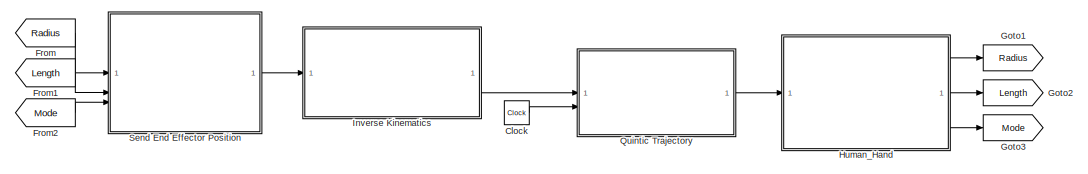
[diagram: root canvas - part 1/3, top right region]
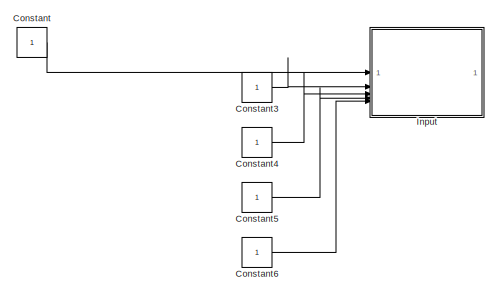
[diagram: root canvas - part 2/3, middle left region]
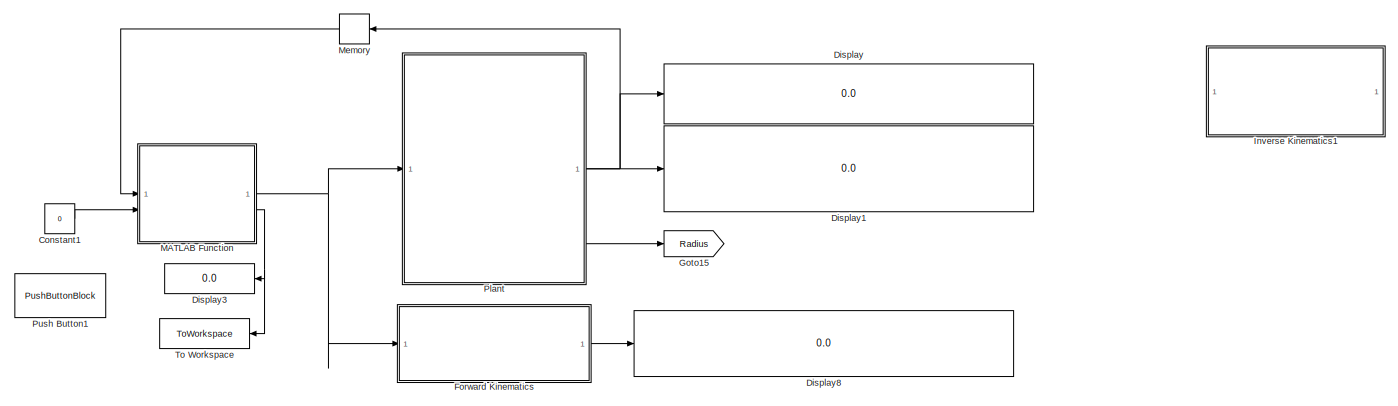
[diagram: root canvas - part 3/3, bottom center region]
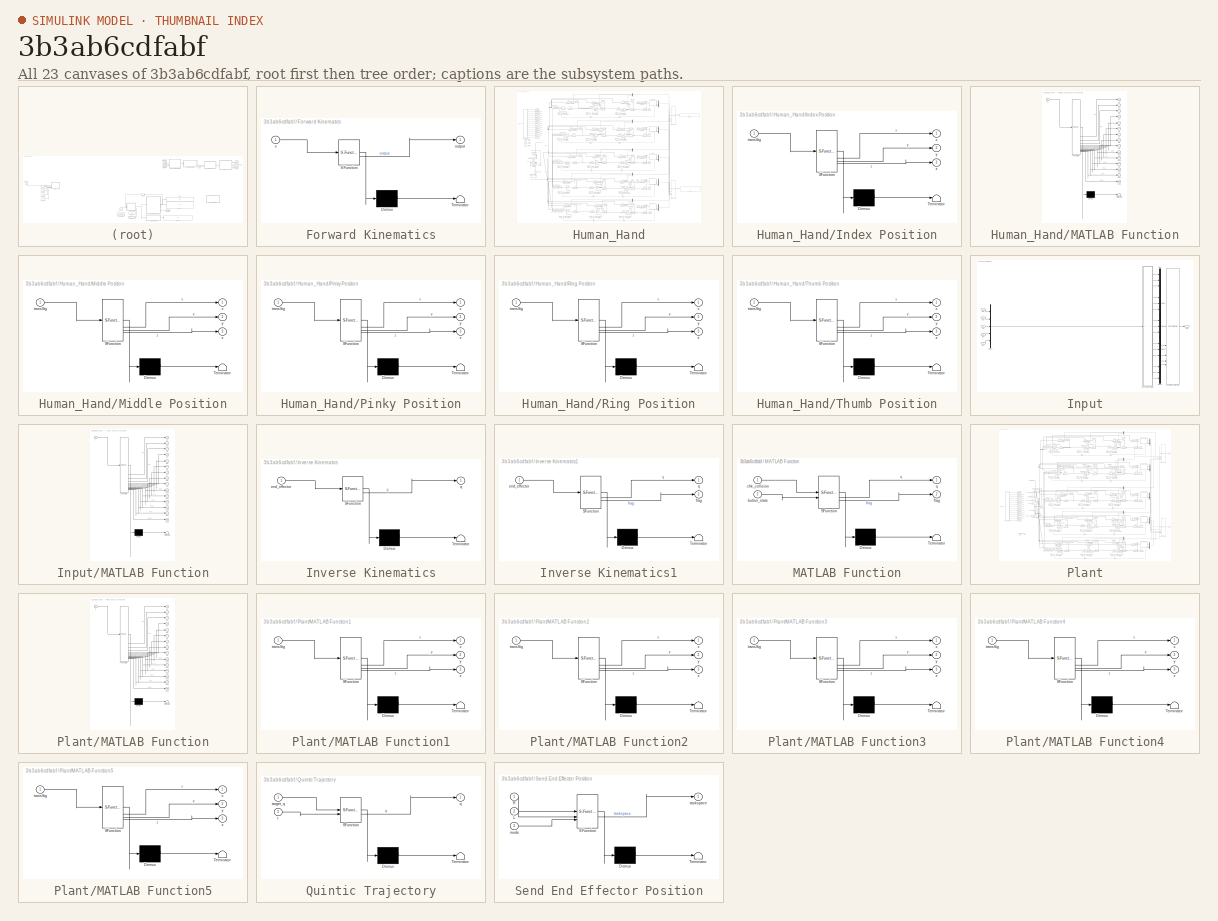
[diagram: thumbnail index - all 23 canvases of the model, root first then tree order]
MODEL slx_3b3ab6cdfabf
KIND model
CONFIG AbsTol = auto
CONFIG EnableMultiTasking = off
CONFIG FixedStep = 0.001
CONFIG MaxStep = auto
CONFIG MinStep = auto
CONFIG RelTol = 1e-3
CONFIG SampleTimeConstraint = Unconstrained
CONFIG SolverName = FixedStepAuto
CONFIG StartTime = 0.0
CONFIG StopTime = inf
BLOCK [Clock] Clock
BLOCK [Constant] Constant
  Commented = on
BLOCK [Constant] Constant1
  Commented = on
  Value = 0
BLOCK [Constant] Constant3
  Commented = on
BLOCK [Constant] Constant4
  Commented = on
BLOCK [Constant] Constant5
  Commented = on
BLOCK [Constant] Constant6
  Commented = on
BLOCK [Display] Display
  Commented = on
  Decimation = 1
BLOCK [Display] Display1
  Commented = on
  Decimation = 1
BLOCK [Display] Display3
  Commented = on
  Decimation = 1
  NameLocation = top
BLOCK [Display] Display8
  Commented = on
  Decimation = 1
BLOCK [SubSystem] Forward Kinematics
  Commented = on
  ErrorFcn = Stateflow.Translate.translate
  PermitHierarchicalResolution = ExplicitOnly
  SFBlockType = MATLAB Function
  TreatAsAtomicUnit = on
BLOCK [Demux] Forward Kinematics/ Demux 
  Outputs = 1
BLOCK [S-Function] Forward Kinematics/ SFunction 
  EnableBusSupport = on
  FunctionName = sf_sfun
  PortCounts = [1 2]
  SFcnIsStateOwnerBlock = off
  SFunctionDeploymentMode = off
  Tag = Stateflow S-Function 10
BLOCK [Terminator] Forward Kinematics/ Terminator 
BLOCK [Outport] Forward Kinematics/output
BLOCK [Inport] Forward Kinematics/x
BLOCK [From] From
  GotoTag = Radius
BLOCK [From] From1
  GotoTag = Length
BLOCK [From] From2
  GotoTag = Mode
BLOCK [Goto] Goto1
  GotoTag = Radius
BLOCK [Goto] Goto15
  Commented = on
  GotoTag = Radius
BLOCK [Goto] Goto2
  GotoTag = Length
BLOCK [Goto] Goto3
  GotoTag = Mode
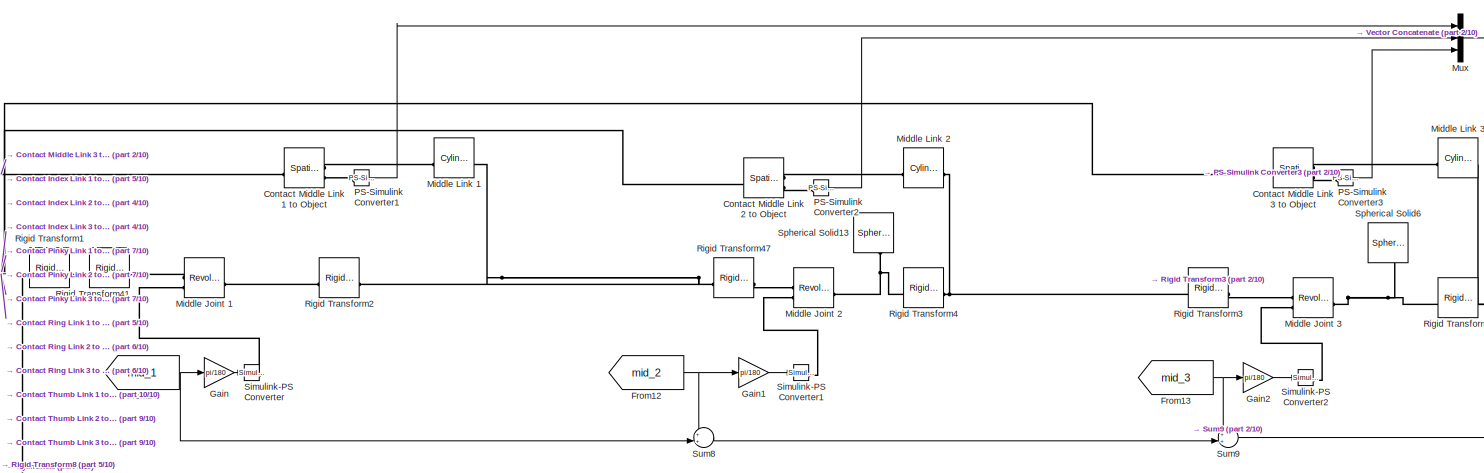
[diagram: Human_Hand - part 1/10, top center region]
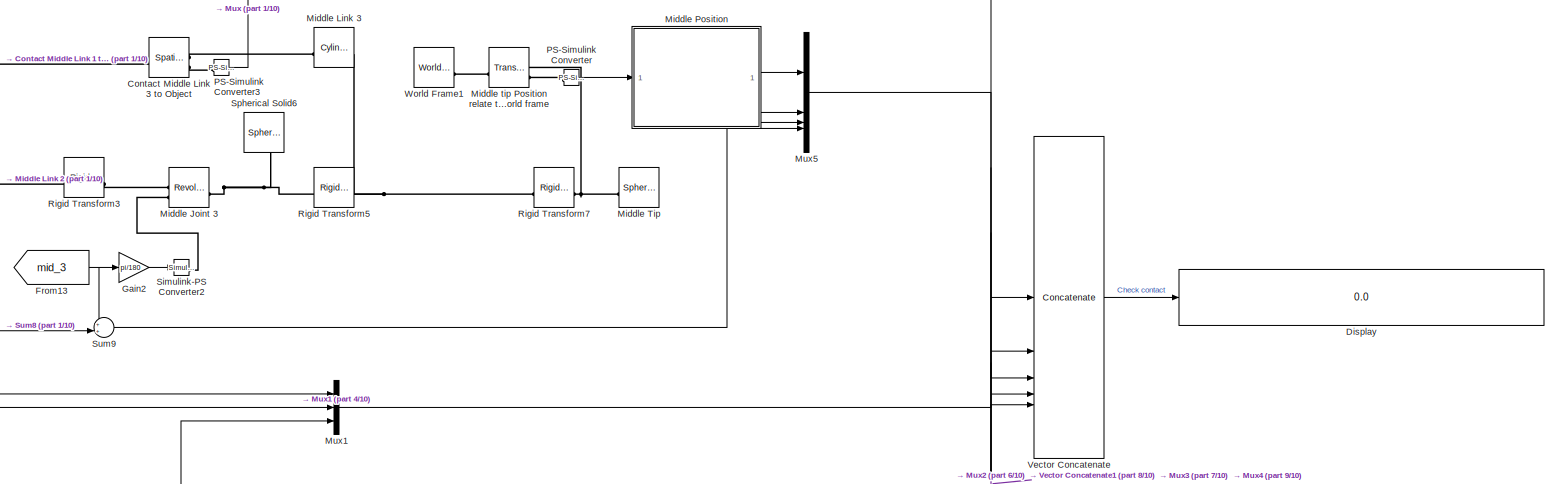
[diagram: Human_Hand - part 2/10, top right region]
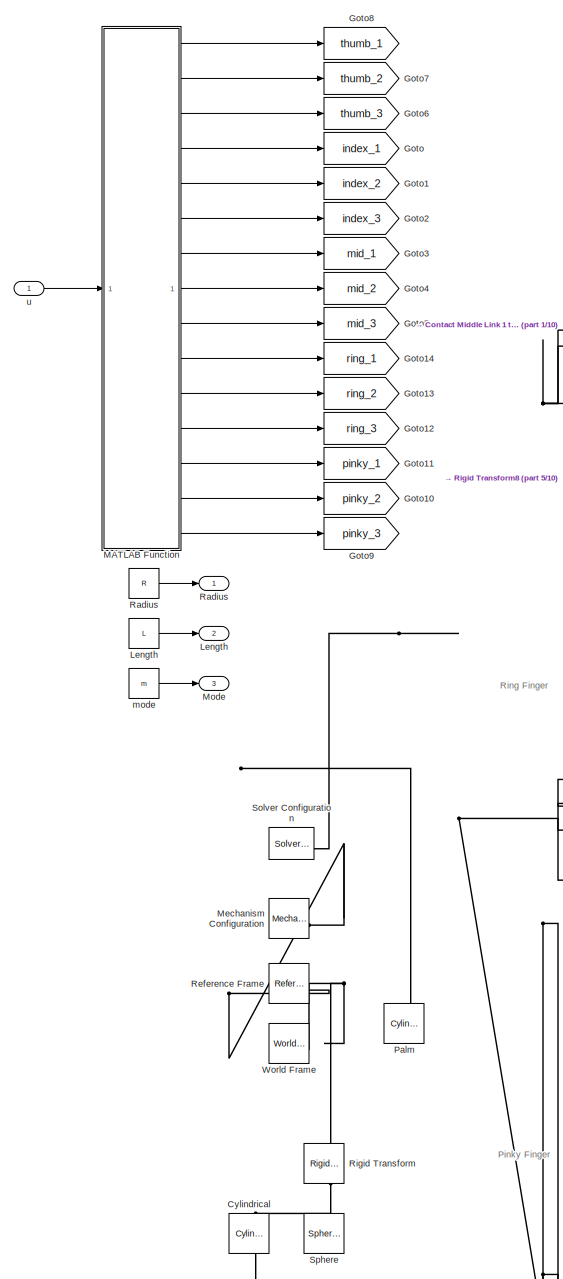
[diagram: Human_Hand - part 3/10, middle left region]
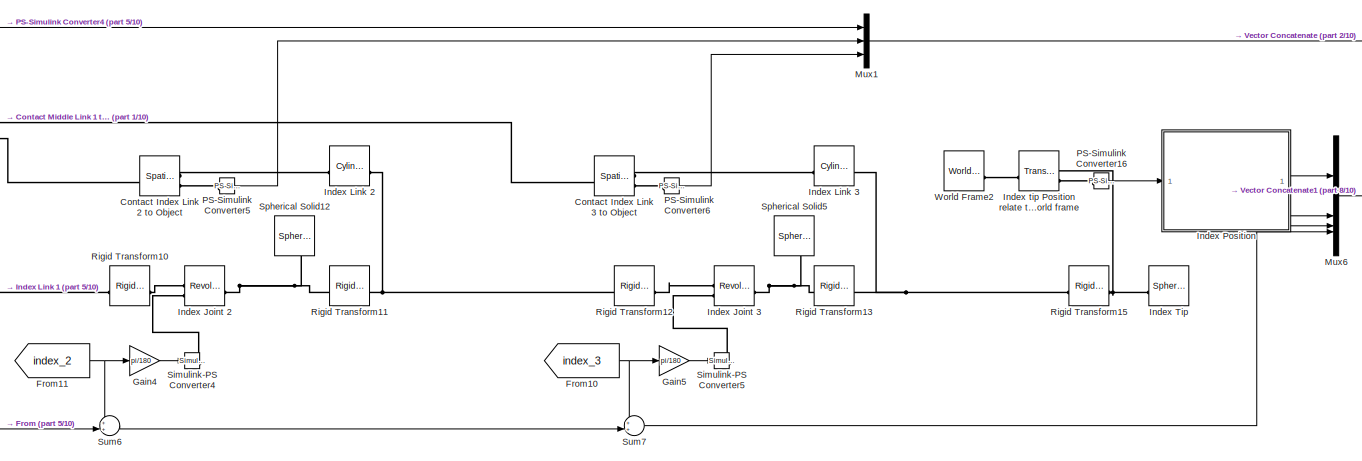
[diagram: Human_Hand - part 4/10, top center region]
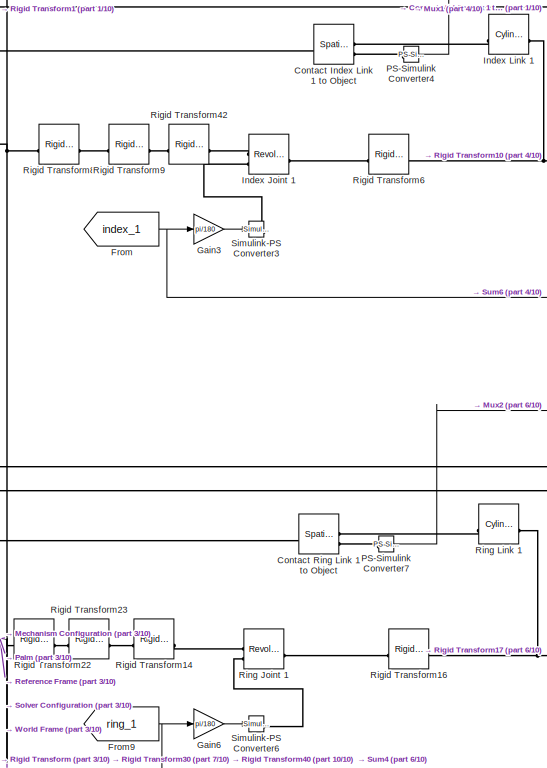
[diagram: Human_Hand - part 5/10, middle left region]
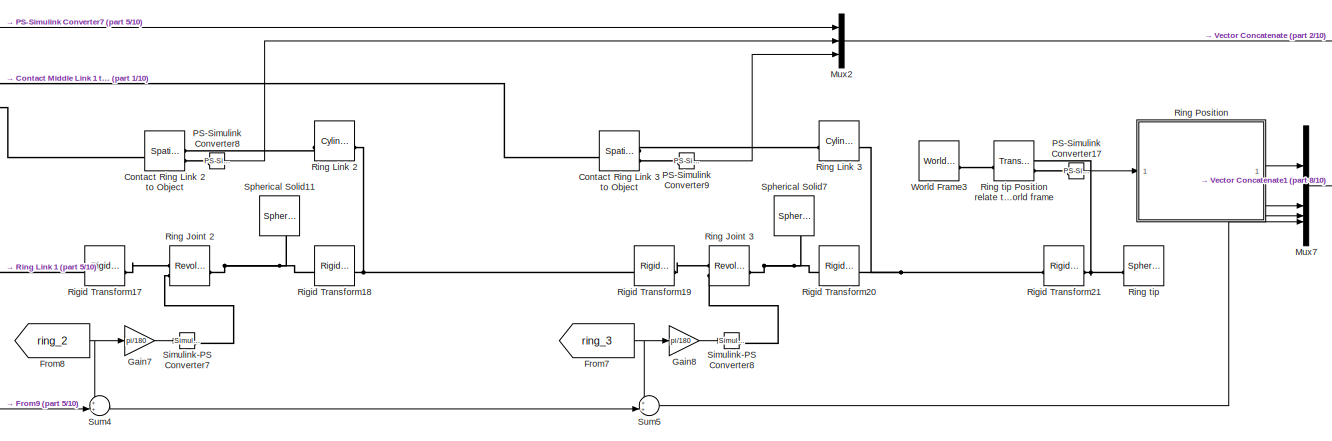
[diagram: Human_Hand - part 6/10, central region]
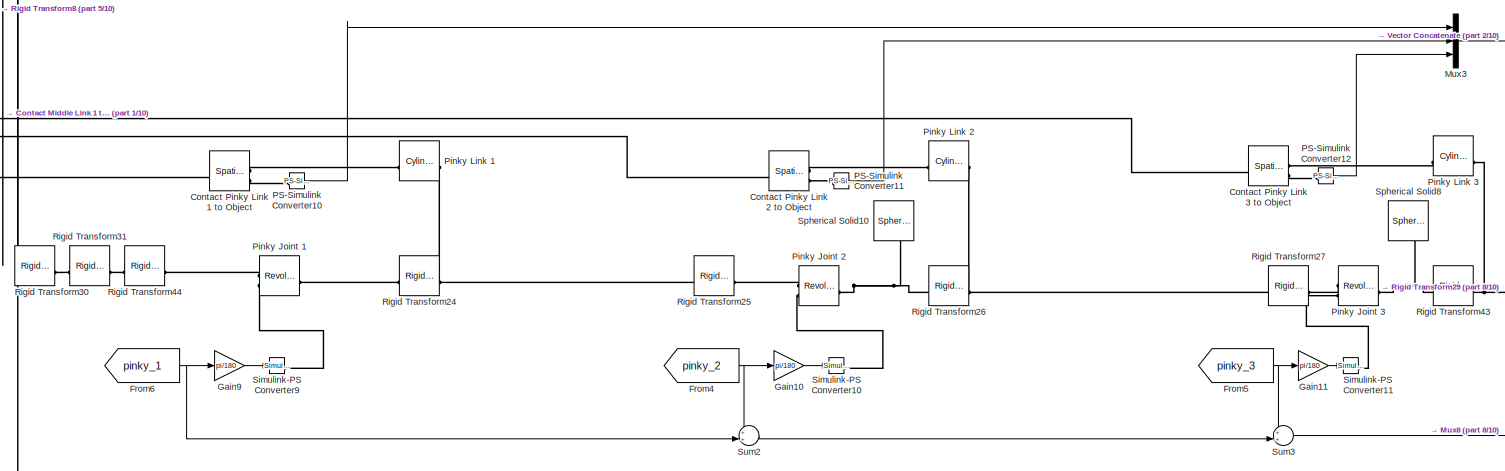
[diagram: Human_Hand - part 7/10, bottom center region]
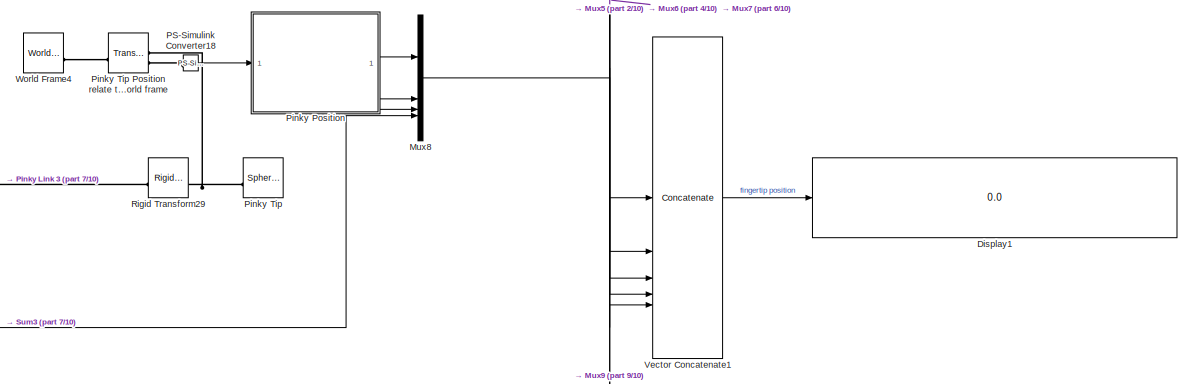
[diagram: Human_Hand - part 8/10, bottom right region]
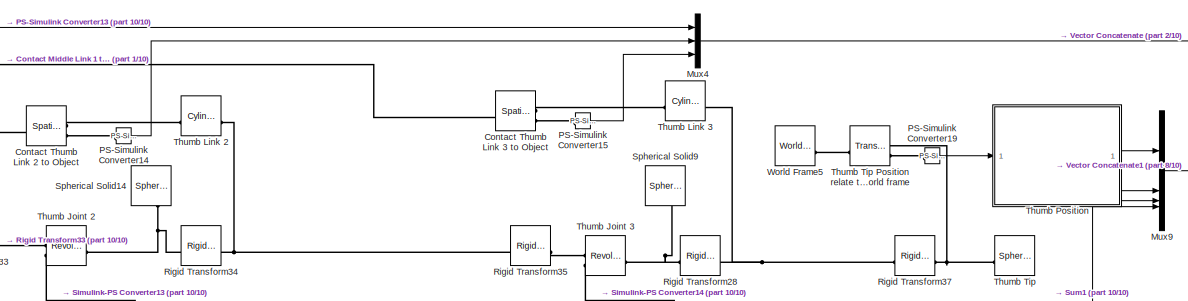
[diagram: Human_Hand - part 9/10, bottom center region]
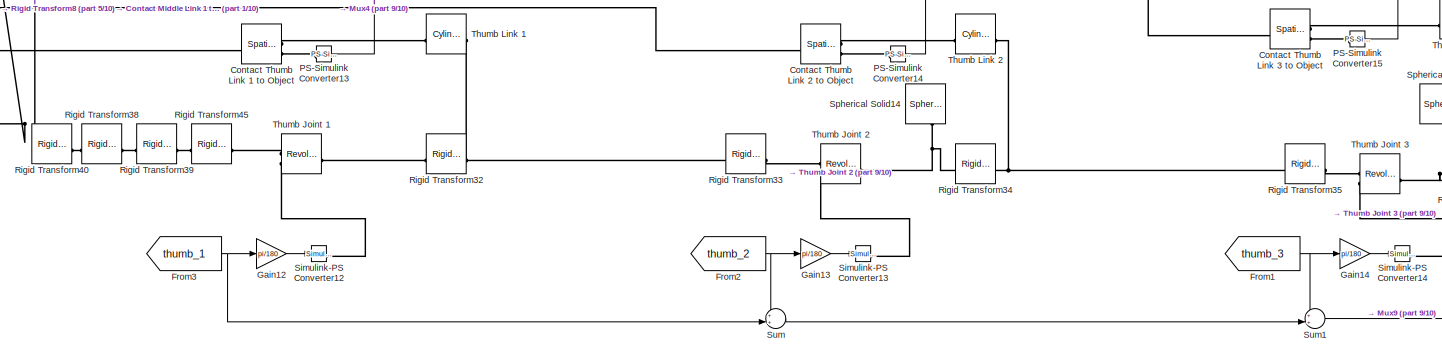
[diagram: Human_Hand - part 10/10, bottom center region]
BLOCK [SubSystem] Human_Hand
BLOCK [Outport] Human_Hand/ Length
  Port = 2
BLOCK [Outport] Human_Hand/ Radius
BLOCK [Reference] Human_Hand/Contact Index Link 1 to Object  REF=sm_lib/Forces and
Torques/Spatial
Contact Force
  SourceBlock = sm_lib/Forces and\nTorques/Spatial\nContact Force
  SourceType = Spatial\nContact Force
BLOCK [Reference] Human_Hand/Contact Index Link 2 to Object  REF=sm_lib/Forces and
Torques/Spatial
Contact Force
  SourceBlock = sm_lib/Forces and\nTorques/Spatial\nContact Force
  SourceType = Spatial\nContact Force
BLOCK [Reference] Human_Hand/Contact Index Link 3 to Object  REF=sm_lib/Forces and
Torques/Spatial
Contact Force
  SourceBlock = sm_lib/Forces and\nTorques/Spatial\nContact Force
  SourceType = Spatial\nContact Force
BLOCK [Reference] Human_Hand/Contact Middle Link 1 to Object  REF=sm_lib/Forces and
Torques/Spatial
Contact Force
  SourceBlock = sm_lib/Forces and\nTorques/Spatial\nContact Force
  SourceType = Spatial\nContact Force
BLOCK [Reference] Human_Hand/Contact Middle Link 2 to Object  REF=sm_lib/Forces and
Torques/Spatial
Contact Force
  SourceBlock = sm_lib/Forces and\nTorques/Spatial\nContact Force
  SourceType = Spatial\nContact Force
BLOCK [Reference] Human_Hand/Contact Middle Link 3 to Object  REF=sm_lib/Forces and
Torques/Spatial
Contact Force
  SourceBlock = sm_lib/Forces and\nTorques/Spatial\nContact Force
  SourceType = Spatial\nContact Force
BLOCK [Reference] Human_Hand/Contact Pinky Link 1 to Object  REF=sm_lib/Forces and
Torques/Spatial
Contact Force
  SourceBlock = sm_lib/Forces and\nTorques/Spatial\nContact Force
  SourceType = Spatial\nContact Force
BLOCK [Reference] Human_Hand/Contact Pinky Link 2 to Object  REF=sm_lib/Forces and
Torques/Spatial
Contact Force
  SourceBlock = sm_lib/Forces and\nTorques/Spatial\nContact Force
  SourceType = Spatial\nContact Force
BLOCK [Reference] Human_Hand/Contact Pinky Link 3 to Object  REF=sm_lib/Forces and
Torques/Spatial
Contact Force
  SourceBlock = sm_lib/Forces and\nTorques/Spatial\nContact Force
  SourceType = Spatial\nContact Force
BLOCK [Reference] Human_Hand/Contact Ring Link 1 to Object  REF=sm_lib/Forces and
Torques/Spatial
Contact Force
  SourceBlock = sm_lib/Forces and\nTorques/Spatial\nContact Force
  SourceType = Spatial\nContact Force
BLOCK [Reference] Human_Hand/Contact Ring Link 2 to Object  REF=sm_lib/Forces and
Torques/Spatial
Contact Force
  SourceBlock = sm_lib/Forces and\nTorques/Spatial\nContact Force
  SourceType = Spatial\nContact Force
BLOCK [Reference] Human_Hand/Contact Ring Link 3 to Object  REF=sm_lib/Forces and
Torques/Spatial
Contact Force
  SourceBlock = sm_lib/Forces and\nTorques/Spatial\nContact Force
  SourceType = Spatial\nContact Force
BLOCK [Reference] Human_Hand/Contact Thumb Link 1 to Object  REF=sm_lib/Forces and
Torques/Spatial
Contact Force
  SourceBlock = sm_lib/Forces and\nTorques/Spatial\nContact Force
  SourceType = Spatial\nContact Force
BLOCK [Reference] Human_Hand/Contact Thumb Link 2 to Object  REF=sm_lib/Forces and
Torques/Spatial
Contact Force
  SourceBlock = sm_lib/Forces and\nTorques/Spatial\nContact Force
  SourceType = Spatial\nContact Force
BLOCK [Reference] Human_Hand/Contact Thumb Link 3 to Object  REF=sm_lib/Forces and
Torques/Spatial
Contact Force
  SourceBlock = sm_lib/Forces and\nTorques/Spatial\nContact Force
  SourceType = Spatial\nContact Force
BLOCK [Reference] Human_Hand/Cylindrical  REF=sm_lib/Body Elements/Cylindrical Solid
  NameLocation = left
  SourceBlock = sm_lib/Body Elements/Cylindrical Solid
  SourceType = Cylindrical Solid
BLOCK [Display] Human_Hand/Display
  Decimation = 1
BLOCK [Display] Human_Hand/Display1
  Decimation = 1
BLOCK [From] Human_Hand/From
  GotoTag = index_1
BLOCK [From] Human_Hand/From1
  GotoTag = thumb_3
BLOCK [From] Human_Hand/From10
  GotoTag = index_3
BLOCK [From] Human_Hand/From11
  GotoTag = index_2
BLOCK [From] Human_Hand/From12
  GotoTag = mid_2
BLOCK [From] Human_Hand/From13
  GotoTag = mid_3
BLOCK [From] Human_Hand/From14
  GotoTag = mid_1
BLOCK [From] Human_Hand/From2
  GotoTag = thumb_2
BLOCK [From] Human_Hand/From3
  GotoTag = thumb_1
BLOCK [From] Human_Hand/From4
  GotoTag = pinky_2
BLOCK [From] Human_Hand/From5
  GotoTag = pinky_3
BLOCK [From] Human_Hand/From6
  GotoTag = pinky_1
BLOCK [From] Human_Hand/From7
  GotoTag = ring_3
BLOCK [From] Human_Hand/From8
  GotoTag = ring_2
BLOCK [From] Human_Hand/From9
  GotoTag = ring_1
BLOCK [Gain] Human_Hand/Gain
  Gain = pi/180
BLOCK [Gain] Human_Hand/Gain1
  Gain = pi/180
BLOCK [Gain] Human_Hand/Gain10
  Gain = pi/180
BLOCK [Gain] Human_Hand/Gain11
  Gain = pi/180
BLOCK [Gain] Human_Hand/Gain12
  Gain = pi/180
BLOCK [Gain] Human_Hand/Gain13
  Gain = pi/180
BLOCK [Gain] Human_Hand/Gain14
  Gain = pi/180
BLOCK [Gain] Human_Hand/Gain2
  Gain = pi/180
BLOCK [Gain] Human_Hand/Gain3
  Gain = pi/180
BLOCK [Gain] Human_Hand/Gain4
  Gain = pi/180
BLOCK [Gain] Human_Hand/Gain5
  Gain = pi/180
BLOCK [Gain] Human_Hand/Gain6
  Gain = pi/180
BLOCK [Gain] Human_Hand/Gain7
  Gain = pi/180
BLOCK [Gain] Human_Hand/Gain8
  Gain = pi/180
BLOCK [Gain] Human_Hand/Gain9
  Gain = pi/180
BLOCK [Goto] Human_Hand/Goto
  GotoTag = index_1
BLOCK [Goto] Human_Hand/Goto1
  GotoTag = index_2
BLOCK [Goto] Human_Hand/Goto10
  GotoTag = pinky_2
BLOCK [Goto] Human_Hand/Goto11
  GotoTag = pinky_1
BLOCK [Goto] Human_Hand/Goto12
  GotoTag = ring_3
BLOCK [Goto] Human_Hand/Goto13
  GotoTag = ring_2
BLOCK [Goto] Human_Hand/Goto14
  GotoTag = ring_1
BLOCK [Goto] Human_Hand/Goto2
  GotoTag = index_3
BLOCK [Goto] Human_Hand/Goto3
  GotoTag = mid_1
BLOCK [Goto] Human_Hand/Goto4
  GotoTag = mid_2
BLOCK [Goto] Human_Hand/Goto5
  GotoTag = mid_3
BLOCK [Goto] Human_Hand/Goto6
  GotoTag = thumb_3
BLOCK [Goto] Human_Hand/Goto7
  GotoTag = thumb_2
BLOCK [Goto] Human_Hand/Goto8
  GotoTag = thumb_1
BLOCK [Goto] Human_Hand/Goto9
  GotoTag = pinky_3
BLOCK [Reference] Human_Hand/Index Joint 1  REF=sm_lib/Joints/Revolute Joint
  SourceBlock = sm_lib/Joints/Revolute Joint
  SourceType = Revolute Joint
BLOCK [Reference] Human_Hand/Index Joint 2  REF=sm_lib/Joints/Revolute Joint
  SourceBlock = sm_lib/Joints/Revolute Joint
  SourceType = Revolute Joint
BLOCK [Reference] Human_Hand/Index Joint 3  REF=sm_lib/Joints/Revolute Joint
  SourceBlock = sm_lib/Joints/Revolute Joint
  SourceType = Revolute Joint
BLOCK [Reference] Human_Hand/Index Link 1  REF=sm_lib/Body Elements/Cylindrical Solid
  SourceBlock = sm_lib/Body Elements/Cylindrical Solid
  SourceType = Cylindrical Solid
BLOCK [Reference] Human_Hand/Index Link 2  REF=sm_lib/Body Elements/Cylindrical Solid
  SourceBlock = sm_lib/Body Elements/Cylindrical Solid
  SourceType = Cylindrical Solid
BLOCK [Reference] Human_Hand/Index Link 3  REF=sm_lib/Body Elements/Cylindrical Solid
  SourceBlock = sm_lib/Body Elements/Cylindrical Solid
  SourceType = Cylindrical Solid
BLOCK [SubSystem] Human_Hand/Index Position
  ErrorFcn = Stateflow.Translate.translate
  PermitHierarchicalResolution = ExplicitOnly
  SFBlockType = MATLAB Function
  TreatAsAtomicUnit = on
BLOCK [Demux] Human_Hand/Index Position/ Demux 
  Outputs = 1
BLOCK [S-Function] Human_Hand/Index Position/ SFunction 
  EnableBusSupport = on
  FunctionName = sf_sfun
  PortCounts = [1 4]
  SFcnIsStateOwnerBlock = off
  SFunctionDeploymentMode = off
  Tag = Stateflow S-Function 15
BLOCK [Terminator] Human_Hand/Index Position/ Terminator 
BLOCK [Inport] Human_Hand/Index Position/transSig
BLOCK [Outport] Human_Hand/Index Position/x
BLOCK [Outport] Human_Hand/Index Position/y
  Port = 2
BLOCK [Outport] Human_Hand/Index Position/z
  Port = 3
BLOCK [Reference] Human_Hand/Index Tip  REF=sm_lib/Body Elements/Spherical Solid
  SourceBlock = sm_lib/Body Elements/Spherical Solid
  SourceType = Spherical Solid
BLOCK [Reference] Human_Hand/Index tip Position relate to world frame  REF=sm_lib/Frames and
Transforms/Transform
Sensor
  SourceBlock = sm_lib/Frames and\nTransforms/Transform\nSensor
  SourceType = Transform\nSensor
BLOCK [Constant] Human_Hand/Length
  Value = L
BLOCK [SubSystem] Human_Hand/MATLAB Function
  ErrorFcn = Stateflow.Translate.translate
  PermitHierarchicalResolution = ExplicitOnly
  SFBlockType = MATLAB Function
  TreatAsAtomicUnit = on
BLOCK [Demux] Human_Hand/MATLAB Function/ Demux 
  Outputs = 1
BLOCK [S-Function] Human_Hand/MATLAB Function/ SFunction 
  EnableBusSupport = on
  FunctionName = sf_sfun
  PortCounts = [1 16]
  SFcnIsStateOwnerBlock = off
  SFunctionDeploymentMode = off
  Tag = Stateflow S-Function 13
BLOCK [Terminator] Human_Hand/MATLAB Function/ Terminator 
BLOCK [Outport] Human_Hand/MATLAB Function/o1
BLOCK [Outport] Human_Hand/MATLAB Function/o10
  Port = 10
BLOCK [Outport] Human_Hand/MATLAB Function/o11
  Port = 11
BLOCK [Outport] Human_Hand/MATLAB Function/o12
  Port = 12
BLOCK [Outport] Human_Hand/MATLAB Function/o13
  Port = 13
BLOCK [Outport] Human_Hand/MATLAB Function/o14
  Port = 14
BLOCK [Outport] Human_Hand/MATLAB Function/o15
  Port = 15
BLOCK [Outport] Human_Hand/MATLAB Function/o2
  Port = 2
BLOCK [Outport] Human_Hand/MATLAB Function/o3
  Port = 3
BLOCK [Outport] Human_Hand/MATLAB Function/o4
  Port = 4
BLOCK [Outport] Human_Hand/MATLAB Function/o5
  Port = 5
BLOCK [Outport] Human_Hand/MATLAB Function/o6
  Port = 6
BLOCK [Outport] Human_Hand/MATLAB Function/o7
  Port = 7
BLOCK [Outport] Human_Hand/MATLAB Function/o8
  Port = 8
BLOCK [Outport] Human_Hand/MATLAB Function/o9
  Port = 9
BLOCK [Inport] Human_Hand/MATLAB Function/u
BLOCK [Reference] Human_Hand/Mechanism Configuration  REF=sm_lib/Utilities/Mechanism
Configuration
  SourceBlock = sm_lib/Utilities/Mechanism\nConfiguration
  SourceType = Mechanism\nConfiguration
BLOCK [Reference] Human_Hand/Middle Joint 1  REF=sm_lib/Joints/Revolute Joint
  SourceBlock = sm_lib/Joints/Revolute Joint
  SourceType = Revolute Joint
BLOCK [Reference] Human_Hand/Middle Joint 2  REF=sm_lib/Joints/Revolute Joint
  SourceBlock = sm_lib/Joints/Revolute Joint
  SourceType = Revolute Joint
BLOCK [Reference] Human_Hand/Middle Joint 3  REF=sm_lib/Joints/Revolute Joint
  SourceBlock = sm_lib/Joints/Revolute Joint
  SourceType = Revolute Joint
BLOCK [Reference] Human_Hand/Middle Link 1  REF=sm_lib/Body Elements/Cylindrical Solid
  SourceBlock = sm_lib/Body Elements/Cylindrical Solid
  SourceType = Cylindrical Solid
BLOCK [Reference] Human_Hand/Middle Link 2  REF=sm_lib/Body Elements/Cylindrical Solid
  SourceBlock = sm_lib/Body Elements/Cylindrical Solid
  SourceType = Cylindrical Solid
BLOCK [Reference] Human_Hand/Middle Link 3  REF=sm_lib/Body Elements/Cylindrical Solid
  SourceBlock = sm_lib/Body Elements/Cylindrical Solid
  SourceType = Cylindrical Solid
BLOCK [SubSystem] Human_Hand/Middle Position
  ErrorFcn = Stateflow.Translate.translate
  PermitHierarchicalResolution = ExplicitOnly
  SFBlockType = MATLAB Function
  TreatAsAtomicUnit = on
BLOCK [Demux] Human_Hand/Middle Position/ Demux 
  Outputs = 1
BLOCK [S-Function] Human_Hand/Middle Position/ SFunction 
  EnableBusSupport = on
  FunctionName = sf_sfun
  PortCounts = [1 4]
  SFcnIsStateOwnerBlock = off
  SFunctionDeploymentMode = off
  Tag = Stateflow S-Function 14
BLOCK [Terminator] Human_Hand/Middle Position/ Terminator 
BLOCK [Inport] Human_Hand/Middle Position/transSig
BLOCK [Outport] Human_Hand/Middle Position/x
BLOCK [Outport] Human_Hand/Middle Position/y
  Port = 2
BLOCK [Outport] Human_Hand/Middle Position/z
  Port = 3
BLOCK [Reference] Human_Hand/Middle Tip  REF=sm_lib/Body Elements/Spherical Solid
  SourceBlock = sm_lib/Body Elements/Spherical Solid
  SourceType = Spherical Solid
BLOCK [Reference] Human_Hand/Middle tip Position relate to world frame  REF=sm_lib/Frames and
Transforms/Transform
Sensor
  SourceBlock = sm_lib/Frames and\nTransforms/Transform\nSensor
  SourceType = Transform\nSensor
BLOCK [Outport] Human_Hand/Mode
  Port = 3
BLOCK [Mux] Human_Hand/Mux
  DisplayOption = bar
  Inputs = 3
BLOCK [Mux] Human_Hand/Mux1
  DisplayOption = bar
  Inputs = 3
BLOCK [Mux] Human_Hand/Mux2
  DisplayOption = bar
  Inputs = 3
BLOCK [Mux] Human_Hand/Mux3
  DisplayOption = bar
  Inputs = 3
BLOCK [Mux] Human_Hand/Mux4
  DisplayOption = bar
  Inputs = 3
BLOCK [Mux] Human_Hand/Mux5
  DisplayOption = bar
BLOCK [Mux] Human_Hand/Mux6
  DisplayOption = bar
BLOCK [Mux] Human_Hand/Mux7
  DisplayOption = bar
BLOCK [Mux] Human_Hand/Mux8
  DisplayOption = bar
BLOCK [Mux] Human_Hand/Mux9
  DisplayOption = bar
BLOCK [Reference] Human_Hand/PS-Simulink Converter  REF=nesl_utility/PS-Simulink
Converter
  SourceBlock = nesl_utility/PS-Simulink\nConverter
  SourceType = PS-Simulink\nConverter
BLOCK [Reference] Human_Hand/PS-Simulink Converter1  REF=nesl_utility/PS-Simulink
Converter
  SourceBlock = nesl_utility/PS-Simulink\nConverter
  SourceType = PS-Simulink\nConverter
BLOCK [Reference] Human_Hand/PS-Simulink Converter10  REF=nesl_utility/PS-Simulink
Converter
  SourceBlock = nesl_utility/PS-Simulink\nConverter
  SourceType = PS-Simulink\nConverter
BLOCK [Reference] Human_Hand/PS-Simulink Converter11  REF=nesl_utility/PS-Simulink
Converter
  SourceBlock = nesl_utility/PS-Simulink\nConverter
  SourceType = PS-Simulink\nConverter
BLOCK [Reference] Human_Hand/PS-Simulink Converter12  REF=nesl_utility/PS-Simulink
Converter
  SourceBlock = nesl_utility/PS-Simulink\nConverter
  SourceType = PS-Simulink\nConverter
BLOCK [Reference] Human_Hand/PS-Simulink Converter13  REF=nesl_utility/PS-Simulink
Converter
  SourceBlock = nesl_utility/PS-Simulink\nConverter
  SourceType = PS-Simulink\nConverter
BLOCK [Reference] Human_Hand/PS-Simulink Converter14  REF=nesl_utility/PS-Simulink
Converter
  SourceBlock = nesl_utility/PS-Simulink\nConverter
  SourceType = PS-Simulink\nConverter
BLOCK [Reference] Human_Hand/PS-Simulink Converter15  REF=nesl_utility/PS-Simulink
Converter
  SourceBlock = nesl_utility/PS-Simulink\nConverter
  SourceType = PS-Simulink\nConverter
BLOCK [Reference] Human_Hand/PS-Simulink Converter16  REF=nesl_utility/PS-Simulink
Converter
  SourceBlock = nesl_utility/PS-Simulink\nConverter
  SourceType = PS-Simulink\nConverter
BLOCK [Reference] Human_Hand/PS-Simulink Converter17  REF=nesl_utility/PS-Simulink
Converter
  SourceBlock = nesl_utility/PS-Simulink\nConverter
  SourceType = PS-Simulink\nConverter
BLOCK [Reference] Human_Hand/PS-Simulink Converter18  REF=nesl_utility/PS-Simulink
Converter
  SourceBlock = nesl_utility/PS-Simulink\nConverter
  SourceType = PS-Simulink\nConverter
BLOCK [Reference] Human_Hand/PS-Simulink Converter19  REF=nesl_utility/PS-Simulink
Converter
  SourceBlock = nesl_utility/PS-Simulink\nConverter
  SourceType = PS-Simulink\nConverter
BLOCK [Reference] Human_Hand/PS-Simulink Converter2  REF=nesl_utility/PS-Simulink
Converter
  SourceBlock = nesl_utility/PS-Simulink\nConverter
  SourceType = PS-Simulink\nConverter
BLOCK [Reference] Human_Hand/PS-Simulink Converter3  REF=nesl_utility/PS-Simulink
Converter
  SourceBlock = nesl_utility/PS-Simulink\nConverter
  SourceType = PS-Simulink\nConverter
BLOCK [Reference] Human_Hand/PS-Simulink Converter4  REF=nesl_utility/PS-Simulink
Converter
  SourceBlock = nesl_utility/PS-Simulink\nConverter
  SourceType = PS-Simulink\nConverter
BLOCK [Reference] Human_Hand/PS-Simulink Converter5  REF=nesl_utility/PS-Simulink
Converter
  SourceBlock = nesl_utility/PS-Simulink\nConverter
  SourceType = PS-Simulink\nConverter
BLOCK [Reference] Human_Hand/PS-Simulink Converter6  REF=nesl_utility/PS-Simulink
Converter
  SourceBlock = nesl_utility/PS-Simulink\nConverter
  SourceType = PS-Simulink\nConverter
BLOCK [Reference] Human_Hand/PS-Simulink Converter7  REF=nesl_utility/PS-Simulink
Converter
  SourceBlock = nesl_utility/PS-Simulink\nConverter
  SourceType = PS-Simulink\nConverter
BLOCK [Reference] Human_Hand/PS-Simulink Converter8  REF=nesl_utility/PS-Simulink
Converter
  SourceBlock = nesl_utility/PS-Simulink\nConverter
  SourceType = PS-Simulink\nConverter
BLOCK [Reference] Human_Hand/PS-Simulink Converter9  REF=nesl_utility/PS-Simulink
Converter
  SourceBlock = nesl_utility/PS-Simulink\nConverter
  SourceType = PS-Simulink\nConverter
BLOCK [Reference] Human_Hand/Palm  REF=sm_lib/Body Elements/Cylindrical Solid
  NameLocation = right
  SourceBlock = sm_lib/Body Elements/Cylindrical Solid
  SourceType = Cylindrical Solid
BLOCK [Reference] Human_Hand/Pinky Joint 1  REF=sm_lib/Joints/Revolute Joint
  SourceBlock = sm_lib/Joints/Revolute Joint
  SourceType = Revolute Joint
BLOCK [Reference] Human_Hand/Pinky Joint 2  REF=sm_lib/Joints/Revolute Joint
  SourceBlock = sm_lib/Joints/Revolute Joint
  SourceType = Revolute Joint
BLOCK [Reference] Human_Hand/Pinky Joint 3  REF=sm_lib/Joints/Revolute Joint
  SourceBlock = sm_lib/Joints/Revolute Joint
  SourceType = Revolute Joint
BLOCK [Reference] Human_Hand/Pinky Link 1  REF=sm_lib/Body Elements/Cylindrical Solid
  SourceBlock = sm_lib/Body Elements/Cylindrical Solid
  SourceType = Cylindrical Solid
BLOCK [Reference] Human_Hand/Pinky Link 2  REF=sm_lib/Body Elements/Cylindrical Solid
  SourceBlock = sm_lib/Body Elements/Cylindrical Solid
  SourceType = Cylindrical Solid
BLOCK [Reference] Human_Hand/Pinky Link 3  REF=sm_lib/Body Elements/Cylindrical Solid
  SourceBlock = sm_lib/Body Elements/Cylindrical Solid
  SourceType = Cylindrical Solid
BLOCK [SubSystem] Human_Hand/Pinky Position
  ErrorFcn = Stateflow.Translate.translate
  PermitHierarchicalResolution = ExplicitOnly
  SFBlockType = MATLAB Function
  TreatAsAtomicUnit = on
BLOCK [Demux] Human_Hand/Pinky Position/ Demux 
  Outputs = 1
BLOCK [S-Function] Human_Hand/Pinky Position/ SFunction 
  EnableBusSupport = on
  FunctionName = sf_sfun
  PortCounts = [1 4]
  SFcnIsStateOwnerBlock = off
  SFunctionDeploymentMode = off
  Tag = Stateflow S-Function 17
BLOCK [Terminator] Human_Hand/Pinky Position/ Terminator 
BLOCK [Inport] Human_Hand/Pinky Position/transSig
BLOCK [Outport] Human_Hand/Pinky Position/x
BLOCK [Outport] Human_Hand/Pinky Position/y
  Port = 2
BLOCK [Outport] Human_Hand/Pinky Position/z
  Port = 3
BLOCK [Reference] Human_Hand/Pinky Tip  REF=sm_lib/Body Elements/Spherical Solid
  SourceBlock = sm_lib/Body Elements/Spherical Solid
  SourceType = Spherical Solid
BLOCK [Reference] Human_Hand/Pinky Tip Position relate to world frame  REF=sm_lib/Frames and
Transforms/Transform
Sensor
  SourceBlock = sm_lib/Frames and\nTransforms/Transform\nSensor
  SourceType = Transform\nSensor
BLOCK [Constant] Human_Hand/Radius
  Value = R
BLOCK [Reference] Human_Hand/Reference Frame  REF=sm_lib/Frames and
Transforms/Reference
Frame
  SourceBlock = sm_lib/Frames and\nTransforms/Reference\nFrame
  SourceType = Reference\nFrame
BLOCK [Reference] Human_Hand/Rigid Transform  REF=sm_lib/Frames and
Transforms/Rigid
Transform
  NameLocation = left
  SourceBlock = sm_lib/Frames and\nTransforms/Rigid\nTransform
  SourceType = Rigid\nTransform
BLOCK [Reference] Human_Hand/Rigid Transform1  REF=sm_lib/Frames and
Transforms/Rigid
Transform
  SourceBlock = sm_lib/Frames and\nTransforms/Rigid\nTransform
  SourceType = Rigid\nTransform
BLOCK [Reference] Human_Hand/Rigid Transform10  REF=sm_lib/Frames and
Transforms/Rigid
Transform
  SourceBlock = sm_lib/Frames and\nTransforms/Rigid\nTransform
  SourceType = Rigid\nTransform
BLOCK [Reference] Human_Hand/Rigid Transform11  REF=sm_lib/Frames and
Transforms/Rigid
Transform
  SourceBlock = sm_lib/Frames and\nTransforms/Rigid\nTransform
  SourceType = Rigid\nTransform
BLOCK [Reference] Human_Hand/Rigid Transform12  REF=sm_lib/Frames and
Transforms/Rigid
Transform
  SourceBlock = sm_lib/Frames and\nTransforms/Rigid\nTransform
  SourceType = Rigid\nTransform
BLOCK [Reference] Human_Hand/Rigid Transform13  REF=sm_lib/Frames and
Transforms/Rigid
Transform
  SourceBlock = sm_lib/Frames and\nTransforms/Rigid\nTransform
  SourceType = Rigid\nTransform
BLOCK [Reference] Human_Hand/Rigid Transform14  REF=sm_lib/Frames and
Transforms/Rigid
Transform
  SourceBlock = sm_lib/Frames and\nTransforms/Rigid\nTransform
  SourceType = Rigid\nTransform
BLOCK [Reference] Human_Hand/Rigid Transform15  REF=sm_lib/Frames and
Transforms/Rigid
Transform
  SourceBlock = sm_lib/Frames and\nTransforms/Rigid\nTransform
  SourceType = Rigid\nTransform
BLOCK [Reference] Human_Hand/Rigid Transform16  REF=sm_lib/Frames and
Transforms/Rigid
Transform
  SourceBlock = sm_lib/Frames and\nTransforms/Rigid\nTransform
  SourceType = Rigid\nTransform
BLOCK [Reference] Human_Hand/Rigid Transform17  REF=sm_lib/Frames and
Transforms/Rigid
Transform
  SourceBlock = sm_lib/Frames and\nTransforms/Rigid\nTransform
  SourceType = Rigid\nTransform
BLOCK [Reference] Human_Hand/Rigid Transform18  REF=sm_lib/Frames and
Transforms/Rigid
Transform
  SourceBlock = sm_lib/Frames and\nTransforms/Rigid\nTransform
  SourceType = Rigid\nTransform
BLOCK [Reference] Human_Hand/Rigid Transform19  REF=sm_lib/Frames and
Transforms/Rigid
Transform
  SourceBlock = sm_lib/Frames and\nTransforms/Rigid\nTransform
  SourceType = Rigid\nTransform
BLOCK [Reference] Human_Hand/Rigid Transform2  REF=sm_lib/Frames and
Transforms/Rigid
Transform
  SourceBlock = sm_lib/Frames and\nTransforms/Rigid\nTransform
  SourceType = Rigid\nTransform
BLOCK [Reference] Human_Hand/Rigid Transform20  REF=sm_lib/Frames and
Transforms/Rigid
Transform
  SourceBlock = sm_lib/Frames and\nTransforms/Rigid\nTransform
  SourceType = Rigid\nTransform
BLOCK [Reference] Human_Hand/Rigid Transform21  REF=sm_lib/Frames and
Transforms/Rigid
Transform
  SourceBlock = sm_lib/Frames and\nTransforms/Rigid\nTransform
  SourceType = Rigid\nTransform
BLOCK [Reference] Human_Hand/Rigid Transform22  REF=sm_lib/Frames and
Transforms/Rigid
Transform
  SourceBlock = sm_lib/Frames and\nTransforms/Rigid\nTransform
  SourceType = Rigid\nTransform
BLOCK [Reference] Human_Hand/Rigid Transform23  REF=sm_lib/Frames and
Transforms/Rigid
Transform
  SourceBlock = sm_lib/Frames and\nTransforms/Rigid\nTransform
  SourceType = Rigid\nTransform
BLOCK [Reference] Human_Hand/Rigid Transform24  REF=sm_lib/Frames and
Transforms/Rigid
Transform
  SourceBlock = sm_lib/Frames and\nTransforms/Rigid\nTransform
  SourceType = Rigid\nTransform
BLOCK [Reference] Human_Hand/Rigid Transform25  REF=sm_lib/Frames and
Transforms/Rigid
Transform
  SourceBlock = sm_lib/Frames and\nTransforms/Rigid\nTransform
  SourceType = Rigid\nTransform
BLOCK [Reference] Human_Hand/Rigid Transform26  REF=sm_lib/Frames and
Transforms/Rigid
Transform
  SourceBlock = sm_lib/Frames and\nTransforms/Rigid\nTransform
  SourceType = Rigid\nTransform
BLOCK [Reference] Human_Hand/Rigid Transform27  REF=sm_lib/Frames and
Transforms/Rigid
Transform
  SourceBlock = sm_lib/Frames and\nTransforms/Rigid\nTransform
  SourceType = Rigid\nTransform
BLOCK [Reference] Human_Hand/Rigid Transform28  REF=sm_lib/Frames and
Transforms/Rigid
Transform
  SourceBlock = sm_lib/Frames and\nTransforms/Rigid\nTransform
  SourceType = Rigid\nTransform
BLOCK [Reference] Human_Hand/Rigid Transform29  REF=sm_lib/Frames and
Transforms/Rigid
Transform
  SourceBlock = sm_lib/Frames and\nTransforms/Rigid\nTransform
  SourceType = Rigid\nTransform
BLOCK [Reference] Human_Hand/Rigid Transform3  REF=sm_lib/Frames and
Transforms/Rigid
Transform
  SourceBlock = sm_lib/Frames and\nTransforms/Rigid\nTransform
  SourceType = Rigid\nTransform
BLOCK [Reference] Human_Hand/Rigid Transform30  REF=sm_lib/Frames and
Transforms/Rigid
Transform
  SourceBlock = sm_lib/Frames and\nTransforms/Rigid\nTransform
  SourceType = Rigid\nTransform
BLOCK [Reference] Human_Hand/Rigid Transform31  REF=sm_lib/Frames and
Transforms/Rigid
Transform
  SourceBlock = sm_lib/Frames and\nTransforms/Rigid\nTransform
  SourceType = Rigid\nTransform
BLOCK [Reference] Human_Hand/Rigid Transform32  REF=sm_lib/Frames and
Transforms/Rigid
Transform
  SourceBlock = sm_lib/Frames and\nTransforms/Rigid\nTransform
  SourceType = Rigid\nTransform
BLOCK [Reference] Human_Hand/Rigid Transform33  REF=sm_lib/Frames and
Transforms/Rigid
Transform
  SourceBlock = sm_lib/Frames and\nTransforms/Rigid\nTransform
  SourceType = Rigid\nTransform
BLOCK [Reference] Human_Hand/Rigid Transform34  REF=sm_lib/Frames and
Transforms/Rigid
Transform
  SourceBlock = sm_lib/Frames and\nTransforms/Rigid\nTransform
  SourceType = Rigid\nTransform
BLOCK [Reference] Human_Hand/Rigid Transform35  REF=sm_lib/Frames and
Transforms/Rigid
Transform
  SourceBlock = sm_lib/Frames and\nTransforms/Rigid\nTransform
  SourceType = Rigid\nTransform
BLOCK [Reference] Human_Hand/Rigid Transform37  REF=sm_lib/Frames and
Transforms/Rigid
Transform
  SourceBlock = sm_lib/Frames and\nTransforms/Rigid\nTransform
  SourceType = Rigid\nTransform
BLOCK [Reference] Human_Hand/Rigid Transform38  REF=sm_lib/Frames and
Transforms/Rigid
Transform
  SourceBlock = sm_lib/Frames and\nTransforms/Rigid\nTransform
  SourceType = Rigid\nTransform
BLOCK [Reference] Human_Hand/Rigid Transform39  REF=sm_lib/Frames and
Transforms/Rigid
Transform
  SourceBlock = sm_lib/Frames and\nTransforms/Rigid\nTransform
  SourceType = Rigid\nTransform
BLOCK [Reference] Human_Hand/Rigid Transform4  REF=sm_lib/Frames and
Transforms/Rigid
Transform
  SourceBlock = sm_lib/Frames and\nTransforms/Rigid\nTransform
  SourceType = Rigid\nTransform
BLOCK [Reference] Human_Hand/Rigid Transform40  REF=sm_lib/Frames and
Transforms/Rigid
Transform
  SourceBlock = sm_lib/Frames and\nTransforms/Rigid\nTransform
  SourceType = Rigid\nTransform
BLOCK [Reference] Human_Hand/Rigid Transform41  REF=sm_lib/Frames and
Transforms/Rigid
Transform
  SourceBlock = sm_lib/Frames and\nTransforms/Rigid\nTransform
  SourceType = Rigid\nTransform
BLOCK [Reference] Human_Hand/Rigid Transform42  REF=sm_lib/Frames and
Transforms/Rigid
Transform
  SourceBlock = sm_lib/Frames and\nTransforms/Rigid\nTransform
  SourceType = Rigid\nTransform
BLOCK [Reference] Human_Hand/Rigid Transform43  REF=sm_lib/Frames and
Transforms/Rigid
Transform
  SourceBlock = sm_lib/Frames and\nTransforms/Rigid\nTransform
  SourceType = Rigid\nTransform
BLOCK [Reference] Human_Hand/Rigid Transform44  REF=sm_lib/Frames and
Transforms/Rigid
Transform
  SourceBlock = sm_lib/Frames and\nTransforms/Rigid\nTransform
  SourceType = Rigid\nTransform
BLOCK [Reference] Human_Hand/Rigid Transform45  REF=sm_lib/Frames and
Transforms/Rigid
Transform
  SourceBlock = sm_lib/Frames and\nTransforms/Rigid\nTransform
  SourceType = Rigid\nTransform
BLOCK [Reference] Human_Hand/Rigid Transform47  REF=sm_lib/Frames and
Transforms/Rigid
Transform
  SourceBlock = sm_lib/Frames and\nTransforms/Rigid\nTransform
  SourceType = Rigid\nTransform
BLOCK [Reference] Human_Hand/Rigid Transform5  REF=sm_lib/Frames and
Transforms/Rigid
Transform
  SourceBlock = sm_lib/Frames and\nTransforms/Rigid\nTransform
  SourceType = Rigid\nTransform
BLOCK [Reference] Human_Hand/Rigid Transform6  REF=sm_lib/Frames and
Transforms/Rigid
Transform
  SourceBlock = sm_lib/Frames and\nTransforms/Rigid\nTransform
  SourceType = Rigid\nTransform
BLOCK [Reference] Human_Hand/Rigid Transform7  REF=sm_lib/Frames and
Transforms/Rigid
Transform
  SourceBlock = sm_lib/Frames and\nTransforms/Rigid\nTransform
  SourceType = Rigid\nTransform
BLOCK [Reference] Human_Hand/Rigid Transform8  REF=sm_lib/Frames and
Transforms/Rigid
Transform
  SourceBlock = sm_lib/Frames and\nTransforms/Rigid\nTransform
  SourceType = Rigid\nTransform
BLOCK [Reference] Human_Hand/Rigid Transform9  REF=sm_lib/Frames and
Transforms/Rigid
Transform
  SourceBlock = sm_lib/Frames and\nTransforms/Rigid\nTransform
  SourceType = Rigid\nTransform
BLOCK [Reference] Human_Hand/Ring Joint 1  REF=sm_lib/Joints/Revolute Joint
  SourceBlock = sm_lib/Joints/Revolute Joint
  SourceType = Revolute Joint
BLOCK [Reference] Human_Hand/Ring Joint 2  REF=sm_lib/Joints/Revolute Joint
  SourceBlock = sm_lib/Joints/Revolute Joint
  SourceType = Revolute Joint
BLOCK [Reference] Human_Hand/Ring Joint 3  REF=sm_lib/Joints/Revolute Joint
  SourceBlock = sm_lib/Joints/Revolute Joint
  SourceType = Revolute Joint
BLOCK [Reference] Human_Hand/Ring Link 1  REF=sm_lib/Body Elements/Cylindrical Solid
  SourceBlock = sm_lib/Body Elements/Cylindrical Solid
  SourceType = Cylindrical Solid
BLOCK [Reference] Human_Hand/Ring Link 2  REF=sm_lib/Body Elements/Cylindrical Solid
  SourceBlock = sm_lib/Body Elements/Cylindrical Solid
  SourceType = Cylindrical Solid
BLOCK [Reference] Human_Hand/Ring Link 3  REF=sm_lib/Body Elements/Cylindrical Solid
  SourceBlock = sm_lib/Body Elements/Cylindrical Solid
  SourceType = Cylindrical Solid
BLOCK [SubSystem] Human_Hand/Ring Position
  ErrorFcn = Stateflow.Translate.translate
  PermitHierarchicalResolution = ExplicitOnly
  SFBlockType = MATLAB Function
  TreatAsAtomicUnit = on
BLOCK [Demux] Human_Hand/Ring Position/ Demux 
  Outputs = 1
BLOCK [S-Function] Human_Hand/Ring Position/ SFunction 
  EnableBusSupport = on
  FunctionName = sf_sfun
  PortCounts = [1 4]
  SFcnIsStateOwnerBlock = off
  SFunctionDeploymentMode = off
  Tag = Stateflow S-Function 16
BLOCK [Terminator] Human_Hand/Ring Position/ Terminator 
BLOCK [Inport] Human_Hand/Ring Position/transSig
BLOCK [Outport] Human_Hand/Ring Position/x
BLOCK [Outport] Human_Hand/Ring Position/y
  Port = 2
BLOCK [Outport] Human_Hand/Ring Position/z
  Port = 3
BLOCK [Reference] Human_Hand/Ring tip  REF=sm_lib/Body Elements/Spherical Solid
  SourceBlock = sm_lib/Body Elements/Spherical Solid
  SourceType = Spherical Solid
BLOCK [Reference] Human_Hand/Ring tip Position relate to world frame  REF=sm_lib/Frames and
Transforms/Transform
Sensor
  SourceBlock = sm_lib/Frames and\nTransforms/Transform\nSensor
  SourceType = Transform\nSensor
BLOCK [Reference] Human_Hand/Simulink-PS Converter  REF=nesl_utility/Simulink-PS
Converter
  SourceBlock = nesl_utility/Simulink-PS\nConverter
  SourceType = Simulink-PS\nConverter
BLOCK [Reference] Human_Hand/Simulink-PS Converter1  REF=nesl_utility/Simulink-PS
Converter
  SourceBlock = nesl_utility/Simulink-PS\nConverter
  SourceType = Simulink-PS\nConverter
BLOCK [Reference] Human_Hand/Simulink-PS Converter10  REF=nesl_utility/Simulink-PS
Converter
  SourceBlock = nesl_utility/Simulink-PS\nConverter
  SourceType = Simulink-PS\nConverter
BLOCK [Reference] Human_Hand/Simulink-PS Converter11  REF=nesl_utility/Simulink-PS
Converter
  SourceBlock = nesl_utility/Simulink-PS\nConverter
  SourceType = Simulink-PS\nConverter
BLOCK [Reference] Human_Hand/Simulink-PS Converter12  REF=nesl_utility/Simulink-PS
Converter
  SourceBlock = nesl_utility/Simulink-PS\nConverter
  SourceType = Simulink-PS\nConverter
BLOCK [Reference] Human_Hand/Simulink-PS Converter13  REF=nesl_utility/Simulink-PS
Converter
  SourceBlock = nesl_utility/Simulink-PS\nConverter
  SourceType = Simulink-PS\nConverter
BLOCK [Reference] Human_Hand/Simulink-PS Converter14  REF=nesl_utility/Simulink-PS
Converter
  SourceBlock = nesl_utility/Simulink-PS\nConverter
  SourceType = Simulink-PS\nConverter
BLOCK [Reference] Human_Hand/Simulink-PS Converter2  REF=nesl_utility/Simulink-PS
Converter
  SourceBlock = nesl_utility/Simulink-PS\nConverter
  SourceType = Simulink-PS\nConverter
BLOCK [Reference] Human_Hand/Simulink-PS Converter3  REF=nesl_utility/Simulink-PS
Converter
  SourceBlock = nesl_utility/Simulink-PS\nConverter
  SourceType = Simulink-PS\nConverter
BLOCK [Reference] Human_Hand/Simulink-PS Converter4  REF=nesl_utility/Simulink-PS
Converter
  SourceBlock = nesl_utility/Simulink-PS\nConverter
  SourceType = Simulink-PS\nConverter
BLOCK [Reference] Human_Hand/Simulink-PS Converter5  REF=nesl_utility/Simulink-PS
Converter
  SourceBlock = nesl_utility/Simulink-PS\nConverter
  SourceType = Simulink-PS\nConverter
BLOCK [Reference] Human_Hand/Simulink-PS Converter6  REF=nesl_utility/Simulink-PS
Converter
  SourceBlock = nesl_utility/Simulink-PS\nConverter
  SourceType = Simulink-PS\nConverter
BLOCK [Reference] Human_Hand/Simulink-PS Converter7  REF=nesl_utility/Simulink-PS
Converter
  SourceBlock = nesl_utility/Simulink-PS\nConverter
  SourceType = Simulink-PS\nConverter
BLOCK [Reference] Human_Hand/Simulink-PS Converter8  REF=nesl_utility/Simulink-PS
Converter
  SourceBlock = nesl_utility/Simulink-PS\nConverter
  SourceType = Simulink-PS\nConverter
BLOCK [Reference] Human_Hand/Simulink-PS Converter9  REF=nesl_utility/Simulink-PS
Converter
  SourceBlock = nesl_utility/Simulink-PS\nConverter
  SourceType = Simulink-PS\nConverter
BLOCK [Reference] Human_Hand/Solver Configuration  REF=nesl_utility/Solver
Configuration
  SourceBlock = nesl_utility/Solver\nConfiguration
  SourceType = Solver\nConfiguration
BLOCK [Reference] Human_Hand/Sphere  REF=sm_lib/Body Elements/Spherical Solid
  Commented = on
  NameLocation = right
  SourceBlock = sm_lib/Body Elements/Spherical Solid
  SourceType = Spherical Solid
BLOCK [Reference] Human_Hand/Spherical Solid10  REF=sm_lib/Body Elements/Spherical Solid
  NameLocation = left
  SourceBlock = sm_lib/Body Elements/Spherical Solid
  SourceType = Spherical Solid
BLOCK [Reference] Human_Hand/Spherical Solid11  REF=sm_lib/Body Elements/Spherical Solid
  NameLocation = left
  SourceBlock = sm_lib/Body Elements/Spherical Solid
  SourceType = Spherical Solid
BLOCK [Reference] Human_Hand/Spherical Solid12  REF=sm_lib/Body Elements/Spherical Solid
  NameLocation = left
  SourceBlock = sm_lib/Body Elements/Spherical Solid
  SourceType = Spherical Solid
BLOCK [Reference] Human_Hand/Spherical Solid13  REF=sm_lib/Body Elements/Spherical Solid
  NameLocation = left
  SourceBlock = sm_lib/Body Elements/Spherical Solid
  SourceType = Spherical Solid
BLOCK [Reference] Human_Hand/Spherical Solid14  REF=sm_lib/Body Elements/Spherical Solid
  NameLocation = left
  SourceBlock = sm_lib/Body Elements/Spherical Solid
  SourceType = Spherical Solid
BLOCK [Reference] Human_Hand/Spherical Solid5  REF=sm_lib/Body Elements/Spherical Solid
  NameLocation = left
  SourceBlock = sm_lib/Body Elements/Spherical Solid
  SourceType = Spherical Solid
BLOCK [Reference] Human_Hand/Spherical Solid6  REF=sm_lib/Body Elements/Spherical Solid
  NameLocation = left
  SourceBlock = sm_lib/Body Elements/Spherical Solid
  SourceType = Spherical Solid
BLOCK [Reference] Human_Hand/Spherical Solid7  REF=sm_lib/Body Elements/Spherical Solid
  NameLocation = left
  SourceBlock = sm_lib/Body Elements/Spherical Solid
  SourceType = Spherical Solid
BLOCK [Reference] Human_Hand/Spherical Solid8  REF=sm_lib/Body Elements/Spherical Solid
  NameLocation = left
  SourceBlock = sm_lib/Body Elements/Spherical Solid
  SourceType = Spherical Solid
BLOCK [Reference] Human_Hand/Spherical Solid9  REF=sm_lib/Body Elements/Spherical Solid
  NameLocation = left
  SourceBlock = sm_lib/Body Elements/Spherical Solid
  SourceType = Spherical Solid
BLOCK [Sum] Human_Hand/Sum
  Inputs = ++|
BLOCK [Sum] Human_Hand/Sum1
  Inputs = ++|
BLOCK [Sum] Human_Hand/Sum2
  Inputs = ++|
BLOCK [Sum] Human_Hand/Sum3
  Inputs = ++|
BLOCK [Sum] Human_Hand/Sum4
  Inputs = ++|
BLOCK [Sum] Human_Hand/Sum5
  Inputs = ++|
BLOCK [Sum] Human_Hand/Sum6
  Inputs = ++|
BLOCK [Sum] Human_Hand/Sum7
  Inputs = ++|
BLOCK [Sum] Human_Hand/Sum8
  Inputs = ++|
BLOCK [Sum] Human_Hand/Sum9
  Inputs = ++|
BLOCK [Reference] Human_Hand/Thumb Joint 1  REF=sm_lib/Joints/Revolute Joint
  SourceBlock = sm_lib/Joints/Revolute Joint
  SourceType = Revolute Joint
BLOCK [Reference] Human_Hand/Thumb Joint 2  REF=sm_lib/Joints/Revolute Joint
  SourceBlock = sm_lib/Joints/Revolute Joint
  SourceType = Revolute Joint
BLOCK [Reference] Human_Hand/Thumb Joint 3  REF=sm_lib/Joints/Revolute Joint
  SourceBlock = sm_lib/Joints/Revolute Joint
  SourceType = Revolute Joint
BLOCK [Reference] Human_Hand/Thumb Link 1  REF=sm_lib/Body Elements/Cylindrical Solid
  SourceBlock = sm_lib/Body Elements/Cylindrical Solid
  SourceType = Cylindrical Solid
BLOCK [Reference] Human_Hand/Thumb Link 2  REF=sm_lib/Body Elements/Cylindrical Solid
  SourceBlock = sm_lib/Body Elements/Cylindrical Solid
  SourceType = Cylindrical Solid
BLOCK [Reference] Human_Hand/Thumb Link 3  REF=sm_lib/Body Elements/Cylindrical Solid
  SourceBlock = sm_lib/Body Elements/Cylindrical Solid
  SourceType = Cylindrical Solid
BLOCK [SubSystem] Human_Hand/Thumb Position
  ErrorFcn = Stateflow.Translate.translate
  PermitHierarchicalResolution = ExplicitOnly
  SFBlockType = MATLAB Function
  TreatAsAtomicUnit = on
BLOCK [Demux] Human_Hand/Thumb Position/ Demux 
  Outputs = 1
BLOCK [S-Function] Human_Hand/Thumb Position/ SFunction 
  EnableBusSupport = on
  FunctionName = sf_sfun
  PortCounts = [1 4]
  SFcnIsStateOwnerBlock = off
  SFunctionDeploymentMode = off
  Tag = Stateflow S-Function 18
BLOCK [Terminator] Human_Hand/Thumb Position/ Terminator 
BLOCK [Inport] Human_Hand/Thumb Position/transSig
BLOCK [Outport] Human_Hand/Thumb Position/x
BLOCK [Outport] Human_Hand/Thumb Position/y
  Port = 2
BLOCK [Outport] Human_Hand/Thumb Position/z
  Port = 3
BLOCK [Reference] Human_Hand/Thumb Tip  REF=sm_lib/Body Elements/Spherical Solid
  SourceBlock = sm_lib/Body Elements/Spherical Solid
  SourceType = Spherical Solid
BLOCK [Reference] Human_Hand/Thumb Tip Position relate to world frame  REF=sm_lib/Frames and
Transforms/Transform
Sensor
  SourceBlock = sm_lib/Frames and\nTransforms/Transform\nSensor
  SourceType = Transform\nSensor
BLOCK [Concatenate] Human_Hand/Vector Concatenate
  ConcatenateDimension = 2
  Mode = Multidimensional array
  NumInputs = 5
BLOCK [Concatenate] Human_Hand/Vector Concatenate1
  ConcatenateDimension = 2
  Mode = Multidimensional array
  NumInputs = 5
BLOCK [Reference] Human_Hand/World Frame  REF=sm_lib/Frames and
Transforms/World Frame
  SourceBlock = sm_lib/Frames and\nTransforms/World Frame
  SourceType = World Frame
BLOCK [Reference] Human_Hand/World Frame1  REF=sm_lib/Frames and
Transforms/World Frame
  SourceBlock = sm_lib/Frames and\nTransforms/World Frame
  SourceType = World Frame
BLOCK [Reference] Human_Hand/World Frame2  REF=sm_lib/Frames and
Transforms/World Frame
  SourceBlock = sm_lib/Frames and\nTransforms/World Frame
  SourceType = World Frame
BLOCK [Reference] Human_Hand/World Frame3  REF=sm_lib/Frames and
Transforms/World Frame
  SourceBlock = sm_lib/Frames and\nTransforms/World Frame
  SourceType = World Frame
BLOCK [Reference] Human_Hand/World Frame4  REF=sm_lib/Frames and
Transforms/World Frame
  SourceBlock = sm_lib/Frames and\nTransforms/World Frame
  SourceType = World Frame
BLOCK [Reference] Human_Hand/World Frame5  REF=sm_lib/Frames and
Transforms/World Frame
  SourceBlock = sm_lib/Frames and\nTransforms/World Frame
  SourceType = World Frame
BLOCK [Constant] Human_Hand/mode
  Value = m
BLOCK [Inport] Human_Hand/u
BLOCK [SubSystem] Input
  Commented = on
BLOCK [Inport] Input/In1
BLOCK [Inport] Input/In2
  Port = 2
BLOCK [Inport] Input/In3
  Port = 3
BLOCK [Inport] Input/In4
  Port = 4
BLOCK [Inport] Input/In5
  Port = 5
BLOCK [SubSystem] Input/MATLAB Function
  ErrorFcn = Stateflow.Translate.translate
  PermitHierarchicalResolution = ExplicitOnly
  SFBlockType = MATLAB Function
  TreatAsAtomicUnit = on
BLOCK [Demux] Input/MATLAB Function/ Demux 
  Outputs = 1
BLOCK [S-Function] Input/MATLAB Function/ SFunction 
  EnableBusSupport = on
  FunctionName = sf_sfun
  PortCounts = [1 16]
  SFcnIsStateOwnerBlock = off
  SFunctionDeploymentMode = off
  Tag = Stateflow S-Function 3
BLOCK [Terminator] Input/MATLAB Function/ Terminator 
BLOCK [Inport] Input/MATLAB Function/i
BLOCK [Outport] Input/MATLAB Function/o1
BLOCK [Outport] Input/MATLAB Function/o10
  Port = 10
BLOCK [Outport] Input/MATLAB Function/o11
  Port = 11
BLOCK [Outport] Input/MATLAB Function/o12
  Port = 12
BLOCK [Outport] Input/MATLAB Function/o13
  Port = 13
BLOCK [Outport] Input/MATLAB Function/o14
  Port = 14
BLOCK [Outport] Input/MATLAB Function/o15
  Port = 15
BLOCK [Outport] Input/MATLAB Function/o2
  Port = 2
BLOCK [Outport] Input/MATLAB Function/o3
  Port = 3
BLOCK [Outport] Input/MATLAB Function/o4
  Port = 4
BLOCK [Outport] Input/MATLAB Function/o5
  Port = 5
BLOCK [Outport] Input/MATLAB Function/o6
  Port = 6
BLOCK [Outport] Input/MATLAB Function/o7
  Port = 7
BLOCK [Outport] Input/MATLAB Function/o8
  Port = 8
BLOCK [Outport] Input/MATLAB Function/o9
  Port = 9
BLOCK [Mux] Input/Mux
  DisplayOption = bar
  Inputs = 3
BLOCK [Mux] Input/Mux1
  DisplayOption = bar
  Inputs = 3
BLOCK [Mux] Input/Mux2
  DisplayOption = bar
  Inputs = 3
BLOCK [Mux] Input/Mux3
  DisplayOption = bar
  Inputs = 3
BLOCK [Mux] Input/Mux4
  DisplayOption = bar
  Inputs = 3
BLOCK [Mux] Input/Mux5
  DisplayOption = bar
  Inputs = 5
BLOCK [Outport] Input/Out1
BLOCK [Concatenate] Input/Vector Concatenate
  ConcatenateDimension = 2
  Mode = Multidimensional array
  NumInputs = 5
BLOCK [SubSystem] Inverse Kinematics
  ErrorFcn = Stateflow.Translate.translate
  PermitHierarchicalResolution = ExplicitOnly
  SFBlockType = MATLAB Function
  TreatAsAtomicUnit = on
BLOCK [Demux] Inverse Kinematics/ Demux 
  Outputs = 1
BLOCK [S-Function] Inverse Kinematics/ SFunction 
  EnableBusSupport = on
  FunctionName = sf_sfun
  PortCounts = [1 2]
  SFcnIsStateOwnerBlock = off
  SFunctionDeploymentMode = off
  Tag = Stateflow S-Function 11
BLOCK [Terminator] Inverse Kinematics/ Terminator 
BLOCK [Inport] Inverse Kinematics/end_effector
BLOCK [Outport] Inverse Kinematics/q
BLOCK [SubSystem] Inverse Kinematics1
  Commented = on
  ErrorFcn = Stateflow.Translate.translate
  PermitHierarchicalResolution = ExplicitOnly
  SFBlockType = MATLAB Function
  TreatAsAtomicUnit = on
BLOCK [Demux] Inverse Kinematics1/ Demux 
  Outputs = 1
BLOCK [S-Function] Inverse Kinematics1/ SFunction 
  EnableBusSupport = on
  FunctionName = sf_sfun
  PortCounts = [1 3]
  SFcnIsStateOwnerBlock = off
  SFunctionDeploymentMode = off
  Tag = Stateflow S-Function 19
BLOCK [Terminator] Inverse Kinematics1/ Terminator 
BLOCK [Inport] Inverse Kinematics1/end_effector
BLOCK [Outport] Inverse Kinematics1/flag
  Port = 2
BLOCK [Outport] Inverse Kinematics1/q
BLOCK [SubSystem] MATLAB Function
  Commented = on
  ErrorFcn = Stateflow.Translate.translate
  PermitHierarchicalResolution = ExplicitOnly
  SFBlockType = MATLAB Function
  TreatAsAtomicUnit = on
BLOCK [Demux] MATLAB Function/ Demux 
  Outputs = 1
BLOCK [S-Function] MATLAB Function/ SFunction 
  EnableBusSupport = on
  FunctionName = sf_sfun
  PortCounts = [2 3]
  SFcnIsStateOwnerBlock = off
  SFunctionDeploymentMode = off
  Tag = Stateflow S-Function 5
BLOCK [Terminator] MATLAB Function/ Terminator 
BLOCK [Inport] MATLAB Function/button_state
  Port = 2
BLOCK [Inport] MATLAB Function/chk_collision
BLOCK [Outport] MATLAB Function/flag
  Port = 2
BLOCK [Outport] MATLAB Function/q
BLOCK [Memory] Memory
  Commented = on
  NameLocation = top
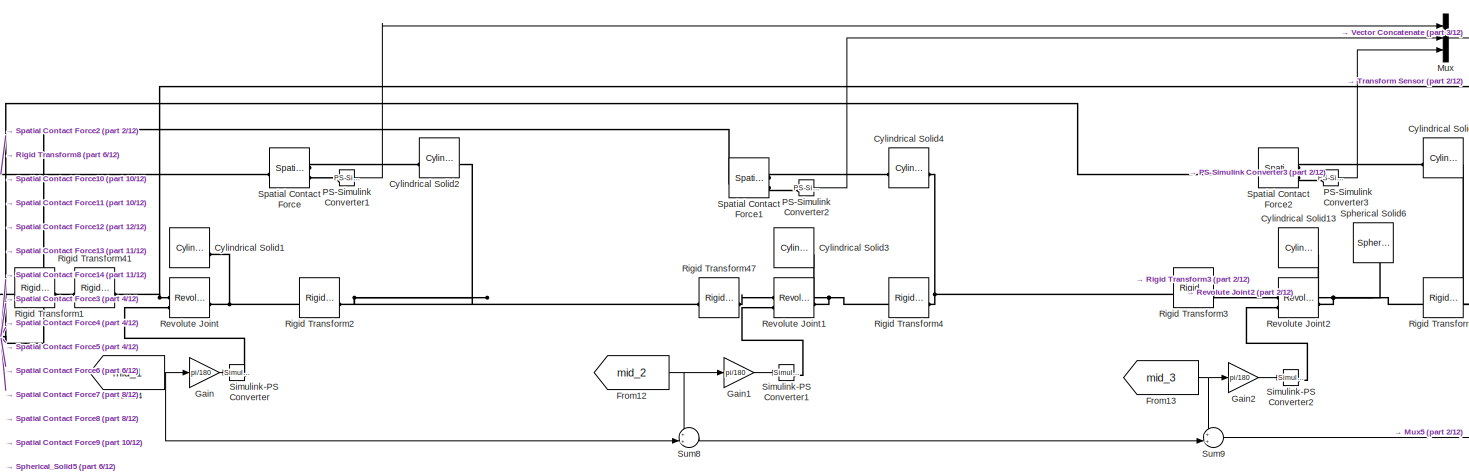
[diagram: Plant - part 1/12, top center region]
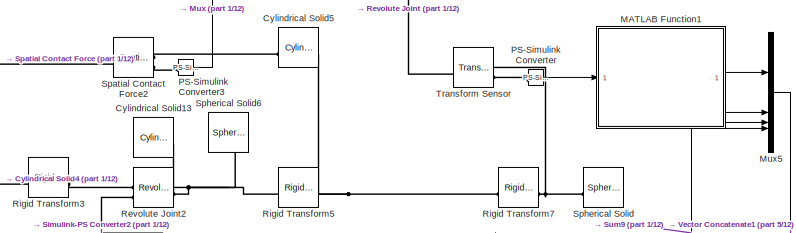
[diagram: Plant - part 2/12, top right region]
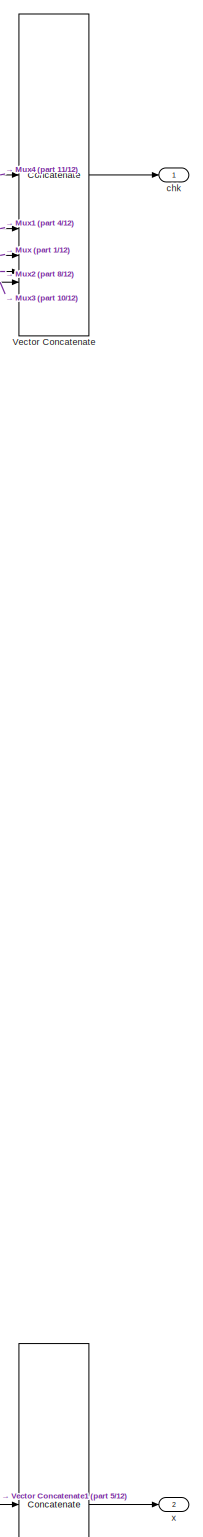
[diagram: Plant - part 3/12, middle right region]
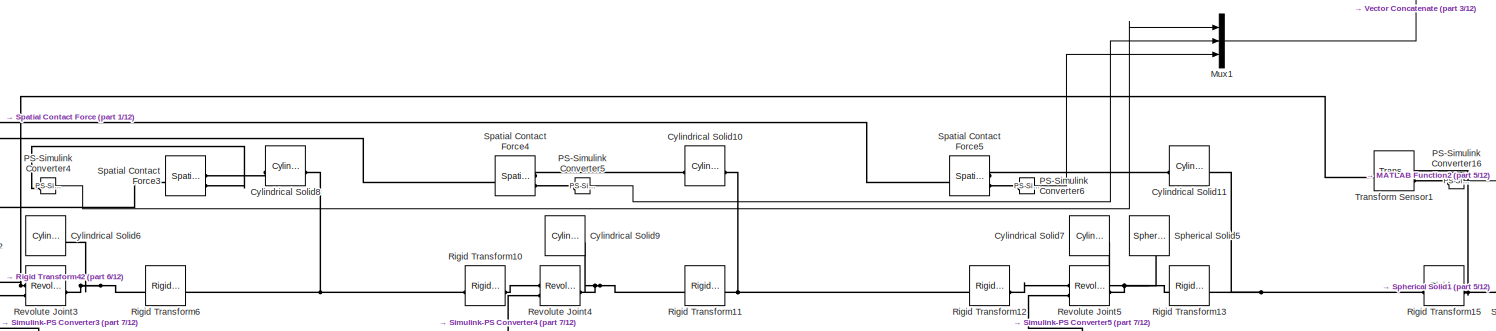
[diagram: Plant - part 4/12, top center region]
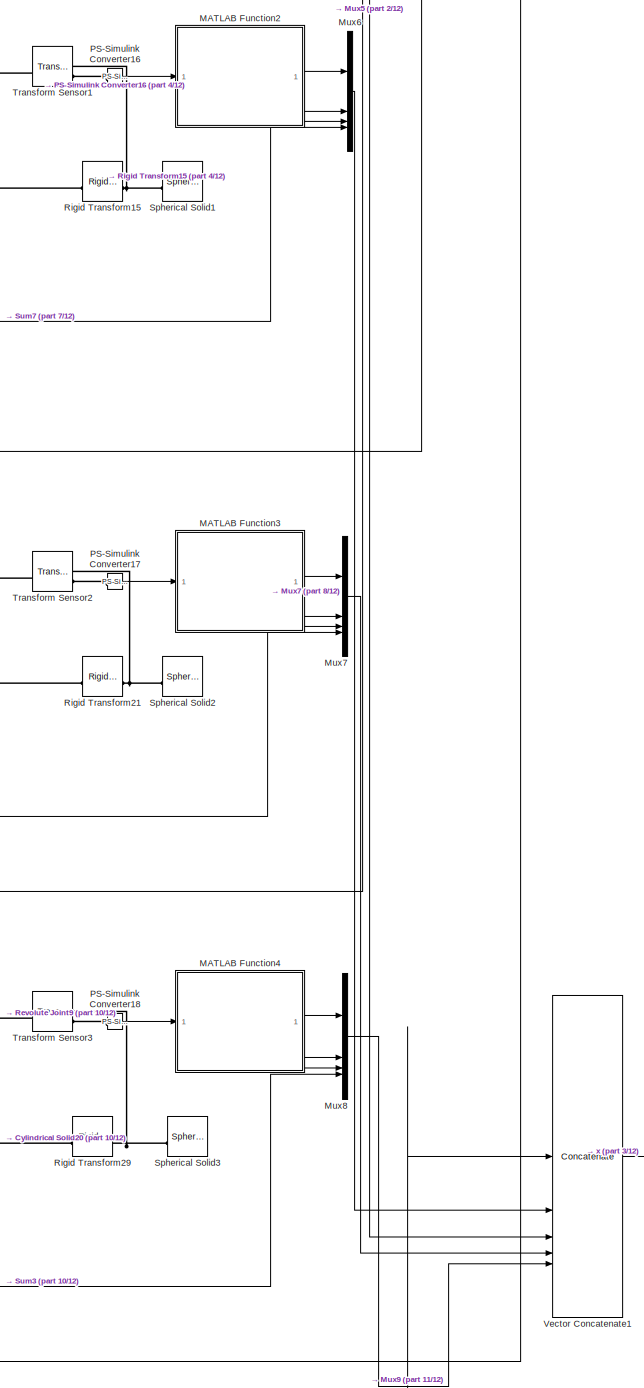
[diagram: Plant - part 5/12, middle right region]
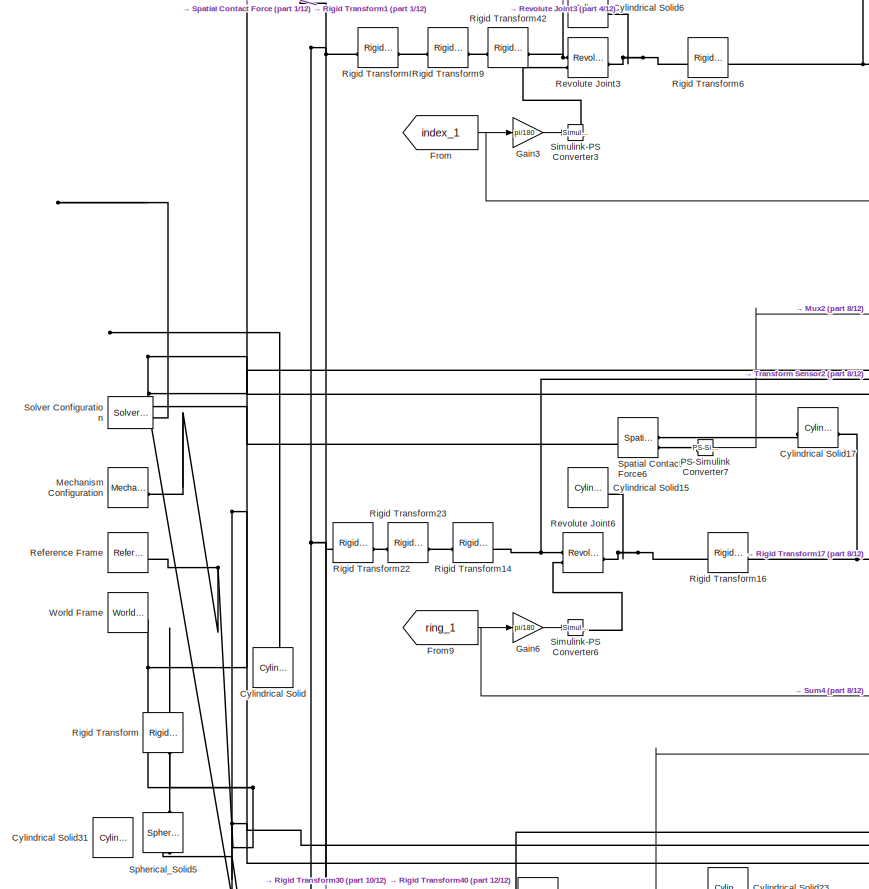
[diagram: Plant - part 6/12, middle left region]
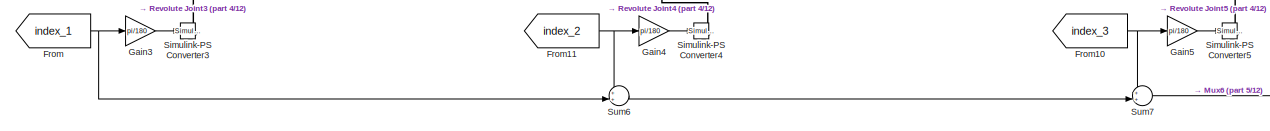
[diagram: Plant - part 7/12, central region]
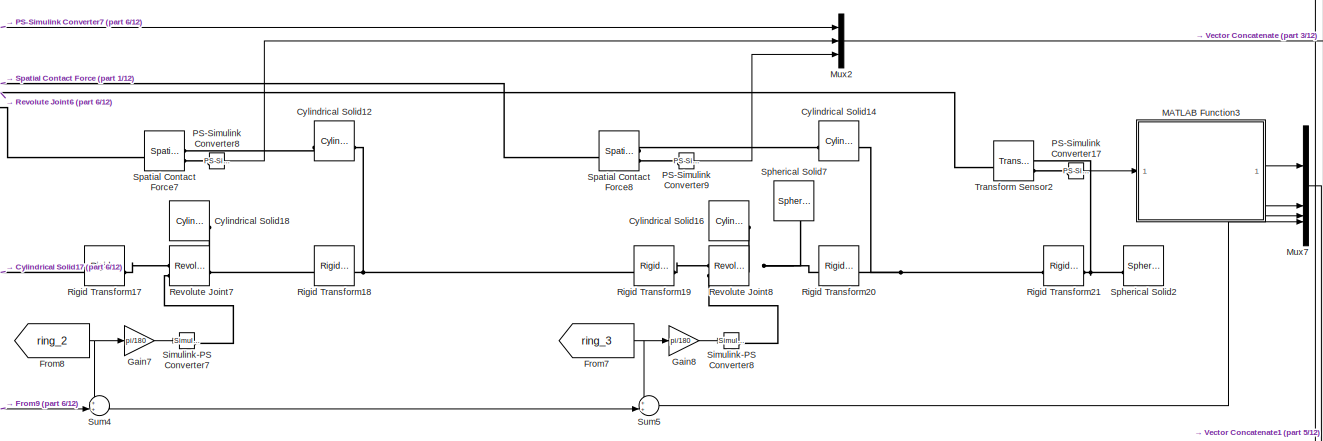
[diagram: Plant - part 8/12, central region]
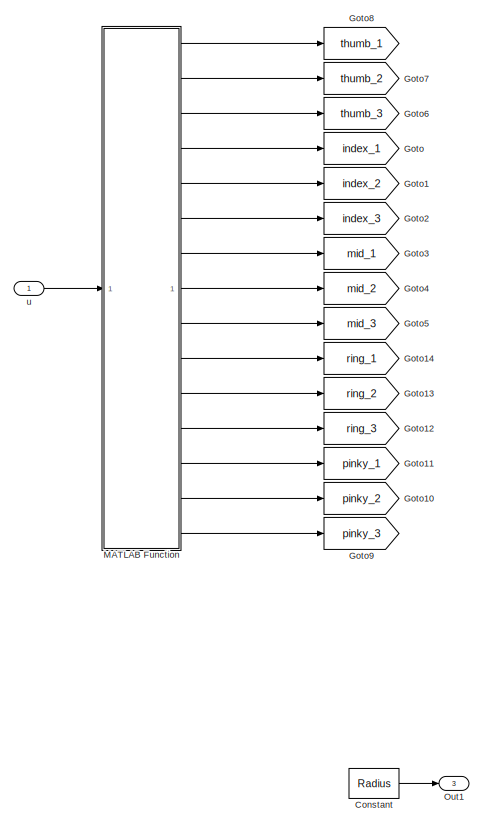
[diagram: Plant - part 9/12, middle left region]
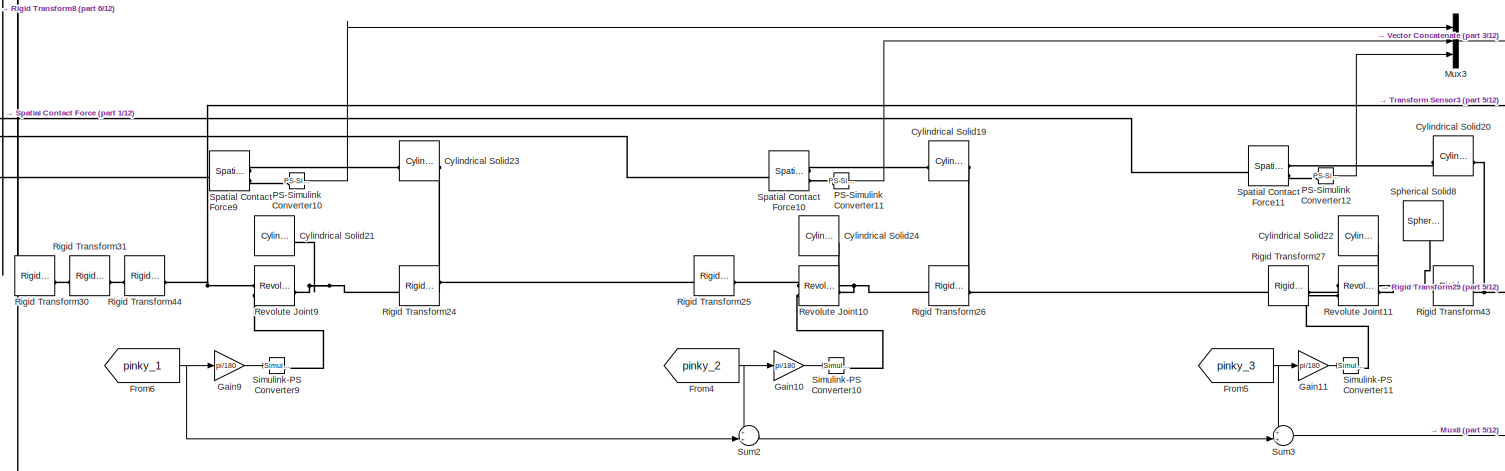
[diagram: Plant - part 10/12, bottom center region]
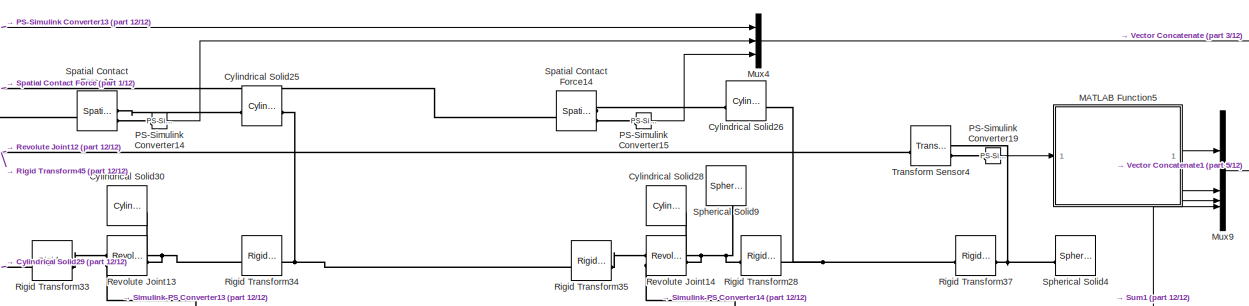
[diagram: Plant - part 11/12, bottom right region]
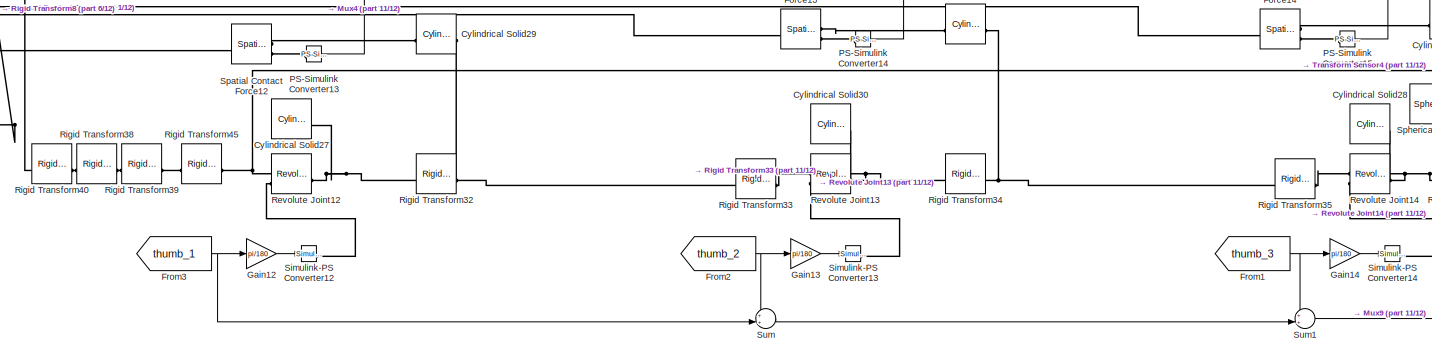
[diagram: Plant - part 12/12, bottom center region]
BLOCK [SubSystem] Plant
  Commented = on
BLOCK [Constant] Plant/Constant
  Value = Radius
BLOCK [Reference] Plant/Cylindrical Solid  REF=sm_lib/Body Elements/Cylindrical Solid
  NameLocation = right
  SourceBlock = sm_lib/Body Elements/Cylindrical Solid
  SourceType = Cylindrical Solid
BLOCK [Reference] Plant/Cylindrical Solid1  REF=sm_lib/Body Elements/Cylindrical Solid
  NameLocation = left
  SourceBlock = sm_lib/Body Elements/Cylindrical Solid
  SourceType = Cylindrical Solid
BLOCK [Reference] Plant/Cylindrical Solid10  REF=sm_lib/Body Elements/Cylindrical Solid
  NameLocation = left
  SourceBlock = sm_lib/Body Elements/Cylindrical Solid
  SourceType = Cylindrical Solid
BLOCK [Reference] Plant/Cylindrical Solid11  REF=sm_lib/Body Elements/Cylindrical Solid
  NameLocation = left
  SourceBlock = sm_lib/Body Elements/Cylindrical Solid
  SourceType = Cylindrical Solid
BLOCK [Reference] Plant/Cylindrical Solid12  REF=sm_lib/Body Elements/Cylindrical Solid
  NameLocation = left
  SourceBlock = sm_lib/Body Elements/Cylindrical Solid
  SourceType = Cylindrical Solid
BLOCK [Reference] Plant/Cylindrical Solid13  REF=sm_lib/Body Elements/Cylindrical Solid
  NameLocation = left
  SourceBlock = sm_lib/Body Elements/Cylindrical Solid
  SourceType = Cylindrical Solid
BLOCK [Reference] Plant/Cylindrical Solid14  REF=sm_lib/Body Elements/Cylindrical Solid
  NameLocation = left
  SourceBlock = sm_lib/Body Elements/Cylindrical Solid
  SourceType = Cylindrical Solid
BLOCK [Reference] Plant/Cylindrical Solid15  REF=sm_lib/Body Elements/Cylindrical Solid
  NameLocation = left
  SourceBlock = sm_lib/Body Elements/Cylindrical Solid
  SourceType = Cylindrical Solid
BLOCK [Reference] Plant/Cylindrical Solid16  REF=sm_lib/Body Elements/Cylindrical Solid
  NameLocation = left
  SourceBlock = sm_lib/Body Elements/Cylindrical Solid
  SourceType = Cylindrical Solid
BLOCK [Reference] Plant/Cylindrical Solid17  REF=sm_lib/Body Elements/Cylindrical Solid
  NameLocation = left
  SourceBlock = sm_lib/Body Elements/Cylindrical Solid
  SourceType = Cylindrical Solid
BLOCK [Reference] Plant/Cylindrical Solid18  REF=sm_lib/Body Elements/Cylindrical Solid
  NameLocation = left
  SourceBlock = sm_lib/Body Elements/Cylindrical Solid
  SourceType = Cylindrical Solid
BLOCK [Reference] Plant/Cylindrical Solid19  REF=sm_lib/Body Elements/Cylindrical Solid
  NameLocation = left
  SourceBlock = sm_lib/Body Elements/Cylindrical Solid
  SourceType = Cylindrical Solid
BLOCK [Reference] Plant/Cylindrical Solid2  REF=sm_lib/Body Elements/Cylindrical Solid
  NameLocation = left
  SourceBlock = sm_lib/Body Elements/Cylindrical Solid
  SourceType = Cylindrical Solid
BLOCK [Reference] Plant/Cylindrical Solid20  REF=sm_lib/Body Elements/Cylindrical Solid
  NameLocation = left
  SourceBlock = sm_lib/Body Elements/Cylindrical Solid
  SourceType = Cylindrical Solid
BLOCK [Reference] Plant/Cylindrical Solid21  REF=sm_lib/Body Elements/Cylindrical Solid
  NameLocation = left
  SourceBlock = sm_lib/Body Elements/Cylindrical Solid
  SourceType = Cylindrical Solid
BLOCK [Reference] Plant/Cylindrical Solid22  REF=sm_lib/Body Elements/Cylindrical Solid
  NameLocation = left
  SourceBlock = sm_lib/Body Elements/Cylindrical Solid
  SourceType = Cylindrical Solid
BLOCK [Reference] Plant/Cylindrical Solid23  REF=sm_lib/Body Elements/Cylindrical Solid
  NameLocation = left
  SourceBlock = sm_lib/Body Elements/Cylindrical Solid
  SourceType = Cylindrical Solid
BLOCK [Reference] Plant/Cylindrical Solid24  REF=sm_lib/Body Elements/Cylindrical Solid
  NameLocation = left
  SourceBlock = sm_lib/Body Elements/Cylindrical Solid
  SourceType = Cylindrical Solid
BLOCK [Reference] Plant/Cylindrical Solid25  REF=sm_lib/Body Elements/Cylindrical Solid
  NameLocation = left
  SourceBlock = sm_lib/Body Elements/Cylindrical Solid
  SourceType = Cylindrical Solid
BLOCK [Reference] Plant/Cylindrical Solid26  REF=sm_lib/Body Elements/Cylindrical Solid
  NameLocation = left
  SourceBlock = sm_lib/Body Elements/Cylindrical Solid
  SourceType = Cylindrical Solid
BLOCK [Reference] Plant/Cylindrical Solid27  REF=sm_lib/Body Elements/Cylindrical Solid
  NameLocation = left
  SourceBlock = sm_lib/Body Elements/Cylindrical Solid
  SourceType = Cylindrical Solid
BLOCK [Reference] Plant/Cylindrical Solid28  REF=sm_lib/Body Elements/Cylindrical Solid
  NameLocation = left
  SourceBlock = sm_lib/Body Elements/Cylindrical Solid
  SourceType = Cylindrical Solid
BLOCK [Reference] Plant/Cylindrical Solid29  REF=sm_lib/Body Elements/Cylindrical Solid
  NameLocation = left
  SourceBlock = sm_lib/Body Elements/Cylindrical Solid
  SourceType = Cylindrical Solid
BLOCK [Reference] Plant/Cylindrical Solid3  REF=sm_lib/Body Elements/Cylindrical Solid
  NameLocation = left
  SourceBlock = sm_lib/Body Elements/Cylindrical Solid
  SourceType = Cylindrical Solid
BLOCK [Reference] Plant/Cylindrical Solid30  REF=sm_lib/Body Elements/Cylindrical Solid
  NameLocation = left
  SourceBlock = sm_lib/Body Elements/Cylindrical Solid
  SourceType = Cylindrical Solid
BLOCK [Reference] Plant/Cylindrical Solid31  REF=sm_lib/Body Elements/Cylindrical Solid
  NameLocation = right
  SourceBlock = sm_lib/Body Elements/Cylindrical Solid
  SourceType = Cylindrical Solid
BLOCK [Reference] Plant/Cylindrical Solid4  REF=sm_lib/Body Elements/Cylindrical Solid
  NameLocation = left
  SourceBlock = sm_lib/Body Elements/Cylindrical Solid
  SourceType = Cylindrical Solid
BLOCK [Reference] Plant/Cylindrical Solid5  REF=sm_lib/Body Elements/Cylindrical Solid
  NameLocation = left
  SourceBlock = sm_lib/Body Elements/Cylindrical Solid
  SourceType = Cylindrical Solid
BLOCK [Reference] Plant/Cylindrical Solid6  REF=sm_lib/Body Elements/Cylindrical Solid
  NameLocation = left
  SourceBlock = sm_lib/Body Elements/Cylindrical Solid
  SourceType = Cylindrical Solid
BLOCK [Reference] Plant/Cylindrical Solid7  REF=sm_lib/Body Elements/Cylindrical Solid
  NameLocation = left
  SourceBlock = sm_lib/Body Elements/Cylindrical Solid
  SourceType = Cylindrical Solid
BLOCK [Reference] Plant/Cylindrical Solid8  REF=sm_lib/Body Elements/Cylindrical Solid
  NameLocation = left
  SourceBlock = sm_lib/Body Elements/Cylindrical Solid
  SourceType = Cylindrical Solid
BLOCK [Reference] Plant/Cylindrical Solid9  REF=sm_lib/Body Elements/Cylindrical Solid
  NameLocation = left
  SourceBlock = sm_lib/Body Elements/Cylindrical Solid
  SourceType = Cylindrical Solid
BLOCK [From] Plant/From
  GotoTag = index_1
BLOCK [From] Plant/From1
  GotoTag = thumb_3
BLOCK [From] Plant/From10
  GotoTag = index_3
BLOCK [From] Plant/From11
  GotoTag = index_2
BLOCK [From] Plant/From12
  GotoTag = mid_2
BLOCK [From] Plant/From13
  GotoTag = mid_3
BLOCK [From] Plant/From14
  GotoTag = mid_1
BLOCK [From] Plant/From2
  GotoTag = thumb_2
BLOCK [From] Plant/From3
  GotoTag = thumb_1
BLOCK [From] Plant/From4
  GotoTag = pinky_2
BLOCK [From] Plant/From5
  GotoTag = pinky_3
BLOCK [From] Plant/From6
  GotoTag = pinky_1
BLOCK [From] Plant/From7
  GotoTag = ring_3
BLOCK [From] Plant/From8
  GotoTag = ring_2
BLOCK [From] Plant/From9
  GotoTag = ring_1
BLOCK [Gain] Plant/Gain
  Gain = pi/180
BLOCK [Gain] Plant/Gain1
  Gain = pi/180
BLOCK [Gain] Plant/Gain10
  Gain = pi/180
BLOCK [Gain] Plant/Gain11
  Gain = pi/180
BLOCK [Gain] Plant/Gain12
  Gain = pi/180
BLOCK [Gain] Plant/Gain13
  Gain = pi/180
BLOCK [Gain] Plant/Gain14
  Gain = pi/180
BLOCK [Gain] Plant/Gain2
  Gain = pi/180
BLOCK [Gain] Plant/Gain3
  Gain = pi/180
BLOCK [Gain] Plant/Gain4
  Gain = pi/180
BLOCK [Gain] Plant/Gain5
  Gain = pi/180
BLOCK [Gain] Plant/Gain6
  Gain = pi/180
BLOCK [Gain] Plant/Gain7
  Gain = pi/180
BLOCK [Gain] Plant/Gain8
  Gain = pi/180
BLOCK [Gain] Plant/Gain9
  Gain = pi/180
BLOCK [Goto] Plant/Goto
  GotoTag = index_1
BLOCK [Goto] Plant/Goto1
  GotoTag = index_2
BLOCK [Goto] Plant/Goto10
  GotoTag = pinky_2
BLOCK [Goto] Plant/Goto11
  GotoTag = pinky_1
BLOCK [Goto] Plant/Goto12
  GotoTag = ring_3
BLOCK [Goto] Plant/Goto13
  GotoTag = ring_2
BLOCK [Goto] Plant/Goto14
  GotoTag = ring_1
BLOCK [Goto] Plant/Goto2
  GotoTag = index_3
BLOCK [Goto] Plant/Goto3
  GotoTag = mid_1
BLOCK [Goto] Plant/Goto4
  GotoTag = mid_2
BLOCK [Goto] Plant/Goto5
  GotoTag = mid_3
BLOCK [Goto] Plant/Goto6
  GotoTag = thumb_3
BLOCK [Goto] Plant/Goto7
  GotoTag = thumb_2
BLOCK [Goto] Plant/Goto8
  GotoTag = thumb_1
BLOCK [Goto] Plant/Goto9
  GotoTag = pinky_3
BLOCK [SubSystem] Plant/MATLAB Function
  ErrorFcn = Stateflow.Translate.translate
  PermitHierarchicalResolution = ExplicitOnly
  SFBlockType = MATLAB Function
  TreatAsAtomicUnit = on
BLOCK [Demux] Plant/MATLAB Function/ Demux 
  Outputs = 1
BLOCK [S-Function] Plant/MATLAB Function/ SFunction 
  EnableBusSupport = on
  FunctionName = sf_sfun
  PortCounts = [1 16]
  SFcnIsStateOwnerBlock = off
  SFunctionDeploymentMode = off
  Tag = Stateflow S-Function 1
BLOCK [Terminator] Plant/MATLAB Function/ Terminator 
BLOCK [Outport] Plant/MATLAB Function/o1
BLOCK [Outport] Plant/MATLAB Function/o10
  Port = 10
BLOCK [Outport] Plant/MATLAB Function/o11
  Port = 11
BLOCK [Outport] Plant/MATLAB Function/o12
  Port = 12
BLOCK [Outport] Plant/MATLAB Function/o13
  Port = 13
BLOCK [Outport] Plant/MATLAB Function/o14
  Port = 14
BLOCK [Outport] Plant/MATLAB Function/o15
  Port = 15
BLOCK [Outport] Plant/MATLAB Function/o2
  Port = 2
BLOCK [Outport] Plant/MATLAB Function/o3
  Port = 3
BLOCK [Outport] Plant/MATLAB Function/o4
  Port = 4
BLOCK [Outport] Plant/MATLAB Function/o5
  Port = 5
BLOCK [Outport] Plant/MATLAB Function/o6
  Port = 6
BLOCK [Outport] Plant/MATLAB Function/o7
  Port = 7
BLOCK [Outport] Plant/MATLAB Function/o8
  Port = 8
BLOCK [Outport] Plant/MATLAB Function/o9
  Port = 9
BLOCK [Inport] Plant/MATLAB Function/u
BLOCK [SubSystem] Plant/MATLAB Function1
  ErrorFcn = Stateflow.Translate.translate
  PermitHierarchicalResolution = ExplicitOnly
  SFBlockType = MATLAB Function
  TreatAsAtomicUnit = on
BLOCK [Demux] Plant/MATLAB Function1/ Demux 
  Outputs = 1
BLOCK [S-Function] Plant/MATLAB Function1/ SFunction 
  EnableBusSupport = on
  FunctionName = sf_sfun
  PortCounts = [1 4]
  SFcnIsStateOwnerBlock = off
  SFunctionDeploymentMode = off
  Tag = Stateflow S-Function 4
BLOCK [Terminator] Plant/MATLAB Function1/ Terminator 
BLOCK [Inport] Plant/MATLAB Function1/transSig
BLOCK [Outport] Plant/MATLAB Function1/x
BLOCK [Outport] Plant/MATLAB Function1/y
  Port = 2
BLOCK [Outport] Plant/MATLAB Function1/z
  Port = 3
BLOCK [SubSystem] Plant/MATLAB Function2
  ErrorFcn = Stateflow.Translate.translate
  PermitHierarchicalResolution = ExplicitOnly
  SFBlockType = MATLAB Function
  TreatAsAtomicUnit = on
BLOCK [Demux] Plant/MATLAB Function2/ Demux 
  Outputs = 1
BLOCK [S-Function] Plant/MATLAB Function2/ SFunction 
  EnableBusSupport = on
  FunctionName = sf_sfun
  PortCounts = [1 4]
  SFcnIsStateOwnerBlock = off
  SFunctionDeploymentMode = off
  Tag = Stateflow S-Function 6
BLOCK [Terminator] Plant/MATLAB Function2/ Terminator 
BLOCK [Inport] Plant/MATLAB Function2/transSig
BLOCK [Outport] Plant/MATLAB Function2/x
BLOCK [Outport] Plant/MATLAB Function2/y
  Port = 2
BLOCK [Outport] Plant/MATLAB Function2/z
  Port = 3
BLOCK [SubSystem] Plant/MATLAB Function3
  ErrorFcn = Stateflow.Translate.translate
  PermitHierarchicalResolution = ExplicitOnly
  SFBlockType = MATLAB Function
  TreatAsAtomicUnit = on
BLOCK [Demux] Plant/MATLAB Function3/ Demux 
  Outputs = 1
BLOCK [S-Function] Plant/MATLAB Function3/ SFunction 
  EnableBusSupport = on
  FunctionName = sf_sfun
  PortCounts = [1 4]
  SFcnIsStateOwnerBlock = off
  SFunctionDeploymentMode = off
  Tag = Stateflow S-Function 7
BLOCK [Terminator] Plant/MATLAB Function3/ Terminator 
BLOCK [Inport] Plant/MATLAB Function3/transSig
BLOCK [Outport] Plant/MATLAB Function3/x
BLOCK [Outport] Plant/MATLAB Function3/y
  Port = 2
BLOCK [Outport] Plant/MATLAB Function3/z
  Port = 3
BLOCK [SubSystem] Plant/MATLAB Function4
  ErrorFcn = Stateflow.Translate.translate
  PermitHierarchicalResolution = ExplicitOnly
  SFBlockType = MATLAB Function
  TreatAsAtomicUnit = on
BLOCK [Demux] Plant/MATLAB Function4/ Demux 
  Outputs = 1
BLOCK [S-Function] Plant/MATLAB Function4/ SFunction 
  EnableBusSupport = on
  FunctionName = sf_sfun
  PortCounts = [1 4]
  SFcnIsStateOwnerBlock = off
  SFunctionDeploymentMode = off
  Tag = Stateflow S-Function 8
BLOCK [Terminator] Plant/MATLAB Function4/ Terminator 
BLOCK [Inport] Plant/MATLAB Function4/transSig
BLOCK [Outport] Plant/MATLAB Function4/x
BLOCK [Outport] Plant/MATLAB Function4/y
  Port = 2
BLOCK [Outport] Plant/MATLAB Function4/z
  Port = 3
BLOCK [SubSystem] Plant/MATLAB Function5
  ErrorFcn = Stateflow.Translate.translate
  PermitHierarchicalResolution = ExplicitOnly
  SFBlockType = MATLAB Function
  TreatAsAtomicUnit = on
BLOCK [Demux] Plant/MATLAB Function5/ Demux 
  Outputs = 1
BLOCK [S-Function] Plant/MATLAB Function5/ SFunction 
  EnableBusSupport = on
  FunctionName = sf_sfun
  PortCounts = [1 4]
  SFcnIsStateOwnerBlock = off
  SFunctionDeploymentMode = off
  Tag = Stateflow S-Function 9
BLOCK [Terminator] Plant/MATLAB Function5/ Terminator 
BLOCK [Inport] Plant/MATLAB Function5/transSig
BLOCK [Outport] Plant/MATLAB Function5/x
BLOCK [Outport] Plant/MATLAB Function5/y
  Port = 2
BLOCK [Outport] Plant/MATLAB Function5/z
  Port = 3
BLOCK [Reference] Plant/Mechanism Configuration  REF=sm_lib/Utilities/Mechanism
Configuration
  SourceBlock = sm_lib/Utilities/Mechanism\nConfiguration
  SourceType = Mechanism\nConfiguration
BLOCK [Mux] Plant/Mux
  DisplayOption = bar
  Inputs = 3
BLOCK [Mux] Plant/Mux1
  DisplayOption = bar
  Inputs = 3
BLOCK [Mux] Plant/Mux2
  DisplayOption = bar
  Inputs = 3
BLOCK [Mux] Plant/Mux3
  DisplayOption = bar
  Inputs = 3
BLOCK [Mux] Plant/Mux4
  DisplayOption = bar
  Inputs = 3
BLOCK [Mux] Plant/Mux5
  DisplayOption = bar
BLOCK [Mux] Plant/Mux6
  DisplayOption = bar
BLOCK [Mux] Plant/Mux7
  DisplayOption = bar
BLOCK [Mux] Plant/Mux8
  DisplayOption = bar
BLOCK [Mux] Plant/Mux9
  DisplayOption = bar
BLOCK [Outport] Plant/Out1
  Port = 3
BLOCK [Reference] Plant/PS-Simulink Converter  REF=nesl_utility/PS-Simulink
Converter
  SourceBlock = nesl_utility/PS-Simulink\nConverter
  SourceType = PS-Simulink\nConverter
BLOCK [Reference] Plant/PS-Simulink Converter1  REF=nesl_utility/PS-Simulink
Converter
  SourceBlock = nesl_utility/PS-Simulink\nConverter
  SourceType = PS-Simulink\nConverter
BLOCK [Reference] Plant/PS-Simulink Converter10  REF=nesl_utility/PS-Simulink
Converter
  SourceBlock = nesl_utility/PS-Simulink\nConverter
  SourceType = PS-Simulink\nConverter
BLOCK [Reference] Plant/PS-Simulink Converter11  REF=nesl_utility/PS-Simulink
Converter
  SourceBlock = nesl_utility/PS-Simulink\nConverter
  SourceType = PS-Simulink\nConverter
BLOCK [Reference] Plant/PS-Simulink Converter12  REF=nesl_utility/PS-Simulink
Converter
  SourceBlock = nesl_utility/PS-Simulink\nConverter
  SourceType = PS-Simulink\nConverter
BLOCK [Reference] Plant/PS-Simulink Converter13  REF=nesl_utility/PS-Simulink
Converter
  SourceBlock = nesl_utility/PS-Simulink\nConverter
  SourceType = PS-Simulink\nConverter
BLOCK [Reference] Plant/PS-Simulink Converter14  REF=nesl_utility/PS-Simulink
Converter
  SourceBlock = nesl_utility/PS-Simulink\nConverter
  SourceType = PS-Simulink\nConverter
BLOCK [Reference] Plant/PS-Simulink Converter15  REF=nesl_utility/PS-Simulink
Converter
  SourceBlock = nesl_utility/PS-Simulink\nConverter
  SourceType = PS-Simulink\nConverter
BLOCK [Reference] Plant/PS-Simulink Converter16  REF=nesl_utility/PS-Simulink
Converter
  SourceBlock = nesl_utility/PS-Simulink\nConverter
  SourceType = PS-Simulink\nConverter
BLOCK [Reference] Plant/PS-Simulink Converter17  REF=nesl_utility/PS-Simulink
Converter
  SourceBlock = nesl_utility/PS-Simulink\nConverter
  SourceType = PS-Simulink\nConverter
BLOCK [Reference] Plant/PS-Simulink Converter18  REF=nesl_utility/PS-Simulink
Converter
  SourceBlock = nesl_utility/PS-Simulink\nConverter
  SourceType = PS-Simulink\nConverter
BLOCK [Reference] Plant/PS-Simulink Converter19  REF=nesl_utility/PS-Simulink
Converter
  SourceBlock = nesl_utility/PS-Simulink\nConverter
  SourceType = PS-Simulink\nConverter
BLOCK [Reference] Plant/PS-Simulink Converter2  REF=nesl_utility/PS-Simulink
Converter
  SourceBlock = nesl_utility/PS-Simulink\nConverter
  SourceType = PS-Simulink\nConverter
BLOCK [Reference] Plant/PS-Simulink Converter3  REF=nesl_utility/PS-Simulink
Converter
  SourceBlock = nesl_utility/PS-Simulink\nConverter
  SourceType = PS-Simulink\nConverter
BLOCK [Reference] Plant/PS-Simulink Converter4  REF=nesl_utility/PS-Simulink
Converter
  SourceBlock = nesl_utility/PS-Simulink\nConverter
  SourceType = PS-Simulink\nConverter
BLOCK [Reference] Plant/PS-Simulink Converter5  REF=nesl_utility/PS-Simulink
Converter
  SourceBlock = nesl_utility/PS-Simulink\nConverter
  SourceType = PS-Simulink\nConverter
BLOCK [Reference] Plant/PS-Simulink Converter6  REF=nesl_utility/PS-Simulink
Converter
  SourceBlock = nesl_utility/PS-Simulink\nConverter
  SourceType = PS-Simulink\nConverter
BLOCK [Reference] Plant/PS-Simulink Converter7  REF=nesl_utility/PS-Simulink
Converter
  SourceBlock = nesl_utility/PS-Simulink\nConverter
  SourceType = PS-Simulink\nConverter
BLOCK [Reference] Plant/PS-Simulink Converter8  REF=nesl_utility/PS-Simulink
Converter
  SourceBlock = nesl_utility/PS-Simulink\nConverter
  SourceType = PS-Simulink\nConverter
BLOCK [Reference] Plant/PS-Simulink Converter9  REF=nesl_utility/PS-Simulink
Converter
  SourceBlock = nesl_utility/PS-Simulink\nConverter
  SourceType = PS-Simulink\nConverter
BLOCK [Reference] Plant/Reference Frame  REF=sm_lib/Frames and
Transforms/Reference
Frame
  SourceBlock = sm_lib/Frames and\nTransforms/Reference\nFrame
  SourceType = Reference\nFrame
BLOCK [Reference] Plant/Revolute Joint  REF=sm_lib/Joints/Revolute Joint
  SourceBlock = sm_lib/Joints/Revolute Joint
  SourceType = Revolute Joint
BLOCK [Reference] Plant/Revolute Joint1  REF=sm_lib/Joints/Revolute Joint
  SourceBlock = sm_lib/Joints/Revolute Joint
  SourceType = Revolute Joint
BLOCK [Reference] Plant/Revolute Joint10  REF=sm_lib/Joints/Revolute Joint
  SourceBlock = sm_lib/Joints/Revolute Joint
  SourceType = Revolute Joint
BLOCK [Reference] Plant/Revolute Joint11  REF=sm_lib/Joints/Revolute Joint
  SourceBlock = sm_lib/Joints/Revolute Joint
  SourceType = Revolute Joint
BLOCK [Reference] Plant/Revolute Joint12  REF=sm_lib/Joints/Revolute Joint
  SourceBlock = sm_lib/Joints/Revolute Joint
  SourceType = Revolute Joint
BLOCK [Reference] Plant/Revolute Joint13  REF=sm_lib/Joints/Revolute Joint
  SourceBlock = sm_lib/Joints/Revolute Joint
  SourceType = Revolute Joint
BLOCK [Reference] Plant/Revolute Joint14  REF=sm_lib/Joints/Revolute Joint
  SourceBlock = sm_lib/Joints/Revolute Joint
  SourceType = Revolute Joint
BLOCK [Reference] Plant/Revolute Joint2  REF=sm_lib/Joints/Revolute Joint
  SourceBlock = sm_lib/Joints/Revolute Joint
  SourceType = Revolute Joint
BLOCK [Reference] Plant/Revolute Joint3  REF=sm_lib/Joints/Revolute Joint
  SourceBlock = sm_lib/Joints/Revolute Joint
  SourceType = Revolute Joint
BLOCK [Reference] Plant/Revolute Joint4  REF=sm_lib/Joints/Revolute Joint
  SourceBlock = sm_lib/Joints/Revolute Joint
  SourceType = Revolute Joint
BLOCK [Reference] Plant/Revolute Joint5  REF=sm_lib/Joints/Revolute Joint
  SourceBlock = sm_lib/Joints/Revolute Joint
  SourceType = Revolute Joint
BLOCK [Reference] Plant/Revolute Joint6  REF=sm_lib/Joints/Revolute Joint
  SourceBlock = sm_lib/Joints/Revolute Joint
  SourceType = Revolute Joint
BLOCK [Reference] Plant/Revolute Joint7  REF=sm_lib/Joints/Revolute Joint
  SourceBlock = sm_lib/Joints/Revolute Joint
  SourceType = Revolute Joint
BLOCK [Reference] Plant/Revolute Joint8  REF=sm_lib/Joints/Revolute Joint
  SourceBlock = sm_lib/Joints/Revolute Joint
  SourceType = Revolute Joint
BLOCK [Reference] Plant/Revolute Joint9  REF=sm_lib/Joints/Revolute Joint
  SourceBlock = sm_lib/Joints/Revolute Joint
  SourceType = Revolute Joint
BLOCK [Reference] Plant/Rigid Transform  REF=sm_lib/Frames and
Transforms/Rigid
Transform
  NameLocation = left
  SourceBlock = sm_lib/Frames and\nTransforms/Rigid\nTransform
  SourceType = Rigid\nTransform
BLOCK [Reference] Plant/Rigid Transform1  REF=sm_lib/Frames and
Transforms/Rigid
Transform
  SourceBlock = sm_lib/Frames and\nTransforms/Rigid\nTransform
  SourceType = Rigid\nTransform
BLOCK [Reference] Plant/Rigid Transform10  REF=sm_lib/Frames and
Transforms/Rigid
Transform
  SourceBlock = sm_lib/Frames and\nTransforms/Rigid\nTransform
  SourceType = Rigid\nTransform
BLOCK [Reference] Plant/Rigid Transform11  REF=sm_lib/Frames and
Transforms/Rigid
Transform
  SourceBlock = sm_lib/Frames and\nTransforms/Rigid\nTransform
  SourceType = Rigid\nTransform
BLOCK [Reference] Plant/Rigid Transform12  REF=sm_lib/Frames and
Transforms/Rigid
Transform
  SourceBlock = sm_lib/Frames and\nTransforms/Rigid\nTransform
  SourceType = Rigid\nTransform
BLOCK [Reference] Plant/Rigid Transform13  REF=sm_lib/Frames and
Transforms/Rigid
Transform
  SourceBlock = sm_lib/Frames and\nTransforms/Rigid\nTransform
  SourceType = Rigid\nTransform
BLOCK [Reference] Plant/Rigid Transform14  REF=sm_lib/Frames and
Transforms/Rigid
Transform
  SourceBlock = sm_lib/Frames and\nTransforms/Rigid\nTransform
  SourceType = Rigid\nTransform
BLOCK [Reference] Plant/Rigid Transform15  REF=sm_lib/Frames and
Transforms/Rigid
Transform
  SourceBlock = sm_lib/Frames and\nTransforms/Rigid\nTransform
  SourceType = Rigid\nTransform
BLOCK [Reference] Plant/Rigid Transform16  REF=sm_lib/Frames and
Transforms/Rigid
Transform
  SourceBlock = sm_lib/Frames and\nTransforms/Rigid\nTransform
  SourceType = Rigid\nTransform
BLOCK [Reference] Plant/Rigid Transform17  REF=sm_lib/Frames and
Transforms/Rigid
Transform
  SourceBlock = sm_lib/Frames and\nTransforms/Rigid\nTransform
  SourceType = Rigid\nTransform
BLOCK [Reference] Plant/Rigid Transform18  REF=sm_lib/Frames and
Transforms/Rigid
Transform
  SourceBlock = sm_lib/Frames and\nTransforms/Rigid\nTransform
  SourceType = Rigid\nTransform
BLOCK [Reference] Plant/Rigid Transform19  REF=sm_lib/Frames and
Transforms/Rigid
Transform
  SourceBlock = sm_lib/Frames and\nTransforms/Rigid\nTransform
  SourceType = Rigid\nTransform
BLOCK [Reference] Plant/Rigid Transform2  REF=sm_lib/Frames and
Transforms/Rigid
Transform
  SourceBlock = sm_lib/Frames and\nTransforms/Rigid\nTransform
  SourceType = Rigid\nTransform
BLOCK [Reference] Plant/Rigid Transform20  REF=sm_lib/Frames and
Transforms/Rigid
Transform
  SourceBlock = sm_lib/Frames and\nTransforms/Rigid\nTransform
  SourceType = Rigid\nTransform
BLOCK [Reference] Plant/Rigid Transform21  REF=sm_lib/Frames and
Transforms/Rigid
Transform
  SourceBlock = sm_lib/Frames and\nTransforms/Rigid\nTransform
  SourceType = Rigid\nTransform
BLOCK [Reference] Plant/Rigid Transform22  REF=sm_lib/Frames and
Transforms/Rigid
Transform
  SourceBlock = sm_lib/Frames and\nTransforms/Rigid\nTransform
  SourceType = Rigid\nTransform
BLOCK [Reference] Plant/Rigid Transform23  REF=sm_lib/Frames and
Transforms/Rigid
Transform
  SourceBlock = sm_lib/Frames and\nTransforms/Rigid\nTransform
  SourceType = Rigid\nTransform
BLOCK [Reference] Plant/Rigid Transform24  REF=sm_lib/Frames and
Transforms/Rigid
Transform
  SourceBlock = sm_lib/Frames and\nTransforms/Rigid\nTransform
  SourceType = Rigid\nTransform
BLOCK [Reference] Plant/Rigid Transform25  REF=sm_lib/Frames and
Transforms/Rigid
Transform
  SourceBlock = sm_lib/Frames and\nTransforms/Rigid\nTransform
  SourceType = Rigid\nTransform
BLOCK [Reference] Plant/Rigid Transform26  REF=sm_lib/Frames and
Transforms/Rigid
Transform
  SourceBlock = sm_lib/Frames and\nTransforms/Rigid\nTransform
  SourceType = Rigid\nTransform
BLOCK [Reference] Plant/Rigid Transform27  REF=sm_lib/Frames and
Transforms/Rigid
Transform
  SourceBlock = sm_lib/Frames and\nTransforms/Rigid\nTransform
  SourceType = Rigid\nTransform
BLOCK [Reference] Plant/Rigid Transform28  REF=sm_lib/Frames and
Transforms/Rigid
Transform
  SourceBlock = sm_lib/Frames and\nTransforms/Rigid\nTransform
  SourceType = Rigid\nTransform
BLOCK [Reference] Plant/Rigid Transform29  REF=sm_lib/Frames and
Transforms/Rigid
Transform
  SourceBlock = sm_lib/Frames and\nTransforms/Rigid\nTransform
  SourceType = Rigid\nTransform
BLOCK [Reference] Plant/Rigid Transform3  REF=sm_lib/Frames and
Transforms/Rigid
Transform
  SourceBlock = sm_lib/Frames and\nTransforms/Rigid\nTransform
  SourceType = Rigid\nTransform
BLOCK [Reference] Plant/Rigid Transform30  REF=sm_lib/Frames and
Transforms/Rigid
Transform
  SourceBlock = sm_lib/Frames and\nTransforms/Rigid\nTransform
  SourceType = Rigid\nTransform
BLOCK [Reference] Plant/Rigid Transform31  REF=sm_lib/Frames and
Transforms/Rigid
Transform
  SourceBlock = sm_lib/Frames and\nTransforms/Rigid\nTransform
  SourceType = Rigid\nTransform
BLOCK [Reference] Plant/Rigid Transform32  REF=sm_lib/Frames and
Transforms/Rigid
Transform
  SourceBlock = sm_lib/Frames and\nTransforms/Rigid\nTransform
  SourceType = Rigid\nTransform
BLOCK [Reference] Plant/Rigid Transform33  REF=sm_lib/Frames and
Transforms/Rigid
Transform
  SourceBlock = sm_lib/Frames and\nTransforms/Rigid\nTransform
  SourceType = Rigid\nTransform
BLOCK [Reference] Plant/Rigid Transform34  REF=sm_lib/Frames and
Transforms/Rigid
Transform
  SourceBlock = sm_lib/Frames and\nTransforms/Rigid\nTransform
  SourceType = Rigid\nTransform
BLOCK [Reference] Plant/Rigid Transform35  REF=sm_lib/Frames and
Transforms/Rigid
Transform
  SourceBlock = sm_lib/Frames and\nTransforms/Rigid\nTransform
  SourceType = Rigid\nTransform
BLOCK [Reference] Plant/Rigid Transform37  REF=sm_lib/Frames and
Transforms/Rigid
Transform
  SourceBlock = sm_lib/Frames and\nTransforms/Rigid\nTransform
  SourceType = Rigid\nTransform
BLOCK [Reference] Plant/Rigid Transform38  REF=sm_lib/Frames and
Transforms/Rigid
Transform
  SourceBlock = sm_lib/Frames and\nTransforms/Rigid\nTransform
  SourceType = Rigid\nTransform
BLOCK [Reference] Plant/Rigid Transform39  REF=sm_lib/Frames and
Transforms/Rigid
Transform
  SourceBlock = sm_lib/Frames and\nTransforms/Rigid\nTransform
  SourceType = Rigid\nTransform
BLOCK [Reference] Plant/Rigid Transform4  REF=sm_lib/Frames and
Transforms/Rigid
Transform
  SourceBlock = sm_lib/Frames and\nTransforms/Rigid\nTransform
  SourceType = Rigid\nTransform
BLOCK [Reference] Plant/Rigid Transform40  REF=sm_lib/Frames and
Transforms/Rigid
Transform
  SourceBlock = sm_lib/Frames and\nTransforms/Rigid\nTransform
  SourceType = Rigid\nTransform
BLOCK [Reference] Plant/Rigid Transform41  REF=sm_lib/Frames and
Transforms/Rigid
Transform
  SourceBlock = sm_lib/Frames and\nTransforms/Rigid\nTransform
  SourceType = Rigid\nTransform
BLOCK [Reference] Plant/Rigid Transform42  REF=sm_lib/Frames and
Transforms/Rigid
Transform
  SourceBlock = sm_lib/Frames and\nTransforms/Rigid\nTransform
  SourceType = Rigid\nTransform
BLOCK [Reference] Plant/Rigid Transform43  REF=sm_lib/Frames and
Transforms/Rigid
Transform
  SourceBlock = sm_lib/Frames and\nTransforms/Rigid\nTransform
  SourceType = Rigid\nTransform
BLOCK [Reference] Plant/Rigid Transform44  REF=sm_lib/Frames and
Transforms/Rigid
Transform
  SourceBlock = sm_lib/Frames and\nTransforms/Rigid\nTransform
  SourceType = Rigid\nTransform
BLOCK [Reference] Plant/Rigid Transform45  REF=sm_lib/Frames and
Transforms/Rigid
Transform
  SourceBlock = sm_lib/Frames and\nTransforms/Rigid\nTransform
  SourceType = Rigid\nTransform
BLOCK [Reference] Plant/Rigid Transform47  REF=sm_lib/Frames and
Transforms/Rigid
Transform
  SourceBlock = sm_lib/Frames and\nTransforms/Rigid\nTransform
  SourceType = Rigid\nTransform
BLOCK [Reference] Plant/Rigid Transform5  REF=sm_lib/Frames and
Transforms/Rigid
Transform
  SourceBlock = sm_lib/Frames and\nTransforms/Rigid\nTransform
  SourceType = Rigid\nTransform
BLOCK [Reference] Plant/Rigid Transform6  REF=sm_lib/Frames and
Transforms/Rigid
Transform
  SourceBlock = sm_lib/Frames and\nTransforms/Rigid\nTransform
  SourceType = Rigid\nTransform
BLOCK [Reference] Plant/Rigid Transform7  REF=sm_lib/Frames and
Transforms/Rigid
Transform
  SourceBlock = sm_lib/Frames and\nTransforms/Rigid\nTransform
  SourceType = Rigid\nTransform
BLOCK [Reference] Plant/Rigid Transform8  REF=sm_lib/Frames and
Transforms/Rigid
Transform
  SourceBlock = sm_lib/Frames and\nTransforms/Rigid\nTransform
  SourceType = Rigid\nTransform
BLOCK [Reference] Plant/Rigid Transform9  REF=sm_lib/Frames and
Transforms/Rigid
Transform
  SourceBlock = sm_lib/Frames and\nTransforms/Rigid\nTransform
  SourceType = Rigid\nTransform
BLOCK [Reference] Plant/Simulink-PS Converter  REF=nesl_utility/Simulink-PS
Converter
  SourceBlock = nesl_utility/Simulink-PS\nConverter
  SourceType = Simulink-PS\nConverter
BLOCK [Reference] Plant/Simulink-PS Converter1  REF=nesl_utility/Simulink-PS
Converter
  SourceBlock = nesl_utility/Simulink-PS\nConverter
  SourceType = Simulink-PS\nConverter
BLOCK [Reference] Plant/Simulink-PS Converter10  REF=nesl_utility/Simulink-PS
Converter
  SourceBlock = nesl_utility/Simulink-PS\nConverter
  SourceType = Simulink-PS\nConverter
BLOCK [Reference] Plant/Simulink-PS Converter11  REF=nesl_utility/Simulink-PS
Converter
  SourceBlock = nesl_utility/Simulink-PS\nConverter
  SourceType = Simulink-PS\nConverter
BLOCK [Reference] Plant/Simulink-PS Converter12  REF=nesl_utility/Simulink-PS
Converter
  SourceBlock = nesl_utility/Simulink-PS\nConverter
  SourceType = Simulink-PS\nConverter
BLOCK [Reference] Plant/Simulink-PS Converter13  REF=nesl_utility/Simulink-PS
Converter
  SourceBlock = nesl_utility/Simulink-PS\nConverter
  SourceType = Simulink-PS\nConverter
BLOCK [Reference] Plant/Simulink-PS Converter14  REF=nesl_utility/Simulink-PS
Converter
  SourceBlock = nesl_utility/Simulink-PS\nConverter
  SourceType = Simulink-PS\nConverter
BLOCK [Reference] Plant/Simulink-PS Converter2  REF=nesl_utility/Simulink-PS
Converter
  SourceBlock = nesl_utility/Simulink-PS\nConverter
  SourceType = Simulink-PS\nConverter
BLOCK [Reference] Plant/Simulink-PS Converter3  REF=nesl_utility/Simulink-PS
Converter
  SourceBlock = nesl_utility/Simulink-PS\nConverter
  SourceType = Simulink-PS\nConverter
BLOCK [Reference] Plant/Simulink-PS Converter4  REF=nesl_utility/Simulink-PS
Converter
  SourceBlock = nesl_utility/Simulink-PS\nConverter
  SourceType = Simulink-PS\nConverter
BLOCK [Reference] Plant/Simulink-PS Converter5  REF=nesl_utility/Simulink-PS
Converter
  SourceBlock = nesl_utility/Simulink-PS\nConverter
  SourceType = Simulink-PS\nConverter
BLOCK [Reference] Plant/Simulink-PS Converter6  REF=nesl_utility/Simulink-PS
Converter
  SourceBlock = nesl_utility/Simulink-PS\nConverter
  SourceType = Simulink-PS\nConverter
BLOCK [Reference] Plant/Simulink-PS Converter7  REF=nesl_utility/Simulink-PS
Converter
  SourceBlock = nesl_utility/Simulink-PS\nConverter
  SourceType = Simulink-PS\nConverter
BLOCK [Reference] Plant/Simulink-PS Converter8  REF=nesl_utility/Simulink-PS
Converter
  SourceBlock = nesl_utility/Simulink-PS\nConverter
  SourceType = Simulink-PS\nConverter
BLOCK [Reference] Plant/Simulink-PS Converter9  REF=nesl_utility/Simulink-PS
Converter
  SourceBlock = nesl_utility/Simulink-PS\nConverter
  SourceType = Simulink-PS\nConverter
BLOCK [Reference] Plant/Solver Configuration  REF=nesl_utility/Solver
Configuration
  SourceBlock = nesl_utility/Solver\nConfiguration
  SourceType = Solver\nConfiguration
BLOCK [Reference] Plant/Spatial Contact Force  REF=sm_lib/Forces and
Torques/Spatial
Contact Force
  SourceBlock = sm_lib/Forces and\nTorques/Spatial\nContact Force
  SourceType = Spatial\nContact Force
BLOCK [Reference] Plant/Spatial Contact Force1  REF=sm_lib/Forces and
Torques/Spatial
Contact Force
  SourceBlock = sm_lib/Forces and\nTorques/Spatial\nContact Force
  SourceType = Spatial\nContact Force
BLOCK [Reference] Plant/Spatial Contact Force10  REF=sm_lib/Forces and
Torques/Spatial
Contact Force
  SourceBlock = sm_lib/Forces and\nTorques/Spatial\nContact Force
  SourceType = Spatial\nContact Force
BLOCK [Reference] Plant/Spatial Contact Force11  REF=sm_lib/Forces and
Torques/Spatial
Contact Force
  SourceBlock = sm_lib/Forces and\nTorques/Spatial\nContact Force
  SourceType = Spatial\nContact Force
BLOCK [Reference] Plant/Spatial Contact Force12  REF=sm_lib/Forces and
Torques/Spatial
Contact Force
  SourceBlock = sm_lib/Forces and\nTorques/Spatial\nContact Force
  SourceType = Spatial\nContact Force
BLOCK [Reference] Plant/Spatial Contact Force13  REF=sm_lib/Forces and
Torques/Spatial
Contact Force
  SourceBlock = sm_lib/Forces and\nTorques/Spatial\nContact Force
  SourceType = Spatial\nContact Force
BLOCK [Reference] Plant/Spatial Contact Force14  REF=sm_lib/Forces and
Torques/Spatial
Contact Force
  SourceBlock = sm_lib/Forces and\nTorques/Spatial\nContact Force
  SourceType = Spatial\nContact Force
BLOCK [Reference] Plant/Spatial Contact Force2  REF=sm_lib/Forces and
Torques/Spatial
Contact Force
  SourceBlock = sm_lib/Forces and\nTorques/Spatial\nContact Force
  SourceType = Spatial\nContact Force
BLOCK [Reference] Plant/Spatial Contact Force3  REF=sm_lib/Forces and
Torques/Spatial
Contact Force
  SourceBlock = sm_lib/Forces and\nTorques/Spatial\nContact Force
  SourceType = Spatial\nContact Force
BLOCK [Reference] Plant/Spatial Contact Force4  REF=sm_lib/Forces and
Torques/Spatial
Contact Force
  SourceBlock = sm_lib/Forces and\nTorques/Spatial\nContact Force
  SourceType = Spatial\nContact Force
BLOCK [Reference] Plant/Spatial Contact Force5  REF=sm_lib/Forces and
Torques/Spatial
Contact Force
  SourceBlock = sm_lib/Forces and\nTorques/Spatial\nContact Force
  SourceType = Spatial\nContact Force
BLOCK [Reference] Plant/Spatial Contact Force6  REF=sm_lib/Forces and
Torques/Spatial
Contact Force
  SourceBlock = sm_lib/Forces and\nTorques/Spatial\nContact Force
  SourceType = Spatial\nContact Force
BLOCK [Reference] Plant/Spatial Contact Force7  REF=sm_lib/Forces and
Torques/Spatial
Contact Force
  SourceBlock = sm_lib/Forces and\nTorques/Spatial\nContact Force
  SourceType = Spatial\nContact Force
BLOCK [Reference] Plant/Spatial Contact Force8  REF=sm_lib/Forces and
Torques/Spatial
Contact Force
  SourceBlock = sm_lib/Forces and\nTorques/Spatial\nContact Force
  SourceType = Spatial\nContact Force
BLOCK [Reference] Plant/Spatial Contact Force9  REF=sm_lib/Forces and
Torques/Spatial
Contact Force
  SourceBlock = sm_lib/Forces and\nTorques/Spatial\nContact Force
  SourceType = Spatial\nContact Force
BLOCK [Reference] Plant/Spherical Solid  REF=sm_lib/Body Elements/Spherical Solid
  NameLocation = top
  SourceBlock = sm_lib/Body Elements/Spherical Solid
  SourceType = Spherical Solid
BLOCK [Reference] Plant/Spherical Solid1  REF=sm_lib/Body Elements/Spherical Solid
  NameLocation = top
  SourceBlock = sm_lib/Body Elements/Spherical Solid
  SourceType = Spherical Solid
BLOCK [Reference] Plant/Spherical Solid2  REF=sm_lib/Body Elements/Spherical Solid
  NameLocation = top
  SourceBlock = sm_lib/Body Elements/Spherical Solid
  SourceType = Spherical Solid
BLOCK [Reference] Plant/Spherical Solid3  REF=sm_lib/Body Elements/Spherical Solid
  NameLocation = top
  SourceBlock = sm_lib/Body Elements/Spherical Solid
  SourceType = Spherical Solid
BLOCK [Reference] Plant/Spherical Solid4  REF=sm_lib/Body Elements/Spherical Solid
  NameLocation = top
  SourceBlock = sm_lib/Body Elements/Spherical Solid
  SourceType = Spherical Solid
BLOCK [Reference] Plant/Spherical Solid5  REF=sm_lib/Body Elements/Spherical Solid
  NameLocation = left
  SourceBlock = sm_lib/Body Elements/Spherical Solid
  SourceType = Spherical Solid
BLOCK [Reference] Plant/Spherical Solid6  REF=sm_lib/Body Elements/Spherical Solid
  NameLocation = left
  SourceBlock = sm_lib/Body Elements/Spherical Solid
  SourceType = Spherical Solid
BLOCK [Reference] Plant/Spherical Solid7  REF=sm_lib/Body Elements/Spherical Solid
  NameLocation = left
  SourceBlock = sm_lib/Body Elements/Spherical Solid
  SourceType = Spherical Solid
BLOCK [Reference] Plant/Spherical Solid8  REF=sm_lib/Body Elements/Spherical Solid
  NameLocation = left
  SourceBlock = sm_lib/Body Elements/Spherical Solid
  SourceType = Spherical Solid
BLOCK [Reference] Plant/Spherical Solid9  REF=sm_lib/Body Elements/Spherical Solid
  NameLocation = left
  SourceBlock = sm_lib/Body Elements/Spherical Solid
  SourceType = Spherical Solid
BLOCK [Reference] Plant/Spherical_Solid5  REF=sm_lib/Body Elements/Spherical Solid
  NameLocation = right
  SourceBlock = sm_lib/Body Elements/Spherical Solid
  SourceType = Spherical Solid
BLOCK [Sum] Plant/Sum
  Inputs = ++|
BLOCK [Sum] Plant/Sum1
  Inputs = ++|
BLOCK [Sum] Plant/Sum2
  Inputs = ++|
BLOCK [Sum] Plant/Sum3
  Inputs = ++|
BLOCK [Sum] Plant/Sum4
  Inputs = ++|
BLOCK [Sum] Plant/Sum5
  Inputs = ++|
BLOCK [Sum] Plant/Sum6
  Inputs = ++|
BLOCK [Sum] Plant/Sum7
  Inputs = ++|
BLOCK [Sum] Plant/Sum8
  Inputs = ++|
BLOCK [Sum] Plant/Sum9
  Inputs = ++|
BLOCK [Reference] Plant/Transform Sensor  REF=sm_lib/Frames and
Transforms/Transform
Sensor
  SourceBlock = sm_lib/Frames and\nTransforms/Transform\nSensor
  SourceType = Transform\nSensor
BLOCK [Reference] Plant/Transform Sensor1  REF=sm_lib/Frames and
Transforms/Transform
Sensor
  SourceBlock = sm_lib/Frames and\nTransforms/Transform\nSensor
  SourceType = Transform\nSensor
BLOCK [Reference] Plant/Transform Sensor2  REF=sm_lib/Frames and
Transforms/Transform
Sensor
  SourceBlock = sm_lib/Frames and\nTransforms/Transform\nSensor
  SourceType = Transform\nSensor
BLOCK [Reference] Plant/Transform Sensor3  REF=sm_lib/Frames and
Transforms/Transform
Sensor
  SourceBlock = sm_lib/Frames and\nTransforms/Transform\nSensor
  SourceType = Transform\nSensor
BLOCK [Reference] Plant/Transform Sensor4  REF=sm_lib/Frames and
Transforms/Transform
Sensor
  SourceBlock = sm_lib/Frames and\nTransforms/Transform\nSensor
  SourceType = Transform\nSensor
BLOCK [Concatenate] Plant/Vector Concatenate
  ConcatenateDimension = 2
  Mode = Multidimensional array
  NumInputs = 5
BLOCK [Concatenate] Plant/Vector Concatenate1
  ConcatenateDimension = 2
  Mode = Multidimensional array
  NumInputs = 5
BLOCK [Reference] Plant/World Frame  REF=sm_lib/Frames and
Transforms/World Frame
  SourceBlock = sm_lib/Frames and\nTransforms/World Frame
  SourceType = World Frame
BLOCK [Outport] Plant/chk
BLOCK [Inport] Plant/u
BLOCK [Outport] Plant/x
  Port = 2
BLOCK [PushButtonBlock] Push Button1
  Commented = on
  OffValue = 0.000000
BLOCK [SubSystem] Quintic Trajectory
  ErrorFcn = Stateflow.Translate.translate
  PermitHierarchicalResolution = ExplicitOnly
  SFBlockType = MATLAB Function
  TreatAsAtomicUnit = on
BLOCK [Demux] Quintic Trajectory/ Demux 
  Outputs = 1
BLOCK [S-Function] Quintic Trajectory/ SFunction 
  EnableBusSupport = on
  FunctionName = sf_sfun
  PortCounts = [2 2]
  SFcnIsStateOwnerBlock = off
  SFunctionDeploymentMode = off
  Tag = Stateflow S-Function 2
BLOCK [Terminator] Quintic Trajectory/ Terminator 
BLOCK [Outport] Quintic Trajectory/q
BLOCK [Inport] Quintic Trajectory/t
  Port = 2
BLOCK [Inport] Quintic Trajectory/target_q
BLOCK [SubSystem] Send End Effector Position
  ErrorFcn = Stateflow.Translate.translate
  PermitHierarchicalResolution = ExplicitOnly
  SFBlockType = MATLAB Function
  TreatAsAtomicUnit = on
BLOCK [Demux] Send End Effector Position/ Demux 
  Outputs = 1
BLOCK [S-Function] Send End Effector Position/ SFunction 
  EnableBusSupport = on
  FunctionName = sf_sfun
  PortCounts = [3 2]
  SFcnIsStateOwnerBlock = off
  SFunctionDeploymentMode = off
  Tag = Stateflow S-Function 12
BLOCK [Terminator] Send End Effector Position/ Terminator 
BLOCK [Inport] Send End Effector Position/L
  Port = 2
BLOCK [Inport] Send End Effector Position/R
BLOCK [Inport] Send End Effector Position/mode
  Port = 3
BLOCK [Outport] Send End Effector Position/taskspace
BLOCK [ToWorkspace] To Workspace
  Commented = on
  FixptAsFi = on
  MaxDataPoints = inf
  NameLocation = top
  SampleTime = -1
  SaveFormat = Structure
  VariableName = flag
ANNOTATION Human_Hand: Pinky Finger
ANNOTATION Human_Hand: Ring Finger
LINE Clock:1 -> Quintic Trajectory:2
LINE Constant1:1 -> MATLAB Function:2
LINE Constant3:1 -> Input:2
LINE Constant4:1 -> Input:3
LINE Constant5:1 -> Input:4
LINE Constant6:1 -> Input:5
LINE Constant:1 -> Input:1
LINE Forward Kinematics:1 -> Display8:1
LINE From1:1 -> Send End Effector Position:2
LINE From2:1 -> Send End Effector Position:3
LINE From:1 -> Send End Effector Position:1
NET Human_Hand/From10:1 -> Human_Hand/Gain5:1, Human_Hand/Sum7:1
NET Human_Hand/From11:1 -> Human_Hand/Gain4:1, Human_Hand/Sum6:1
NET Human_Hand/From12:1 -> Human_Hand/Gain1:1, Human_Hand/Sum8:1
NET Human_Hand/From13:1 -> Human_Hand/Gain2:1, Human_Hand/Sum9:1
NET Human_Hand/From14:1 -> Human_Hand/Gain:1, Human_Hand/Sum8:2
NET Human_Hand/From1:1 -> Human_Hand/Gain14:1, Human_Hand/Sum1:1
NET Human_Hand/From2:1 -> Human_Hand/Gain13:1, Human_Hand/Sum:1
NET Human_Hand/From3:1 -> Human_Hand/Gain12:1, Human_Hand/Sum:2
NET Human_Hand/From4:1 -> Human_Hand/Gain10:1, Human_Hand/Sum2:1
NET Human_Hand/From5:1 -> Human_Hand/Gain11:1, Human_Hand/Sum3:1
NET Human_Hand/From6:1 -> Human_Hand/Gain9:1, Human_Hand/Sum2:2
NET Human_Hand/From7:1 -> Human_Hand/Gain8:1, Human_Hand/Sum5:1
NET Human_Hand/From8:1 -> Human_Hand/Gain7:1, Human_Hand/Sum4:1
NET Human_Hand/From9:1 -> Human_Hand/Gain6:1, Human_Hand/Sum4:2
NET Human_Hand/From:1 -> Human_Hand/Gain3:1, Human_Hand/Sum6:2
LINE Human_Hand/Gain10:1 -> Human_Hand/Simulink-PS Converter10:1
LINE Human_Hand/Gain11:1 -> Human_Hand/Simulink-PS Converter11:1
LINE Human_Hand/Gain12:1 -> Human_Hand/Simulink-PS Converter12:1
LINE Human_Hand/Gain13:1 -> Human_Hand/Simulink-PS Converter13:1
LINE Human_Hand/Gain14:1 -> Human_Hand/Simulink-PS Converter14:1
LINE Human_Hand/Gain1:1 -> Human_Hand/Simulink-PS Converter1:1
LINE Human_Hand/Gain2:1 -> Human_Hand/Simulink-PS Converter2:1
LINE Human_Hand/Gain3:1 -> Human_Hand/Simulink-PS Converter3:1
LINE Human_Hand/Gain4:1 -> Human_Hand/Simulink-PS Converter4:1
LINE Human_Hand/Gain5:1 -> Human_Hand/Simulink-PS Converter5:1
LINE Human_Hand/Gain6:1 -> Human_Hand/Simulink-PS Converter6:1
LINE Human_Hand/Gain7:1 -> Human_Hand/Simulink-PS Converter7:1
LINE Human_Hand/Gain8:1 -> Human_Hand/Simulink-PS Converter8:1
LINE Human_Hand/Gain9:1 -> Human_Hand/Simulink-PS Converter9:1
LINE Human_Hand/Gain:1 -> Human_Hand/Simulink-PS Converter:1
LINE Human_Hand/Index Position:1 -> Human_Hand/Mux6:1
LINE Human_Hand/Index Position:2 -> Human_Hand/Mux6:2
LINE Human_Hand/Index Position:3 -> Human_Hand/Mux6:3
LINE Human_Hand/Length:1 -> Human_Hand/ Length:1
LINE Human_Hand/MATLAB Function:1 -> Human_Hand/Goto8:1
LINE Human_Hand/MATLAB Function:10 -> Human_Hand/Goto14:1
LINE Human_Hand/MATLAB Function:11 -> Human_Hand/Goto13:1
LINE Human_Hand/MATLAB Function:12 -> Human_Hand/Goto12:1
LINE Human_Hand/MATLAB Function:13 -> Human_Hand/Goto11:1
LINE Human_Hand/MATLAB Function:14 -> Human_Hand/Goto10:1
LINE Human_Hand/MATLAB Function:15 -> Human_Hand/Goto9:1
LINE Human_Hand/MATLAB Function:2 -> Human_Hand/Goto7:1
LINE Human_Hand/MATLAB Function:3 -> Human_Hand/Goto6:1
LINE Human_Hand/MATLAB Function:4 -> Human_Hand/Goto:1
LINE Human_Hand/MATLAB Function:5 -> Human_Hand/Goto1:1
LINE Human_Hand/MATLAB Function:6 -> Human_Hand/Goto2:1
LINE Human_Hand/MATLAB Function:7 -> Human_Hand/Goto3:1
LINE Human_Hand/MATLAB Function:8 -> Human_Hand/Goto4:1
LINE Human_Hand/MATLAB Function:9 -> Human_Hand/Goto5:1
LINE Human_Hand/Middle Position:1 -> Human_Hand/Mux5:1
LINE Human_Hand/Middle Position:2 -> Human_Hand/Mux5:2
LINE Human_Hand/Middle Position:3 -> Human_Hand/Mux5:3
LINE Human_Hand/Mux1:1 -> Human_Hand/Vector Concatenate:2
LINE Human_Hand/Mux2:1 -> Human_Hand/Vector Concatenate:4
LINE Human_Hand/Mux3:1 -> Human_Hand/Vector Concatenate:5
LINE Human_Hand/Mux4:1 -> Human_Hand/Vector Concatenate:1
LINE Human_Hand/Mux5:1 -> Human_Hand/Vector Concatenate1:3
LINE Human_Hand/Mux6:1 -> Human_Hand/Vector Concatenate1:2
LINE Human_Hand/Mux7:1 -> Human_Hand/Vector Concatenate1:4
LINE Human_Hand/Mux8:1 -> Human_Hand/Vector Concatenate1:5
LINE Human_Hand/Mux9:1 -> Human_Hand/Vector Concatenate1:1
LINE Human_Hand/Mux:1 -> Human_Hand/Vector Concatenate:3
LINE Human_Hand/PS-Simulink Converter10:1 -> Human_Hand/Mux3:1
LINE Human_Hand/PS-Simulink Converter11:1 -> Human_Hand/Mux3:2
LINE Human_Hand/PS-Simulink Converter12:1 -> Human_Hand/Mux3:3
LINE Human_Hand/PS-Simulink Converter13:1 -> Human_Hand/Mux4:1
LINE Human_Hand/PS-Simulink Converter14:1 -> Human_Hand/Mux4:2
LINE Human_Hand/PS-Simulink Converter15:1 -> Human_Hand/Mux4:3
LINE Human_Hand/PS-Simulink Converter16:1 -> Human_Hand/Index Position:1
LINE Human_Hand/PS-Simulink Converter17:1 -> Human_Hand/Ring Position:1
LINE Human_Hand/PS-Simulink Converter18:1 -> Human_Hand/Pinky Position:1
LINE Human_Hand/PS-Simulink Converter19:1 -> Human_Hand/Thumb Position:1
LINE Human_Hand/PS-Simulink Converter1:1 -> Human_Hand/Mux:1
LINE Human_Hand/PS-Simulink Converter2:1 -> Human_Hand/Mux:2
LINE Human_Hand/PS-Simulink Converter3:1 -> Human_Hand/Mux:3
LINE Human_Hand/PS-Simulink Converter4:1 -> Human_Hand/Mux1:1
LINE Human_Hand/PS-Simulink Converter5:1 -> Human_Hand/Mux1:2
LINE Human_Hand/PS-Simulink Converter6:1 -> Human_Hand/Mux1:3
LINE Human_Hand/PS-Simulink Converter7:1 -> Human_Hand/Mux2:1
LINE Human_Hand/PS-Simulink Converter8:1 -> Human_Hand/Mux2:2
LINE Human_Hand/PS-Simulink Converter9:1 -> Human_Hand/Mux2:3
LINE Human_Hand/PS-Simulink Converter:1 -> Human_Hand/Middle Position:1
LINE Human_Hand/Pinky Position:1 -> Human_Hand/Mux8:1
LINE Human_Hand/Pinky Position:2 -> Human_Hand/Mux8:2
LINE Human_Hand/Pinky Position:3 -> Human_Hand/Mux8:3
LINE Human_Hand/Radius:1 -> Human_Hand/ Radius:1
LINE Human_Hand/Ring Position:1 -> Human_Hand/Mux7:1
LINE Human_Hand/Ring Position:2 -> Human_Hand/Mux7:2
LINE Human_Hand/Ring Position:3 -> Human_Hand/Mux7:3
LINE Human_Hand/Sum1:1 -> Human_Hand/Mux9:4
LINE Human_Hand/Sum2:1 -> Human_Hand/Sum3:2
LINE Human_Hand/Sum3:1 -> Human_Hand/Mux8:4
LINE Human_Hand/Sum4:1 -> Human_Hand/Sum5:2
LINE Human_Hand/Sum5:1 -> Human_Hand/Mux7:4
LINE Human_Hand/Sum6:1 -> Human_Hand/Sum7:2
LINE Human_Hand/Sum7:1 -> Human_Hand/Mux6:4
LINE Human_Hand/Sum8:1 -> Human_Hand/Sum9:2
LINE Human_Hand/Sum9:1 -> Human_Hand/Mux5:4
LINE Human_Hand/Sum:1 -> Human_Hand/Sum1:2
LINE Human_Hand/Thumb Position:1 -> Human_Hand/Mux9:1
LINE Human_Hand/Thumb Position:2 -> Human_Hand/Mux9:2
LINE Human_Hand/Thumb Position:3 -> Human_Hand/Mux9:3
LINE Human_Hand/Vector Concatenate1:1 -> Human_Hand/Display1:1
LINE Human_Hand/Vector Concatenate:1 -> Human_Hand/Display:1
LINE Human_Hand/mode:1 -> Human_Hand/Mode:1
LINE Human_Hand/u:1 -> Human_Hand/MATLAB Function:1
LINE Human_Hand:1 -> Goto1:1
LINE Human_Hand:2 -> Goto2:1
LINE Human_Hand:3 -> Goto3:1
LINE Input/In1:1 -> Input/Mux5:1
LINE Input/In2:1 -> Input/Mux5:2
LINE Input/In3:1 -> Input/Mux5:3
LINE Input/In4:1 -> Input/Mux5:4
LINE Input/In5:1 -> Input/Mux5:5
LINE Input/MATLAB Function:1 -> Input/Mux:1
LINE Input/MATLAB Function:10 -> Input/Mux3:1
LINE Input/MATLAB Function:11 -> Input/Mux3:2
LINE Input/MATLAB Function:12 -> Input/Mux3:3
LINE Input/MATLAB Function:13 -> Input/Mux4:1
LINE Input/MATLAB Function:14 -> Input/Mux4:2
LINE Input/MATLAB Function:15 -> Input/Mux4:3
LINE Input/MATLAB Function:2 -> Input/Mux:2
LINE Input/MATLAB Function:3 -> Input/Mux:3
LINE Input/MATLAB Function:4 -> Input/Mux1:1
LINE Input/MATLAB Function:5 -> Input/Mux1:2
LINE Input/MATLAB Function:6 -> Input/Mux1:3
LINE Input/MATLAB Function:7 -> Input/Mux2:1
LINE Input/MATLAB Function:8 -> Input/Mux2:2
LINE Input/MATLAB Function:9 -> Input/Mux2:3
LINE Input/Mux1:1 -> Input/Vector Concatenate:2
LINE Input/Mux2:1 -> Input/Vector Concatenate:3
LINE Input/Mux3:1 -> Input/Vector Concatenate:4
LINE Input/Mux4:1 -> Input/Vector Concatenate:5
LINE Input/Mux5:1 -> Input/MATLAB Function:1
LINE Input/Mux:1 -> Input/Vector Concatenate:1
LINE Input/Vector Concatenate:1 -> Input/Out1:1
LINE Inverse Kinematics:1 -> Quintic Trajectory:1
NET MATLAB Function:1 -> Forward Kinematics:1, Plant:1
NET MATLAB Function:2 -> Display3:1, To Workspace:1
LINE Memory:1 -> MATLAB Function:1
LINE Plant/Constant:1 -> Plant/Out1:1
NET Plant/From10:1 -> Plant/Gain5:1, Plant/Sum7:1
NET Plant/From11:1 -> Plant/Gain4:1, Plant/Sum6:1
NET Plant/From12:1 -> Plant/Gain1:1, Plant/Sum8:1
NET Plant/From13:1 -> Plant/Gain2:1, Plant/Sum9:1
NET Plant/From14:1 -> Plant/Gain:1, Plant/Sum8:2
NET Plant/From1:1 -> Plant/Gain14:1, Plant/Sum1:1
NET Plant/From2:1 -> Plant/Gain13:1, Plant/Sum:1
NET Plant/From3:1 -> Plant/Gain12:1, Plant/Sum:2
NET Plant/From4:1 -> Plant/Gain10:1, Plant/Sum2:1
NET Plant/From5:1 -> Plant/Gain11:1, Plant/Sum3:1
NET Plant/From6:1 -> Plant/Gain9:1, Plant/Sum2:2
NET Plant/From7:1 -> Plant/Gain8:1, Plant/Sum5:1
NET Plant/From8:1 -> Plant/Gain7:1, Plant/Sum4:1
NET Plant/From9:1 -> Plant/Gain6:1, Plant/Sum4:2
NET Plant/From:1 -> Plant/Gain3:1, Plant/Sum6:2
LINE Plant/Gain10:1 -> Plant/Simulink-PS Converter10:1
LINE Plant/Gain11:1 -> Plant/Simulink-PS Converter11:1
LINE Plant/Gain12:1 -> Plant/Simulink-PS Converter12:1
LINE Plant/Gain13:1 -> Plant/Simulink-PS Converter13:1
LINE Plant/Gain14:1 -> Plant/Simulink-PS Converter14:1
LINE Plant/Gain1:1 -> Plant/Simulink-PS Converter1:1
LINE Plant/Gain2:1 -> Plant/Simulink-PS Converter2:1
LINE Plant/Gain3:1 -> Plant/Simulink-PS Converter3:1
LINE Plant/Gain4:1 -> Plant/Simulink-PS Converter4:1
LINE Plant/Gain5:1 -> Plant/Simulink-PS Converter5:1
LINE Plant/Gain6:1 -> Plant/Simulink-PS Converter6:1
LINE Plant/Gain7:1 -> Plant/Simulink-PS Converter7:1
LINE Plant/Gain8:1 -> Plant/Simulink-PS Converter8:1
LINE Plant/Gain9:1 -> Plant/Simulink-PS Converter9:1
LINE Plant/Gain:1 -> Plant/Simulink-PS Converter:1
LINE Plant/MATLAB Function1:1 -> Plant/Mux5:1
LINE Plant/MATLAB Function1:2 -> Plant/Mux5:2
LINE Plant/MATLAB Function1:3 -> Plant/Mux5:3
LINE Plant/MATLAB Function2:1 -> Plant/Mux6:1
LINE Plant/MATLAB Function2:2 -> Plant/Mux6:2
LINE Plant/MATLAB Function2:3 -> Plant/Mux6:3
LINE Plant/MATLAB Function3:1 -> Plant/Mux7:1
LINE Plant/MATLAB Function3:2 -> Plant/Mux7:2
LINE Plant/MATLAB Function3:3 -> Plant/Mux7:3
LINE Plant/MATLAB Function4:1 -> Plant/Mux8:1
LINE Plant/MATLAB Function4:2 -> Plant/Mux8:2
LINE Plant/MATLAB Function4:3 -> Plant/Mux8:3
LINE Plant/MATLAB Function5:1 -> Plant/Mux9:1
LINE Plant/MATLAB Function5:2 -> Plant/Mux9:2
LINE Plant/MATLAB Function5:3 -> Plant/Mux9:3
LINE Plant/MATLAB Function:1 -> Plant/Goto8:1
LINE Plant/MATLAB Function:10 -> Plant/Goto14:1
LINE Plant/MATLAB Function:11 -> Plant/Goto13:1
LINE Plant/MATLAB Function:12 -> Plant/Goto12:1
LINE Plant/MATLAB Function:13 -> Plant/Goto11:1
LINE Plant/MATLAB Function:14 -> Plant/Goto10:1
LINE Plant/MATLAB Function:15 -> Plant/Goto9:1
LINE Plant/MATLAB Function:2 -> Plant/Goto7:1
LINE Plant/MATLAB Function:3 -> Plant/Goto6:1
LINE Plant/MATLAB Function:4 -> Plant/Goto:1
LINE Plant/MATLAB Function:5 -> Plant/Goto1:1
LINE Plant/MATLAB Function:6 -> Plant/Goto2:1
LINE Plant/MATLAB Function:7 -> Plant/Goto3:1
LINE Plant/MATLAB Function:8 -> Plant/Goto4:1
LINE Plant/MATLAB Function:9 -> Plant/Goto5:1
LINE Plant/Mux1:1 -> Plant/Vector Concatenate:2
LINE Plant/Mux2:1 -> Plant/Vector Concatenate:4
LINE Plant/Mux3:1 -> Plant/Vector Concatenate:5
LINE Plant/Mux4:1 -> Plant/Vector Concatenate:1
LINE Plant/Mux5:1 -> Plant/Vector Concatenate1:3
LINE Plant/Mux6:1 -> Plant/Vector Concatenate1:2
LINE Plant/Mux7:1 -> Plant/Vector Concatenate1:4
LINE Plant/Mux8:1 -> Plant/Vector Concatenate1:5
LINE Plant/Mux9:1 -> Plant/Vector Concatenate1:1
LINE Plant/Mux:1 -> Plant/Vector Concatenate:3
LINE Plant/PS-Simulink Converter10:1 -> Plant/Mux3:1
LINE Plant/PS-Simulink Converter11:1 -> Plant/Mux3:2
LINE Plant/PS-Simulink Converter12:1 -> Plant/Mux3:3
LINE Plant/PS-Simulink Converter13:1 -> Plant/Mux4:1
LINE Plant/PS-Simulink Converter14:1 -> Plant/Mux4:2
LINE Plant/PS-Simulink Converter15:1 -> Plant/Mux4:3
LINE Plant/PS-Simulink Converter16:1 -> Plant/MATLAB Function2:1
LINE Plant/PS-Simulink Converter17:1 -> Plant/MATLAB Function3:1
LINE Plant/PS-Simulink Converter18:1 -> Plant/MATLAB Function4:1
LINE Plant/PS-Simulink Converter19:1 -> Plant/MATLAB Function5:1
LINE Plant/PS-Simulink Converter1:1 -> Plant/Mux:1
LINE Plant/PS-Simulink Converter2:1 -> Plant/Mux:2
LINE Plant/PS-Simulink Converter3:1 -> Plant/Mux:3
LINE Plant/PS-Simulink Converter4:1 -> Plant/Mux1:1
LINE Plant/PS-Simulink Converter5:1 -> Plant/Mux1:2
LINE Plant/PS-Simulink Converter6:1 -> Plant/Mux1:3
LINE Plant/PS-Simulink Converter7:1 -> Plant/Mux2:1
LINE Plant/PS-Simulink Converter8:1 -> Plant/Mux2:2
LINE Plant/PS-Simulink Converter9:1 -> Plant/Mux2:3
LINE Plant/PS-Simulink Converter:1 -> Plant/MATLAB Function1:1
LINE Plant/Sum1:1 -> Plant/Mux9:4
LINE Plant/Sum2:1 -> Plant/Sum3:2
LINE Plant/Sum3:1 -> Plant/Mux8:4
LINE Plant/Sum4:1 -> Plant/Sum5:2
LINE Plant/Sum5:1 -> Plant/Mux7:4
LINE Plant/Sum6:1 -> Plant/Sum7:2
LINE Plant/Sum7:1 -> Plant/Mux6:4
LINE Plant/Sum8:1 -> Plant/Sum9:2
LINE Plant/Sum9:1 -> Plant/Mux5:4
LINE Plant/Sum:1 -> Plant/Sum1:2
LINE Plant/Vector Concatenate1:1 -> Plant/x:1
LINE Plant/Vector Concatenate:1 -> Plant/chk:1
LINE Plant/u:1 -> Plant/MATLAB Function:1
NET Plant:1 -> Display:1, Memory:1
LINE Plant:2 -> Display1:1
LINE Plant:3 -> Goto15:1
LINE Quintic Trajectory:1 -> Human_Hand:1
LINE Send End Effector Position:1 -> Inverse Kinematics:1
PNET net1: Human_Hand/Contact Index Link 1 to Object:LConn1 -- Human_Hand/Contact Index Link 2 to Object:LConn1 -- Human_Hand/Contact Index Link 3 to Object:LConn1 -- Human_Hand/Contact Middle Link 1 to Object:LConn1 -- Human_Hand/Contact Middle Link 2 to Object:LConn1 -- Human_Hand/Contact Middle Link 3 to Object:LConn1 -- Human_Hand/Contact Pinky Link 1 to Object:LConn1 -- Human_Hand/Contact Pinky Link 2 to Object:LConn1 -- Human_Hand/Contact Pinky Link 3 to Object:LConn1 -- Human_Hand/Contact Ring Link 1 to Object:LConn1 -- Human_Hand/Contact Ring Link 2 to Object:LConn1 -- Human_Hand/Contact Ring Link 3 to Object:LConn1 -- Human_Hand/Contact Thumb Link 1 to Object:LConn1 -- Human_Hand/Contact Thumb Link 2 to Object:LConn1 -- Human_Hand/Contact Thumb Link 3 to Object:LConn1 -- Human_Hand/Cylindrical:LConn1
PLINE Human_Hand/Contact Index Link 1 to Object:RConn1 -- Human_Hand/Index Link 1:LConn1
PLINE Human_Hand/Contact Index Link 1 to Object:RConn2 -- Human_Hand/PS-Simulink Converter4:LConn1
PLINE Human_Hand/Contact Index Link 2 to Object:RConn1 -- Human_Hand/Index Link 2:LConn1
PLINE Human_Hand/Contact Index Link 2 to Object:RConn2 -- Human_Hand/PS-Simulink Converter5:LConn1
PLINE Human_Hand/Contact Index Link 3 to Object:RConn1 -- Human_Hand/Index Link 3:LConn1
PLINE Human_Hand/Contact Index Link 3 to Object:RConn2 -- Human_Hand/PS-Simulink Converter6:LConn1
PLINE Human_Hand/Contact Middle Link 1 to Object:RConn1 -- Human_Hand/Middle Link 1:LConn1
PLINE Human_Hand/Contact Middle Link 1 to Object:RConn2 -- Human_Hand/PS-Simulink Converter1:LConn1
PLINE Human_Hand/Contact Middle Link 2 to Object:RConn1 -- Human_Hand/Middle Link 2:LConn1
PLINE Human_Hand/Contact Middle Link 2 to Object:RConn2 -- Human_Hand/PS-Simulink Converter2:LConn1
PLINE Human_Hand/Contact Middle Link 3 to Object:RConn1 -- Human_Hand/Middle Link 3:LConn1
PLINE Human_Hand/Contact Middle Link 3 to Object:RConn2 -- Human_Hand/PS-Simulink Converter3:LConn1
PLINE Human_Hand/Contact Pinky Link 1 to Object:RConn1 -- Human_Hand/Pinky Link 1:LConn1
PLINE Human_Hand/Contact Pinky Link 1 to Object:RConn2 -- Human_Hand/PS-Simulink Converter10:LConn1
PLINE Human_Hand/Contact Pinky Link 2 to Object:RConn1 -- Human_Hand/Pinky Link 2:LConn1
PLINE Human_Hand/Contact Pinky Link 2 to Object:RConn2 -- Human_Hand/PS-Simulink Converter11:LConn1
PLINE Human_Hand/Contact Pinky Link 3 to Object:RConn1 -- Human_Hand/Pinky Link 3:LConn1
PLINE Human_Hand/Contact Pinky Link 3 to Object:RConn2 -- Human_Hand/PS-Simulink Converter12:LConn1
PLINE Human_Hand/Contact Ring Link 1 to Object:RConn1 -- Human_Hand/Ring Link 1:LConn1
PLINE Human_Hand/Contact Ring Link 1 to Object:RConn2 -- Human_Hand/PS-Simulink Converter7:LConn1
PLINE Human_Hand/Contact Ring Link 2 to Object:RConn1 -- Human_Hand/Ring Link 2:LConn1
PLINE Human_Hand/Contact Ring Link 2 to Object:RConn2 -- Human_Hand/PS-Simulink Converter8:LConn1
PLINE Human_Hand/Contact Ring Link 3 to Object:RConn1 -- Human_Hand/Ring Link 3:LConn1
PLINE Human_Hand/Contact Ring Link 3 to Object:RConn2 -- Human_Hand/PS-Simulink Converter9:LConn1
PLINE Human_Hand/Contact Thumb Link 1 to Object:RConn1 -- Human_Hand/Thumb Link 1:LConn1
PLINE Human_Hand/Contact Thumb Link 1 to Object:RConn2 -- Human_Hand/PS-Simulink Converter13:LConn1
PLINE Human_Hand/Contact Thumb Link 2 to Object:RConn1 -- Human_Hand/Thumb Link 2:LConn1
PLINE Human_Hand/Contact Thumb Link 2 to Object:RConn2 -- Human_Hand/PS-Simulink Converter14:LConn1
PLINE Human_Hand/Contact Thumb Link 3 to Object:RConn1 -- Human_Hand/Thumb Link 3:LConn1
PLINE Human_Hand/Contact Thumb Link 3 to Object:RConn2 -- Human_Hand/PS-Simulink Converter15:LConn1
PLINE Human_Hand/Cylindrical:RConn1 -- Human_Hand/Rigid Transform:RConn1
PLINE Human_Hand/Index Joint 1:LConn1 -- Human_Hand/Rigid Transform42:RConn1
PLINE Human_Hand/Index Joint 1:LConn2 -- Human_Hand/Simulink-PS Converter3:RConn1
PLINE Human_Hand/Index Joint 1:RConn1 -- Human_Hand/Rigid Transform6:LConn1
PLINE Human_Hand/Index Joint 2:LConn1 -- Human_Hand/Rigid Transform10:RConn1
PLINE Human_Hand/Index Joint 2:LConn2 -- Human_Hand/Simulink-PS Converter4:RConn1
PNET net2: Human_Hand/Index Joint 2:RConn1 -- Human_Hand/Rigid Transform11:LConn1 -- Human_Hand/Spherical Solid12:RConn1
PLINE Human_Hand/Index Joint 3:LConn1 -- Human_Hand/Rigid Transform12:RConn1
PLINE Human_Hand/Index Joint 3:LConn2 -- Human_Hand/Simulink-PS Converter5:RConn1
PNET net3: Human_Hand/Index Joint 3:RConn1 -- Human_Hand/Rigid Transform13:LConn1 -- Human_Hand/Spherical Solid5:RConn1
PNET net4: Human_Hand/Index Link 1:RConn1 -- Human_Hand/Rigid Transform10:LConn1 -- Human_Hand/Rigid Transform6:RConn1
PNET net5: Human_Hand/Index Link 2:RConn1 -- Human_Hand/Rigid Transform11:RConn1 -- Human_Hand/Rigid Transform12:LConn1
PNET net6: Human_Hand/Index Link 3:RConn1 -- Human_Hand/Rigid Transform13:RConn1 -- Human_Hand/Rigid Transform15:LConn1
PNET net7: Human_Hand/Index Tip:RConn1 -- Human_Hand/Index tip Position relate to world frame:RConn1 -- Human_Hand/Rigid Transform15:RConn1
PLINE Human_Hand/Index tip Position relate to world frame:LConn1 -- Human_Hand/World Frame2:RConn1
PLINE Human_Hand/Index tip Position relate to world frame:RConn2 -- Human_Hand/PS-Simulink Converter16:LConn1
PNET net8: Human_Hand/Mechanism Configuration:RConn1 -- Human_Hand/Palm:RConn1 -- Human_Hand/Reference Frame:RConn1 -- Human_Hand/Rigid Transform1:LConn1 -- Human_Hand/Rigid Transform22:LConn1 -- Human_Hand/Rigid Transform30:LConn1 -- Human_Hand/Rigid Transform40:LConn1 -- Human_Hand/Rigid Transform8:LConn1 -- Human_Hand/Rigid Transform:LConn1 -- Human_Hand/Solver Configuration:RConn1 -- Human_Hand/World Frame:RConn1
PLINE Human_Hand/Middle Joint 1:LConn1 -- Human_Hand/Rigid Transform41:RConn1
PLINE Human_Hand/Middle Joint 1:LConn2 -- Human_Hand/Simulink-PS Converter:RConn1
PLINE Human_Hand/Middle Joint 1:RConn1 -- Human_Hand/Rigid Transform2:LConn1
PLINE Human_Hand/Middle Joint 2:LConn1 -- Human_Hand/Rigid Transform47:RConn1
PLINE Human_Hand/Middle Joint 2:LConn2 -- Human_Hand/Simulink-PS Converter1:RConn1
PNET net9: Human_Hand/Middle Joint 2:RConn1 -- Human_Hand/Rigid Transform4:LConn1 -- Human_Hand/Spherical Solid13:RConn1
PLINE Human_Hand/Middle Joint 3:LConn1 -- Human_Hand/Rigid Transform3:RConn1
PLINE Human_Hand/Middle Joint 3:LConn2 -- Human_Hand/Simulink-PS Converter2:RConn1
PNET net10: Human_Hand/Middle Joint 3:RConn1 -- Human_Hand/Rigid Transform5:LConn1 -- Human_Hand/Spherical Solid6:RConn1
PNET net11: Human_Hand/Middle Link 1:RConn1 -- Human_Hand/Rigid Transform2:RConn1 -- Human_Hand/Rigid Transform47:LConn1
PNET net12: Human_Hand/Middle Link 2:RConn1 -- Human_Hand/Rigid Transform3:LConn1 -- Human_Hand/Rigid Transform4:RConn1
PNET net13: Human_Hand/Middle Link 3:RConn1 -- Human_Hand/Rigid Transform5:RConn1 -- Human_Hand/Rigid Transform7:LConn1
PNET net14: Human_Hand/Middle Tip:RConn1 -- Human_Hand/Middle tip Position relate to world frame:RConn1 -- Human_Hand/Rigid Transform7:RConn1
PLINE Human_Hand/Middle tip Position relate to world frame:LConn1 -- Human_Hand/World Frame1:RConn1
PLINE Human_Hand/Middle tip Position relate to world frame:RConn2 -- Human_Hand/PS-Simulink Converter:LConn1
PLINE Human_Hand/PS-Simulink Converter17:LConn1 -- Human_Hand/Ring tip Position relate to world frame:RConn2
PLINE Human_Hand/PS-Simulink Converter18:LConn1 -- Human_Hand/Pinky Tip Position relate to world frame:RConn2
PLINE Human_Hand/PS-Simulink Converter19:LConn1 -- Human_Hand/Thumb Tip Position relate to world frame:RConn2
PLINE Human_Hand/Pinky Joint 1:LConn1 -- Human_Hand/Rigid Transform44:RConn1
PLINE Human_Hand/Pinky Joint 1:LConn2 -- Human_Hand/Simulink-PS Converter9:RConn1
PLINE Human_Hand/Pinky Joint 1:RConn1 -- Human_Hand/Rigid Transform24:LConn1
PLINE Human_Hand/Pinky Joint 2:LConn1 -- Human_Hand/Rigid Transform25:RConn1
PLINE Human_Hand/Pinky Joint 2:LConn2 -- Human_Hand/Simulink-PS Converter10:RConn1
PNET net15: Human_Hand/Pinky Joint 2:RConn1 -- Human_Hand/Rigid Transform26:LConn1 -- Human_Hand/Spherical Solid10:RConn1
PLINE Human_Hand/Pinky Joint 3:LConn1 -- Human_Hand/Rigid Transform27:RConn1
PLINE Human_Hand/Pinky Joint 3:LConn2 -- Human_Hand/Simulink-PS Converter11:RConn1
PNET net16: Human_Hand/Pinky Joint 3:RConn1 -- Human_Hand/Rigid Transform43:LConn1 -- Human_Hand/Spherical Solid8:RConn1
PNET net17: Human_Hand/Pinky Link 1:RConn1 -- Human_Hand/Rigid Transform24:RConn1 -- Human_Hand/Rigid Transform25:LConn1
PNET net18: Human_Hand/Pinky Link 2:RConn1 -- Human_Hand/Rigid Transform26:RConn1 -- Human_Hand/Rigid Transform27:LConn1
PNET net19: Human_Hand/Pinky Link 3:RConn1 -- Human_Hand/Rigid Transform29:LConn1 -- Human_Hand/Rigid Transform43:RConn1
PLINE Human_Hand/Pinky Tip Position relate to world frame:LConn1 -- Human_Hand/World Frame4:RConn1
PNET net20: Human_Hand/Pinky Tip Position relate to world frame:RConn1 -- Human_Hand/Pinky Tip:RConn1 -- Human_Hand/Rigid Transform29:RConn1
PLINE Human_Hand/Rigid Transform14:LConn1 -- Human_Hand/Rigid Transform23:RConn1
PLINE Human_Hand/Rigid Transform14:RConn1 -- Human_Hand/Ring Joint 1:LConn1
PLINE Human_Hand/Rigid Transform16:LConn1 -- Human_Hand/Ring Joint 1:RConn1
PNET net21: Human_Hand/Rigid Transform16:RConn1 -- Human_Hand/Rigid Transform17:LConn1 -- Human_Hand/Ring Link 1:RConn1
PLINE Human_Hand/Rigid Transform17:RConn1 -- Human_Hand/Ring Joint 2:LConn1
PNET net22: Human_Hand/Rigid Transform18:LConn1 -- Human_Hand/Ring Joint 2:RConn1 -- Human_Hand/Spherical Solid11:RConn1
PNET net23: Human_Hand/Rigid Transform18:RConn1 -- Human_Hand/Rigid Transform19:LConn1 -- Human_Hand/Ring Link 2:RConn1
PLINE Human_Hand/Rigid Transform19:RConn1 -- Human_Hand/Ring Joint 3:LConn1
PLINE Human_Hand/Rigid Transform1:RConn1 -- Human_Hand/Rigid Transform41:LConn1
PNET net24: Human_Hand/Rigid Transform20:LConn1 -- Human_Hand/Ring Joint 3:RConn1 -- Human_Hand/Spherical Solid7:RConn1
PNET net25: Human_Hand/Rigid Transform20:RConn1 -- Human_Hand/Rigid Transform21:LConn1 -- Human_Hand/Ring Link 3:RConn1
PNET net26: Human_Hand/Rigid Transform21:RConn1 -- Human_Hand/Ring tip Position relate to world frame:RConn1 -- Human_Hand/Ring tip:RConn1
PLINE Human_Hand/Rigid Transform22:RConn1 -- Human_Hand/Rigid Transform23:LConn1
PNET net27: Human_Hand/Rigid Transform28:LConn1 -- Human_Hand/Spherical Solid9:RConn1 -- Human_Hand/Thumb Joint 3:RConn1
PNET net28: Human_Hand/Rigid Transform28:RConn1 -- Human_Hand/Rigid Transform37:LConn1 -- Human_Hand/Thumb Link 3:RConn1
PLINE Human_Hand/Rigid Transform30:RConn1 -- Human_Hand/Rigid Transform31:LConn1
PLINE Human_Hand/Rigid Transform31:RConn1 -- Human_Hand/Rigid Transform44:LConn1
PLINE Human_Hand/Rigid Transform32:LConn1 -- Human_Hand/Thumb Joint 1:RConn1
PNET net29: Human_Hand/Rigid Transform32:RConn1 -- Human_Hand/Rigid Transform33:LConn1 -- Human_Hand/Thumb Link 1:RConn1
PLINE Human_Hand/Rigid Transform33:RConn1 -- Human_Hand/Thumb Joint 2:LConn1
PNET net30: Human_Hand/Rigid Transform34:LConn1 -- Human_Hand/Spherical Solid14:RConn1 -- Human_Hand/Thumb Joint 2:RConn1
PNET net31: Human_Hand/Rigid Transform34:RConn1 -- Human_Hand/Rigid Transform35:LConn1 -- Human_Hand/Thumb Link 2:RConn1
PLINE Human_Hand/Rigid Transform35:RConn1 -- Human_Hand/Thumb Joint 3:LConn1
PNET net32: Human_Hand/Rigid Transform37:RConn1 -- Human_Hand/Thumb Tip Position relate to world frame:RConn1 -- Human_Hand/Thumb Tip:RConn1
PLINE Human_Hand/Rigid Transform38:LConn1 -- Human_Hand/Rigid Transform40:RConn1
PLINE Human_Hand/Rigid Transform38:RConn1 -- Human_Hand/Rigid Transform39:LConn1
PLINE Human_Hand/Rigid Transform39:RConn1 -- Human_Hand/Rigid Transform45:LConn1
PLINE Human_Hand/Rigid Transform42:LConn1 -- Human_Hand/Rigid Transform9:RConn1
PLINE Human_Hand/Rigid Transform45:RConn1 -- Human_Hand/Thumb Joint 1:LConn1
PLINE Human_Hand/Rigid Transform8:RConn1 -- Human_Hand/Rigid Transform9:LConn1
PLINE Human_Hand/Ring Joint 1:LConn2 -- Human_Hand/Simulink-PS Converter6:RConn1
PLINE Human_Hand/Ring Joint 2:LConn2 -- Human_Hand/Simulink-PS Converter7:RConn1
PLINE Human_Hand/Ring Joint 3:LConn2 -- Human_Hand/Simulink-PS Converter8:RConn1
PLINE Human_Hand/Ring tip Position relate to world frame:LConn1 -- Human_Hand/World Frame3:RConn1
PLINE Human_Hand/Simulink-PS Converter12:RConn1 -- Human_Hand/Thumb Joint 1:LConn2
PLINE Human_Hand/Simulink-PS Converter13:RConn1 -- Human_Hand/Thumb Joint 2:LConn2
PLINE Human_Hand/Simulink-PS Converter14:RConn1 -- Human_Hand/Thumb Joint 3:LConn2
PLINE Human_Hand/Thumb Tip Position relate to world frame:LConn1 -- Human_Hand/World Frame5:RConn1
PLINE Plant/Cylindrical Solid10:LConn1 -- Plant/Spatial Contact Force4:RConn1
PNET net33: Plant/Cylindrical Solid10:RConn1 -- Plant/Rigid Transform11:RConn1 -- Plant/Rigid Transform12:LConn1
PLINE Plant/Cylindrical Solid11:LConn1 -- Plant/Spatial Contact Force5:RConn1
PNET net34: Plant/Cylindrical Solid11:RConn1 -- Plant/Rigid Transform13:RConn1 -- Plant/Rigid Transform15:LConn1
PLINE Plant/Cylindrical Solid12:LConn1 -- Plant/Spatial Contact Force7:RConn1
PNET net35: Plant/Cylindrical Solid12:RConn1 -- Plant/Rigid Transform18:RConn1 -- Plant/Rigid Transform19:LConn1
PNET net36: Plant/Cylindrical Solid13:RConn1 -- Plant/Revolute Joint2:RConn1 -- Plant/Rigid Transform5:LConn1 -- Plant/Spherical Solid6:RConn1
PLINE Plant/Cylindrical Solid14:LConn1 -- Plant/Spatial Contact Force8:RConn1
PNET net37: Plant/Cylindrical Solid14:RConn1 -- Plant/Rigid Transform20:RConn1 -- Plant/Rigid Transform21:LConn1
PNET net38: Plant/Cylindrical Solid15:RConn1 -- Plant/Revolute Joint6:RConn1 -- Plant/Rigid Transform16:LConn1
PNET net39: Plant/Cylindrical Solid16:RConn1 -- Plant/Revolute Joint8:RConn1 -- Plant/Rigid Transform20:LConn1 -- Plant/Spherical Solid7:RConn1
PLINE Plant/Cylindrical Solid17:LConn1 -- Plant/Spatial Contact Force6:RConn1
PNET net40: Plant/Cylindrical Solid17:RConn1 -- Plant/Rigid Transform16:RConn1 -- Plant/Rigid Transform17:LConn1
PNET net41: Plant/Cylindrical Solid18:RConn1 -- Plant/Revolute Joint7:RConn1 -- Plant/Rigid Transform18:LConn1
PLINE Plant/Cylindrical Solid19:LConn1 -- Plant/Spatial Contact Force10:RConn1
PNET net42: Plant/Cylindrical Solid19:RConn1 -- Plant/Rigid Transform26:RConn1 -- Plant/Rigid Transform27:LConn1
PNET net43: Plant/Cylindrical Solid1:RConn1 -- Plant/Revolute Joint:RConn1 -- Plant/Rigid Transform2:LConn1
PLINE Plant/Cylindrical Solid20:LConn1 -- Plant/Spatial Contact Force11:RConn1
PNET net44: Plant/Cylindrical Solid20:RConn1 -- Plant/Rigid Transform29:LConn1 -- Plant/Rigid Transform43:RConn1
PNET net45: Plant/Cylindrical Solid21:RConn1 -- Plant/Revolute Joint9:RConn1 -- Plant/Rigid Transform24:LConn1
PNET net46: Plant/Cylindrical Solid22:RConn1 -- Plant/Revolute Joint11:RConn1 -- Plant/Rigid Transform43:LConn1 -- Plant/Spherical Solid8:RConn1
PLINE Plant/Cylindrical Solid23:LConn1 -- Plant/Spatial Contact Force9:RConn1
PNET net47: Plant/Cylindrical Solid23:RConn1 -- Plant/Rigid Transform24:RConn1 -- Plant/Rigid Transform25:LConn1
PNET net48: Plant/Cylindrical Solid24:RConn1 -- Plant/Revolute Joint10:RConn1 -- Plant/Rigid Transform26:LConn1
PLINE Plant/Cylindrical Solid25:LConn1 -- Plant/Spatial Contact Force13:RConn1
PNET net49: Plant/Cylindrical Solid25:RConn1 -- Plant/Rigid Transform34:RConn1 -- Plant/Rigid Transform35:LConn1
PLINE Plant/Cylindrical Solid26:LConn1 -- Plant/Spatial Contact Force14:RConn1
PNET net50: Plant/Cylindrical Solid26:RConn1 -- Plant/Rigid Transform28:RConn1 -- Plant/Rigid Transform37:LConn1
PNET net51: Plant/Cylindrical Solid27:RConn1 -- Plant/Revolute Joint12:RConn1 -- Plant/Rigid Transform32:LConn1
PNET net52: Plant/Cylindrical Solid28:RConn1 -- Plant/Revolute Joint14:RConn1 -- Plant/Rigid Transform28:LConn1 -- Plant/Spherical Solid9:RConn1
PLINE Plant/Cylindrical Solid29:LConn1 -- Plant/Spatial Contact Force12:RConn1
PNET net53: Plant/Cylindrical Solid29:RConn1 -- Plant/Rigid Transform32:RConn1 -- Plant/Rigid Transform33:LConn1
PLINE Plant/Cylindrical Solid2:LConn1 -- Plant/Spatial Contact Force:RConn1
PNET net54: Plant/Cylindrical Solid2:RConn1 -- Plant/Rigid Transform2:RConn1 -- Plant/Rigid Transform47:LConn1
PNET net55: Plant/Cylindrical Solid30:RConn1 -- Plant/Revolute Joint13:RConn1 -- Plant/Rigid Transform34:LConn1
PNET net56: Plant/Cylindrical Solid3:RConn1 -- Plant/Revolute Joint1:RConn1 -- Plant/Rigid Transform4:LConn1
PLINE Plant/Cylindrical Solid4:LConn1 -- Plant/Spatial Contact Force1:RConn1
PNET net57: Plant/Cylindrical Solid4:RConn1 -- Plant/Rigid Transform3:LConn1 -- Plant/Rigid Transform4:RConn1
PLINE Plant/Cylindrical Solid5:LConn1 -- Plant/Spatial Contact Force2:RConn1
PNET net58: Plant/Cylindrical Solid5:RConn1 -- Plant/Rigid Transform5:RConn1 -- Plant/Rigid Transform7:LConn1
PNET net59: Plant/Cylindrical Solid6:RConn1 -- Plant/Revolute Joint3:RConn1 -- Plant/Rigid Transform6:LConn1
PNET net60: Plant/Cylindrical Solid7:RConn1 -- Plant/Revolute Joint5:RConn1 -- Plant/Rigid Transform13:LConn1 -- Plant/Spherical Solid5:RConn1
PLINE Plant/Cylindrical Solid8:LConn1 -- Plant/Spatial Contact Force3:RConn1
PNET net61: Plant/Cylindrical Solid8:RConn1 -- Plant/Rigid Transform10:LConn1 -- Plant/Rigid Transform6:RConn1
PNET net62: Plant/Cylindrical Solid9:RConn1 -- Plant/Revolute Joint4:RConn1 -- Plant/Rigid Transform11:LConn1
PNET net63: Plant/Cylindrical Solid:RConn1 -- Plant/Mechanism Configuration:RConn1 -- Plant/Reference Frame:RConn1 -- Plant/Rigid Transform1:LConn1 -- Plant/Rigid Transform22:LConn1 -- Plant/Rigid Transform30:LConn1 -- Plant/Rigid Transform40:LConn1 -- Plant/Rigid Transform8:LConn1 -- Plant/Rigid Transform:LConn1 -- Plant/Solver Configuration:RConn1 -- Plant/World Frame:RConn1
PLINE Plant/PS-Simulink Converter10:LConn1 -- Plant/Spatial Contact Force9:RConn2
PLINE Plant/PS-Simulink Converter11:LConn1 -- Plant/Spatial Contact Force10:RConn2
PLINE Plant/PS-Simulink Converter12:LConn1 -- Plant/Spatial Contact Force11:RConn2
PLINE Plant/PS-Simulink Converter13:LConn1 -- Plant/Spatial Contact Force12:RConn2
PLINE Plant/PS-Simulink Converter14:LConn1 -- Plant/Spatial Contact Force13:RConn2
PLINE Plant/PS-Simulink Converter15:LConn1 -- Plant/Spatial Contact Force14:RConn2
PLINE Plant/PS-Simulink Converter16:LConn1 -- Plant/Transform Sensor1:RConn2
PLINE Plant/PS-Simulink Converter17:LConn1 -- Plant/Transform Sensor2:RConn2
PLINE Plant/PS-Simulink Converter18:LConn1 -- Plant/Transform Sensor3:RConn2
PLINE Plant/PS-Simulink Converter19:LConn1 -- Plant/Transform Sensor4:RConn2
PLINE Plant/PS-Simulink Converter1:LConn1 -- Plant/Spatial Contact Force:RConn2
PLINE Plant/PS-Simulink Converter2:LConn1 -- Plant/Spatial Contact Force1:RConn2
PLINE Plant/PS-Simulink Converter3:LConn1 -- Plant/Spatial Contact Force2:RConn2
PLINE Plant/PS-Simulink Converter4:LConn1 -- Plant/Spatial Contact Force3:RConn2
PLINE Plant/PS-Simulink Converter5:LConn1 -- Plant/Spatial Contact Force4:RConn2
PLINE Plant/PS-Simulink Converter6:LConn1 -- Plant/Spatial Contact Force5:RConn2
PLINE Plant/PS-Simulink Converter7:LConn1 -- Plant/Spatial Contact Force6:RConn2
PLINE Plant/PS-Simulink Converter8:LConn1 -- Plant/Spatial Contact Force7:RConn2
PLINE Plant/PS-Simulink Converter9:LConn1 -- Plant/Spatial Contact Force8:RConn2
PLINE Plant/PS-Simulink Converter:LConn1 -- Plant/Transform Sensor:RConn2
PLINE Plant/Revolute Joint10:LConn1 -- Plant/Rigid Transform25:RConn1
PLINE Plant/Revolute Joint10:LConn2 -- Plant/Simulink-PS Converter10:RConn1
PLINE Plant/Revolute Joint11:LConn1 -- Plant/Rigid Transform27:RConn1
PLINE Plant/Revolute Joint11:LConn2 -- Plant/Simulink-PS Converter11:RConn1
PNET net64: Plant/Revolute Joint12:LConn1 -- Plant/Rigid Transform45:RConn1 -- Plant/Transform Sensor4:LConn1
PLINE Plant/Revolute Joint12:LConn2 -- Plant/Simulink-PS Converter12:RConn1
PLINE Plant/Revolute Joint13:LConn1 -- Plant/Rigid Transform33:RConn1
PLINE Plant/Revolute Joint13:LConn2 -- Plant/Simulink-PS Converter13:RConn1
PLINE Plant/Revolute Joint14:LConn1 -- Plant/Rigid Transform35:RConn1
PLINE Plant/Revolute Joint14:LConn2 -- Plant/Simulink-PS Converter14:RConn1
PLINE Plant/Revolute Joint1:LConn1 -- Plant/Rigid Transform47:RConn1
PLINE Plant/Revolute Joint1:LConn2 -- Plant/Simulink-PS Converter1:RConn1
PLINE Plant/Revolute Joint2:LConn1 -- Plant/Rigid Transform3:RConn1
PLINE Plant/Revolute Joint2:LConn2 -- Plant/Simulink-PS Converter2:RConn1
PNET net65: Plant/Revolute Joint3:LConn1 -- Plant/Rigid Transform42:RConn1 -- Plant/Transform Sensor1:LConn1
PLINE Plant/Revolute Joint3:LConn2 -- Plant/Simulink-PS Converter3:RConn1
PLINE Plant/Revolute Joint4:LConn1 -- Plant/Rigid Transform10:RConn1
PLINE Plant/Revolute Joint4:LConn2 -- Plant/Simulink-PS Converter4:RConn1
PLINE Plant/Revolute Joint5:LConn1 -- Plant/Rigid Transform12:RConn1
PLINE Plant/Revolute Joint5:LConn2 -- Plant/Simulink-PS Converter5:RConn1
PNET net66: Plant/Revolute Joint6:LConn1 -- Plant/Rigid Transform14:RConn1 -- Plant/Transform Sensor2:LConn1
PLINE Plant/Revolute Joint6:LConn2 -- Plant/Simulink-PS Converter6:RConn1
PLINE Plant/Revolute Joint7:LConn1 -- Plant/Rigid Transform17:RConn1
PLINE Plant/Revolute Joint7:LConn2 -- Plant/Simulink-PS Converter7:RConn1
PLINE Plant/Revolute Joint8:LConn1 -- Plant/Rigid Transform19:RConn1
PLINE Plant/Revolute Joint8:LConn2 -- Plant/Simulink-PS Converter8:RConn1
PNET net67: Plant/Revolute Joint9:LConn1 -- Plant/Rigid Transform44:RConn1 -- Plant/Transform Sensor3:LConn1
PLINE Plant/Revolute Joint9:LConn2 -- Plant/Simulink-PS Converter9:RConn1
PNET net68: Plant/Revolute Joint:LConn1 -- Plant/Rigid Transform41:RConn1 -- Plant/Transform Sensor:LConn1
PLINE Plant/Revolute Joint:LConn2 -- Plant/Simulink-PS Converter:RConn1
PLINE Plant/Rigid Transform14:LConn1 -- Plant/Rigid Transform23:RConn1
PNET net69: Plant/Rigid Transform15:RConn1 -- Plant/Spherical Solid1:RConn1 -- Plant/Transform Sensor1:RConn1
PLINE Plant/Rigid Transform1:RConn1 -- Plant/Rigid Transform41:LConn1
PNET net70: Plant/Rigid Transform21:RConn1 -- Plant/Spherical Solid2:RConn1 -- Plant/Transform Sensor2:RConn1
PLINE Plant/Rigid Transform22:RConn1 -- Plant/Rigid Transform23:LConn1
PNET net71: Plant/Rigid Transform29:RConn1 -- Plant/Spherical Solid3:RConn1 -- Plant/Transform Sensor3:RConn1
PLINE Plant/Rigid Transform30:RConn1 -- Plant/Rigid Transform31:LConn1
PLINE Plant/Rigid Transform31:RConn1 -- Plant/Rigid Transform44:LConn1
PNET net72: Plant/Rigid Transform37:RConn1 -- Plant/Spherical Solid4:RConn1 -- Plant/Transform Sensor4:RConn1
PLINE Plant/Rigid Transform38:LConn1 -- Plant/Rigid Transform40:RConn1
PLINE Plant/Rigid Transform38:RConn1 -- Plant/Rigid Transform39:LConn1
PLINE Plant/Rigid Transform39:RConn1 -- Plant/Rigid Transform45:LConn1
PLINE Plant/Rigid Transform42:LConn1 -- Plant/Rigid Transform9:RConn1
PNET net73: Plant/Rigid Transform7:RConn1 -- Plant/Spherical Solid:RConn1 -- Plant/Transform Sensor:RConn1
PLINE Plant/Rigid Transform8:RConn1 -- Plant/Rigid Transform9:LConn1
PLINE Plant/Rigid Transform:RConn1 -- Plant/Spherical_Solid5:RConn1
PNET net74: Plant/Spatial Contact Force10:LConn1 -- Plant/Spatial Contact Force11:LConn1 -- Plant/Spatial Contact Force12:LConn1 -- Plant/Spatial Contact Force13:LConn1 -- Plant/Spatial Contact Force14:LConn1 -- Plant/Spatial Contact Force1:LConn1 -- Plant/Spatial Contact Force2:LConn1 -- Plant/Spatial Contact Force3:LConn1 -- Plant/Spatial Contact Force4:LConn1 -- Plant/Spatial Contact Force5:LConn1 -- Plant/Spatial Contact Force6:LConn1 -- Plant/Spatial Contact Force7:LConn1 -- Plant/Spatial Contact Force8:LConn1 -- Plant/Spatial Contact Force9:LConn1 -- Plant/Spatial Contact Force:LConn1 -- Plant/Spherical_Solid5:LConn1
note: NET lines group one-source signal fan-out (src -> all destinations, sorted); 1:1 wires keep LINE; PNET lines group multi-terminal physical nets as a canonical sorted terminal list (undirected conserving connections); 2-terminal nets keep the pairwise PLINE form
CHART Plant/MATLAB Function4 states=1 transitions=1
  STATE_LABEL 'eML_blk_kernel()'
  STATE_LABEL 'SCRIPT:\nfunction [x, y, z] = getPosition(transSig)\nx = transSig(1);\ny = transSig(2);\nz = transSig(3);\nend'
CHART Plant/MATLAB Function5 states=1 transitions=1
  STATE_LABEL 'eML_blk_kernel()'
  STATE_LABEL 'SCRIPT:\nfunction [x, y, z] = getPosition(transSig)\nx = transSig(1);\ny = transSig(2);\nz = transSig(3);\nend'
CHART Forward Kinematics states=1 transitions=1
  STATE_LABEL 'eML_blk_kernel()'
  STATE_LABEL 'SCRIPT:\nfunction output = fingerKinematicsAll(x)\n    % MATLAB Function to compute the forward kinematics of all fingers\n    % Output:\n    % T_all - A struct containing 4x4 transformation matrices for each finger\n\n    % Define Transformation Functions\n    function T = transX(d)\n        T = [1 0 0 d; 0 1 0 0; 0 0 1 0; 0 0 0 1];\n    end\n\n    function T = transY(d)\n        T = [1 0 0 0; 0 1 0 d; 0 0 1...<+2686ch>'
CHART Inverse Kinematics states=1 transitions=1
  STATE_LABEL 'eML_blk_kernel()'
  STATE_LABEL 'SCRIPT:\nfunction q  = fcn(end_effector)\n\n    % =================================================================================================\n\n    % Length of each finger \n    %        Proximal phalanx   Middle phalanx  Distal phalanx (Mode 1,3)   Distal phalanx (Mode 2,4)\n    % Thumb [0.6,               0.6,            0.6,                        0; \n    % Index  1,                 1,         ...<+3608ch>'
CHART Send End Effector Position states=1 transitions=1
  STATE_LABEL 'eML_blk_kernel()'
  STATE_LABEL 'SCRIPT:\nfunction taskspace = fcn(R, L, mode)\n\n    % store joint position in form [x, y, z, theta (q1+q2+q3)]\n    j1 = [0;0;0;0];\n    j2 = [0;0;0;0];\n    j3 = [0;0;0;0];\n    j4 = [0;0;0;0];\n    j5 = [0;0;0;0];\n\n    theta = 0;\n\n    % mode 1 : Spherical Power Grasping\n    % mode 2 : Spherical Precision Grasping\n    % mode 3 : Cylindrical Power Grasping\n    % mode 4 : Cylindrical Precision Grasping\n\n ...<+3608ch>'
CHART Human_Hand/MATLAB Function states=1 transitions=1
  STATE_LABEL 'eML_blk_kernel()'
  STATE_LABEL 'SCRIPT:\nfunction [o1, o2, o3,o4, o5, o6, o7, o8, o9, o10, o11, o12, o13, o14, o15] = fcn(u)\n    o1 = u(1, 1);\n    o2 = u(2, 1);\n    o3 = u(3, 1);\n    o4 = u(1, 2);\n    o5 = u(2, 2);\n    o6 = u(3, 2);\n    o7 = u(1, 3);\n    o8 = u(2, 3);\n    o9 = u(3, 3);\n    o10 = u(1, 4);\n    o11 = u(2, 4);\n    o12 = u(3, 4);\n    o13 = u(1, 5);\n    o14 = u(2, 5);\n    o15 = u(3, 5);\n'
CHART Human_Hand/Middle Position states=1 transitions=1
  STATE_LABEL 'eML_blk_kernel()'
  STATE_LABEL 'SCRIPT:\nfunction [x, y, z] = getPosition(transSig)\nx = transSig(1);\ny = transSig(2);\nz = transSig(3);\nend'
CHART Human_Hand/Index Position states=1 transitions=1
  STATE_LABEL 'eML_blk_kernel()'
  STATE_LABEL 'SCRIPT:\nfunction [x, y, z] = getPosition(transSig)\nx = transSig(1);\ny = transSig(2);\nz = transSig(3);\nend'
CHART Human_Hand/Ring Position states=1 transitions=1
  STATE_LABEL 'eML_blk_kernel()'
  STATE_LABEL 'SCRIPT:\nfunction [x, y, z] = getPosition(transSig)\nx = transSig(1);\ny = transSig(2);\nz = transSig(3);\nend'
CHART Human_Hand/Pinky Position states=1 transitions=1
  STATE_LABEL 'eML_blk_kernel()'
  STATE_LABEL 'SCRIPT:\nfunction [x, y, z] = getPosition(transSig)\nx = transSig(1);\ny = transSig(2);\nz = transSig(3);\nend'
CHART Human_Hand/Thumb Position states=1 transitions=1
  STATE_LABEL 'eML_blk_kernel()'
  STATE_LABEL 'SCRIPT:\nfunction [x, y, z] = getPosition(transSig)\nx = transSig(1);\ny = transSig(2);\nz = transSig(3);\nend'
CHART Plant/MATLAB Function states=1 transitions=1
  STATE_LABEL 'eML_blk_kernel()'
  STATE_LABEL 'SCRIPT:\nfunction [o1, o2, o3,o4, o5, o6, o7, o8, o9, o10, o11, o12, o13, o14, o15] = fcn(u)\n    o1 = u(1, 1);\n    o2 = u(2, 1);\n    o3 = u(3, 1);\n    o4 = u(1, 2);\n    o5 = u(2, 2);\n    o6 = u(3, 2);\n    o7 = u(1, 3);\n    o8 = u(2, 3);\n    o9 = u(3, 3);\n    o10 = u(1, 4);\n    o11 = u(2, 4);\n    o12 = u(3, 4);\n    o13 = u(1, 5);\n    o14 = u(2, 5);\n    o15 = u(3, 5);\n'
CHART Inverse Kinematics1 states=1 transitions=1
  STATE_LABEL 'eML_blk_kernel()'
  STATE_LABEL "SCRIPT:\nfunction [q, flag]= fcn(end_effector)\n    % ข้อมูลความยาวของลิงก์ (5 หุ่นยนต์)\n    L = [0.6, 0.6, 0.6; \n         1, 1, 1; \n         1, 1, 1; \n         1, 1, 1; \n         1, 1, 1];\n\n    persistent f\n    if isempty(f)\n        f = 0;\n    end\n    % ตรวจสอบว่าข้อมูลอินพุตมีขนาด 4x5 หรือไม่\n    if size(end_effector, 1) ~= 4 || size(end_effector, 2) ~= 5\n        error('Input must be a 4x5 array (...<+2470ch>"
CHART Quintic Trajectory states=1 transitions=1
  STATE_LABEL 'eML_blk_kernel()'
  STATE_LABEL 'SCRIPT:\nfunction q  = fcn(target_q, t)\n\n    % =================================================================================================\n\n    % initialize persistent variable\n    persistent curr_q t_start run_started a0 a1 a2 a3 a4 a5\n    \n    [rows, cols] = size(target_q);\n    if isempty(curr_q)\n\n        % initialize curr_q into array of size 3xN\n        curr_q = zeros(rows, cols);\n       ...<+1662ch>'
CHART Input/MATLAB Function states=1 transitions=1
  STATE_LABEL 'eML_blk_kernel()'
  STATE_LABEL 'SCRIPT:\nfunction [o1, o2, o3,o4, o5, o6, o7, o8, o9, o10, o11, o12, o13, o14, o15] = fcn(i)\n    if i(1) == 1\n        o1 = 90;\n        o2 = 90;\n        o3 = 90;\n    else\n        o1 = 0;\n        o2 = 0;\n        o3 = 0; \n    end\n\n    if i(2) == 1\n        o4 = 90;\n        o5 = 90;\n        o6 = 90;\n    else\n        o4 = 0;\n        o5 = 0;\n        o6 = 0; \n    end\n\n    if i(3) == 1\n        o7 = 90;\n    ...<+378ch>'
CHART Plant/MATLAB Function1 states=1 transitions=1
  STATE_LABEL 'eML_blk_kernel()'
  STATE_LABEL 'SCRIPT:\nfunction [x, y, z] = getPosition(transSig)\nx = transSig(1);\ny = transSig(2);\nz = transSig(3);\nend'
CHART MATLAB Function states=1 transitions=1
  STATE_LABEL 'eML_blk_kernel()'
  STATE_LABEL 'SCRIPT:\nfunction [q, flag]= fcn(chk_collision, button_state)\n    % กำหนดตัวแปร persistent\n    persistent curr_q run_started stop_columns\n\n    [rows, cols] = size(chk_collision); % ตรวจสอบขนาดของ input\n    if isempty(curr_q)\n        % กำหนดค่าเริ่มต้นให้กับ curr_q เป็น array ขนาด [rows x cols]\n        curr_q = zeros(rows, cols);\n        run_started = 0;\n        stop_columns = false(rows, cols); % ต...<+1189ch>'
CHART Plant/MATLAB Function2 states=1 transitions=1
  STATE_LABEL 'eML_blk_kernel()'
  STATE_LABEL 'SCRIPT:\nfunction [x, y, z] = getPosition(transSig)\nx = transSig(1);\ny = transSig(2);\nz = transSig(3);\nend'
CHART Plant/MATLAB Function3 states=1 transitions=1
  STATE_LABEL 'eML_blk_kernel()'
  STATE_LABEL 'SCRIPT:\nfunction [x, y, z] = getPosition(transSig)\nx = transSig(1);\ny = transSig(2);\nz = transSig(3);\nend'
CHART  states=0 transitions=0
CHART  states=0 transitions=0
CHART  states=0 transitions=0
CHART  states=0 transitions=0
CHART  states=0 transitions=0
CHART  states=0 transitions=0
CHART  states=0 transitions=0
CHART  states=0 transitions=0
CHART  states=0 transitions=0
CHART  states=0 transitions=0
CHART  states=0 transitions=0
CHART  states=0 transitions=0
CHART  states=0 transitions=0
CHART  states=0 transitions=0
CHART  states=0 transitions=0
CHART  states=0 transitions=0
CHART  states=0 transitions=0
CHART  states=0 transitions=0
CHART  states=0 transitions=0
